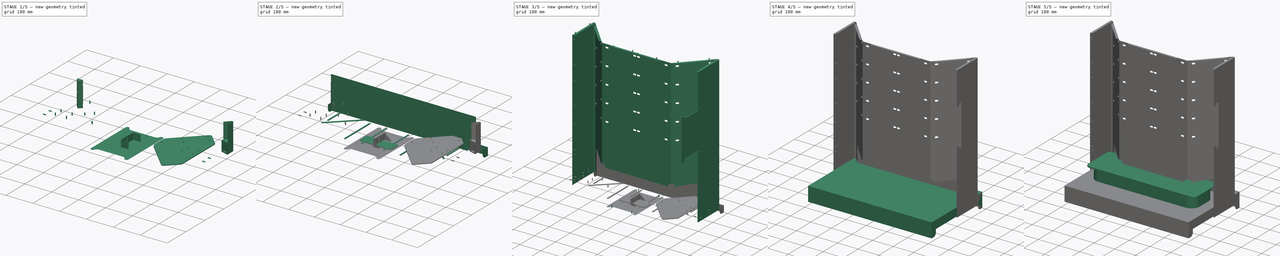
[diagram: build sequence overview — one tinted view per stage of 5, left to right]
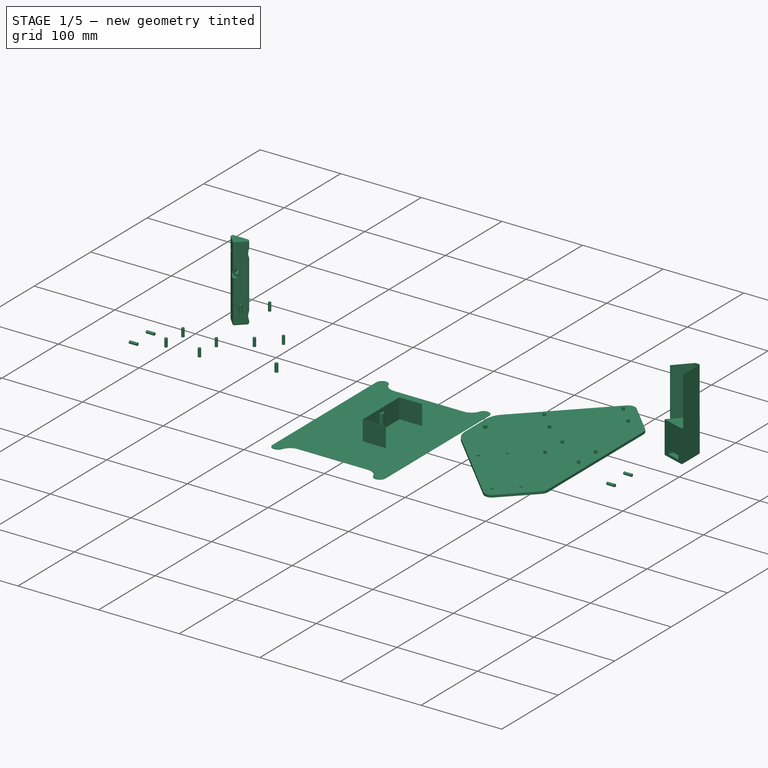
[diagram: stage 1 of 5 — iso view after this stage's code; geometry added in this stage tinted green]
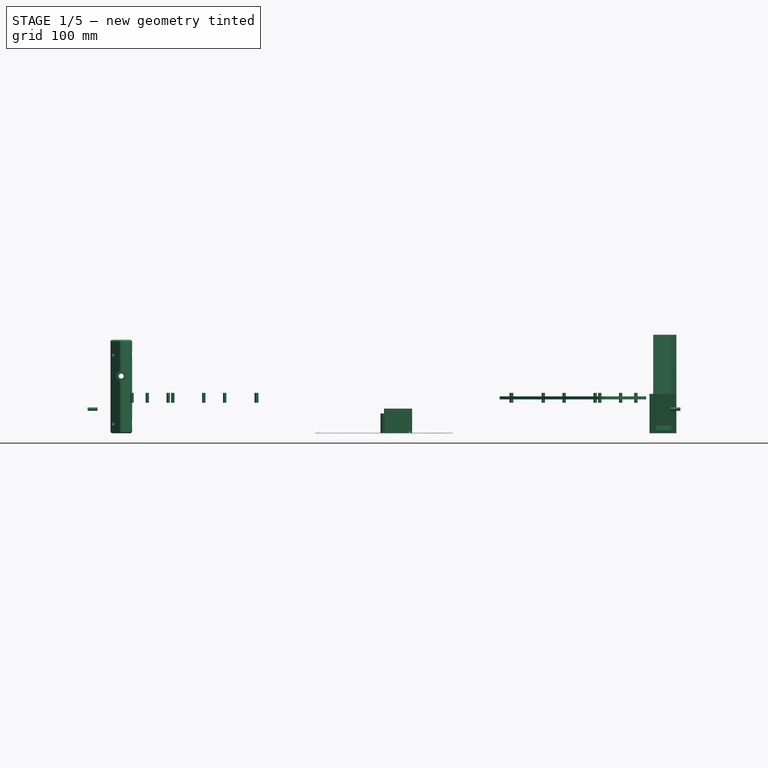
[diagram: stage 1 of 5 — front view after this stage's code; geometry added in this stage tinted green]
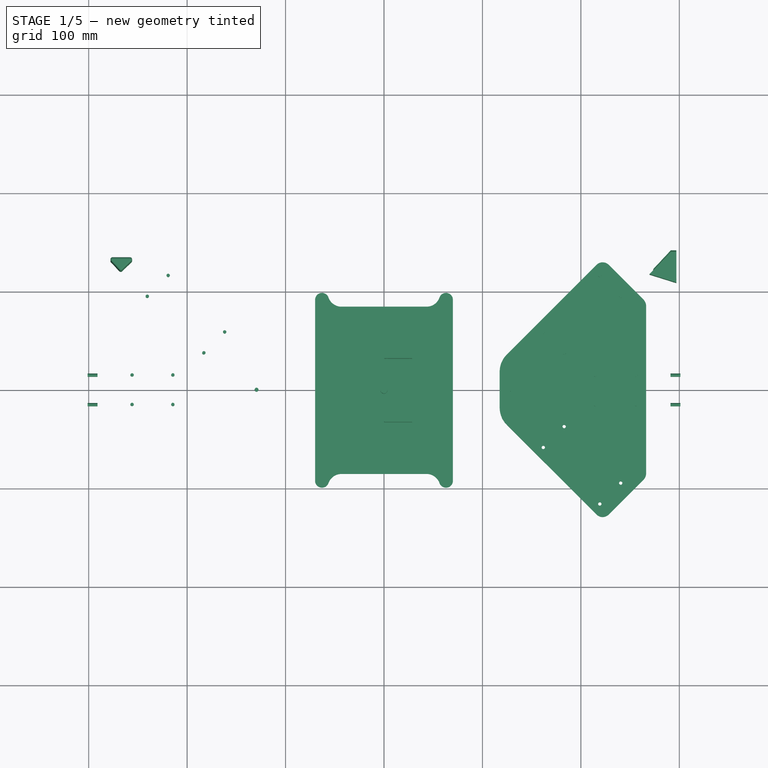
[diagram: stage 1 of 5 — top view after this stage's code; geometry added in this stage tinted green]
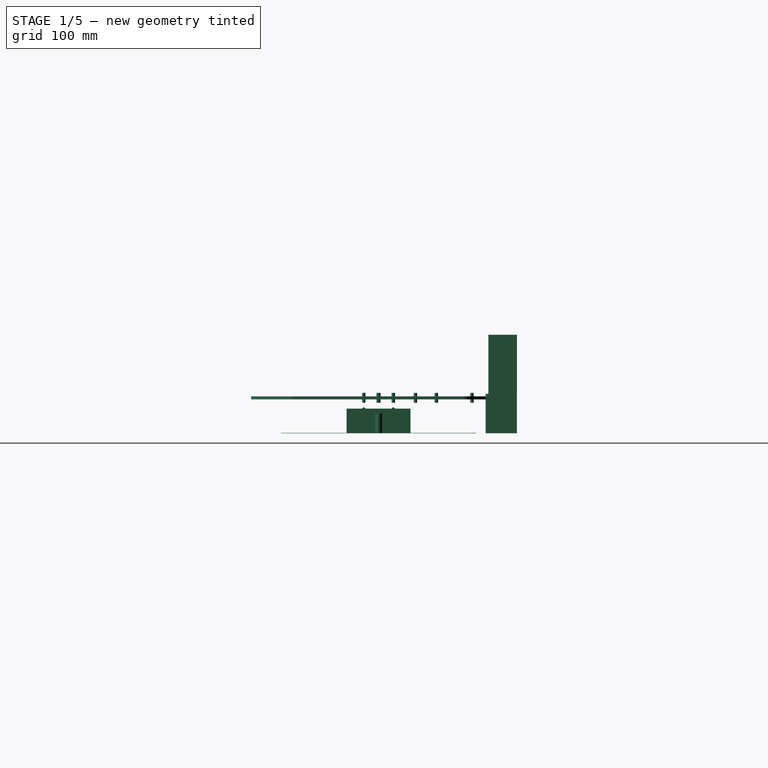
[diagram: stage 1 of 5 — right view after this stage's code; geometry added in this stage tinted green]
FCSTD DOCUMENT  (FreeCAD 0.22R34651 (Git))
Label: composit_stand6
License: All rights reserved
LicenseURL: http://en.wikipedia.org/wiki/All_rights_reserved
objects: Part::FeaturePython×146, Sketcher::SketchObject×59, PartDesign::SubShapeBinder×44, Part::Compound×35, PartDesign::Body×32, PartDesign::Boolean×26, PartDesign::FeaturePython×19, PartDesign::Pad×18, PartDesign::Pocket×15, Part::Mirroring×13, PartDesign::Mirrored×10, Part::MultiFuse×8, Part::Extrusion×7, App::Part×5, Part::Cylinder×5, App::Link×3, App::DocumentObjectGroup×3, App::AnnotationLabel×3, Spreadsheet::Sheet×2, Part::Box×2, +11 more types
note: 494 computed .brp shape members not serialized (recipe doc carries the construction recipe); baked Part::Feature solids carry a one-line shape summary decoded from their .brp
EXTERNAL_REF file=module.FCStd obj=Spreadsheet
EXTERNAL_REF file=composit-properties.FCStd obj=Spreadsheet
EXTERNAL_REF file=module.FCStd obj=Sketch
EXTERNAL_REF file=dropper.FCStd obj=Part
EXTERNAL_REF file=composit_stand5.FCStd obj=Part
EXTERNAL_REF file=embedded_hand_34x80.FCStd obj=Cut
EXTERNAL_REF file=embedded_hand_34x80.FCStd obj=Body

FEATURE [PartDesign::SubShapeBinder] Binder006
  BindCopyOnChange = 0
  BindMode = 0
  ClaimChildren = true
  Context = -> Body006 [Body.Binder006.]
  Fuse = false
  MakeFace = true
  OffsetFill = false
  OffsetIntersection = false
  OffsetJoinType = 0
  OffsetOpenResult = false
  PartialLoad = false
  Relative = true
  Support = -> [BaseBend[Binder.Compound.Compound004.Sketch001.]]
  _Version = 2
FEATURE [Part::Part2DObjectPython] Circle  label="hole_3.4_mm"  # Draft 2D object (typed FeaturePython)
  Area = 0
  FirstAngle = 0
  LastAngle = 0
  MakeFace = false
  Radius = 1.7
FEATURE [Part::Extrusion] Extrude001  label="hole_3.4_mm_extrude"
  Base = -> Circle
  Dir = (0,0,1)
  DirMode = 2
  FaceMakerClass = Part::FaceMakerBullseye
  LengthFwd = 10
  LengthRev = 0
  Solid = true
  Symmetric = false
FEATURE [Sketcher::SketchObject] Sketch041  label="cap_outer1_sketch"
  FullyConstrained = true
  expr: .Constraints.length = <<lamp_fix_base_sketch>>.Constraints.ledge_x_length + <<top_base_sketch>>.Constraints.length_x + 3 mm
  expr: Constraints[4] = <<face_main_sketch>>.Constraints.width / 2
  sketch-geometry (3):
    g0: LineSegment StartX=-300.084 StartY=0.05 StartZ=0 EndX=-300.084 EndY=175.725 EndZ=0
    g1: LineSegment StartX=-300.084 StartY=175.725 StartZ=0 EndX=300.084 EndY=175.725 EndZ=0
    g2: LineSegment StartX=300.084 StartY=175.725 StartZ=0 EndX=300.084 EndY=0.05 EndZ=0
  constraints (9):
    c: Vertical(g0)
    c: Coincident(g0,g1)
    c: Coincident(g1,g2)
    c: Vertical(g2)
    c: DistanceX(g1) = 300.084
    c: Symmetric(g0,g1,g-2)
    c: Horizontal(g0,g2)
    c: DistanceY(g2) = 0.05
    c: DistanceY(g1) = 175.725  'length'
FEATURE [PartDesign::SubShapeBinder] Binder026
  BindCopyOnChange = 0
  BindMode = 0
  ClaimChildren = true
  Context = -> Part002 [Part004.Body017.Binder026.]
  Fuse = false
  MakeFace = true
  OffsetFill = false
  OffsetIntersection = false
  OffsetJoinType = 0
  OffsetOpenResult = false
  PartialLoad = false
  Relative = false
  Support = -> [Compound022]
  _Version = 2
FEATURE [Sketcher::SketchObject] Sketch042  label="cap_outer_cut"
  ExternalGeometry = -> [Sketch041]
  FullyConstrained = true
  sketch-geometry (4):
    g0: LineSegment StartX=300.084 StartY=175.725 StartZ=0 EndX=132.429 EndY=8.07107 EndZ=0
    g1: LineSegment StartX=129.501 StartY=0 StartZ=0 EndX=129.501 EndY=1 EndZ=0
    g2: ArcOfCircle CenterX=139.501 CenterY=1 CenterZ=0 NormalX=0 NormalY=0 NormalZ=1 AngleXU=0 Radius=10 StartAngle=2.35619 EndAngle=3.14159
    g3: LineSegment StartX=129.501 StartY=0 StartZ=0 EndX=300.084 EndY=0 EndZ=0
  constraints (11):
    c: Coincident(g0,g-4)
    c: PointOnObject(g1,g-1)
    c: Vertical(g1)
    c: Tangent(g2,g1) = 1.5708
    c: Tangent(g2,g0) = -1.5708
    c: Angle(g0) = -2.35619
    c: Radius(g2) = 10
    c: DistanceY(g1,g1) = 1
    c: Coincident(g3,g1)
    c: PointOnObject(g3,g-3)
    c: PointOnObject(g3,g-1)
FEATURE [PartDesign::SubShapeBinder] Binder028
  BindCopyOnChange = 0
  BindMode = 0
  ClaimChildren = true
  Context = -> Part [Part002.Part004.Body017.Binder028.]
  Fuse = false
  MakeFace = true
  OffsetFill = false
  OffsetIntersection = false
  OffsetJoinType = 0
  OffsetOpenResult = false
  PartialLoad = false
  Relative = true
  Support = -> [Sketch042]
  _Version = 2
FEATURE [Sketcher::SketchObject] Sketch043
  AttachmentOffset = pos=(0,0,40) rot=(0,0,1;0rad)
  ExternalGeometry = -> [Binder026,Binder028]
  FullyConstrained = true
  MapMode = 5
  Placement = pos=(0,0,40) rot=(0,0,1;0rad)
  Support = -> [XY_Plane024]
  expr: .AttachmentOffset.Base.z = BaseBend004.length
  expr: Constraints[8] = Offset2D.Value * 2
  sketch-geometry (5):
    g0: LineSegment StartX=300.084 StartY=175.255 StartZ=0 EndX=300.084 EndY=175.725 EndZ=0
    g1: LineSegment StartX=300.084 StartY=175.725 StartZ=0 EndX=299.613 EndY=175.725 EndZ=0
    g2: LineSegment StartX=299.613 StartY=175.725 StartZ=0 EndX=299.613 EndY=175.325 EndZ=0
    g3: LineSegment StartX=299.613 StartY=175.325 StartZ=0 EndX=299.684 EndY=175.255 EndZ=0
    g4: LineSegment StartX=299.684 StartY=175.255 StartZ=0 EndX=300.084 EndY=175.255 EndZ=0
  constraints (14):
    c: Coincident(g0,g-4)
    c: Coincident(g0,g1)
    c: Coincident(g1,g2)
    c: Coincident(g2,g3)
    c: Coincident(g3,g4)
    c: Coincident(g4,g0)
    c: Equal(g2,g4)
    c: Perpendicular(g-5,g3)
    c: Distance(g3) = 0.1
    c: Perpendicular(g-4,g0)
    c: PointOnObject(g1,g-4)
    c: Perpendicular(g0,g4)
    c: Perpendicular(g1,g2)
    c: Distance(g2) = 0.4
FEATURE [PartDesign::SubShapeBinder] Binder027
  BindCopyOnChange = 0
  BindMode = 0
  ClaimChildren = true
  Context = -> Part [Part002.Part004.Body017.Binder027.]
  Fuse = false
  MakeFace = false
  OffsetFill = true
  OffsetIntersection = false
  OffsetJoinType = 0
  OffsetOpenResult = false
  PartialLoad = false
  Placement = pos=(0,0,40) rot=(0,0,1;0rad)
  Relative = false
  Support = -> [Offset2D]
  _Version = 2
  expr: .Placement.Base.z = BaseBend004.length
FEATURE [Part::Offset2D] Offset2D
  Fill = false
  Intersection = false
  Join = 0
  Mode = 1
  SelfIntersection = false
  Source = -> Sketch042
  Value = 0.05
FEATURE [Spreadsheet::Sheet] Spreadsheet001  label="cap_Properties"
  cells = B2(height)==40 mm
FEATURE [Sketcher::SketchObject] Sketch044
  FullyConstrained = false
  expr: Constraints[10] = <<cap_Properties>>.height + 1 mm
  expr: Constraints[11] = <<face_main_sketch>>.Constraints.width / 2 + 1 mm
  sketch-geometry (6):
    g0: LineSegment StartX=301.084 StartY=21.4999 StartZ=0 EndX=301.084 EndY=24.4999 EndZ=0
    g1: LineSegment StartX=301.084 StartY=24.4999 StartZ=0 EndX=293.084 EndY=24.4999 EndZ=0
    g2: LineSegment StartX=217.508 StartY=41 StartZ=0 EndX=214.508 EndY=41 EndZ=0
    g3: LineSegment StartX=214.508 StartY=41 StartZ=0 EndX=214.508 EndY=33 EndZ=0
    g4: LineSegment StartX=258.94 StartY=41 StartZ=0 EndX=255.94 EndY=41 EndZ=0
    g5: LineSegment StartX=255.94 StartY=41 StartZ=0 EndX=255.94 EndY=33 EndZ=0
  constraints (18):
    c: Vertical(g0)
    c: Coincident(g0,g1)
    c: Horizontal(g1)
    c: Horizontal(g2)
    c: Coincident(g2,g3)
    c: Vertical(g3)
    c: Horizontal(g4)
    c: Coincident(g4,g5)
    c: Vertical(g5)
    c: Horizontal(g4,g2)
    c: DistanceY(g4) = 41
    c: DistanceX(g0) = 301.084
    c: Equal(g0,g2)
    c: Equal(g2,g4)
    c: Equal(g1,g3)
    c: Equal(g3,g5)
    c: DistanceX(g4,g4) = 3
    c: DistanceY(g5,g5) = 8
FEATURE [Part::FeaturePython] Placment008  # WARN: FeaturePython — macro-defined, semantics opaque (R4)
  AttacherType = Attacher::AttachEngine3D
  ExposePlacement = true
  MapMode = 51
  MarkerShape = 1
  MarkerSize = 2
  NumElements = 1
  Placement = pos=(301.084,24.4999,0) rot=(0,-1,0;1.5708rad)
  Support = -> [Sketch044]
  Type = lattice2AttachablePlacement.AttachablePlacement
  isLattice = 1
FEATURE [Part::FeaturePython] PlacementSubsequence001  # WARN: FeaturePython — macro-defined, semantics opaque (R4)
  Base = -> Placment008
  CycleMode = 0
  ExposePlacement = false
  MarkerShape = 1
  MarkerSize = 0
  NumElements = 3
  Placement = pos=(0,0,0) rot=(1,0,0;1.5708rad)
  Type = lattice2AttachablePlacement.AttachedPlacementSubsequence
  isLattice = 1
FEATURE [Sketcher::SketchObject] Sketch045
  ExternalGeometry = -> [Sketch042]
  FullyConstrained = false
  sketch-geometry (4):
    g0: LineSegment StartX=164.073 StartY=56.4285 StartZ=0 EndX=172.43 EndY=48.0718 EndZ=0
    g1: LineSegment StartX=172.43 StartY=48.0718 StartZ=0 EndX=194.091 EndY=69.7322 EndZ=0
    g2: LineSegment StartX=221.513 StartY=113.868 StartZ=0 EndX=229.869 EndY=105.511 EndZ=0
    g3: LineSegment StartX=229.869 StartY=105.511 StartZ=0 EndX=251.53 EndY=127.171 EndZ=0
  constraints (10):
    c: PointOnObject(g0,g-3)
    c: Coincident(g0,g1)
    c: PointOnObject(g1,g-3)
    c: PointOnObject(g2,g-3)
    c: Coincident(g2,g3)
    c: PointOnObject(g3,g-3)
    c: Perpendicular(g1,g0)
    c: Perpendicular(g3,g2)
    c: Equal(g0,g2)
    c: Equal(g1,g3)
FEATURE [App::DocumentObjectGroup] Group001  label="sketches"
  Group = -> [Sketch,Sketch011,Sketch001,Sketch027,Sketch025,Sketch021,Sketch028,Sketch029,Sketch012,Sketch030,Sketch041,Sketch044,Sketch045]
FEATURE [Part::FeaturePython] Placment009  # WARN: FeaturePython — macro-defined, semantics opaque (R4)
  AttacherType = Attacher::AttachEngine3D
  AttachmentOffset = pos=(0,0,0) rot=(0,1,0;3.14159rad)
  ExposePlacement = true
  MapMode = 49
  MarkerShape = 1
  MarkerSize = 10
  NumElements = 1
  Placement = pos=(172.43,48.0718,0) rot=(0.382683,0.92388,0;3.14159rad)
  Support = -> [Sketch045]
  Type = lattice2AttachablePlacement.AttachablePlacement
  isLattice = 1
FEATURE [Part::FeaturePython] PlacementSubsequence002  # WARN: FeaturePython — macro-defined, semantics opaque (R4)
  Base = -> Placment009
  CycleMode = 0
  ExposePlacement = false
  MarkerShape = 1
  MarkerSize = 0
  NumElements = 2
  Placement = pos=(0,0,41) rot=(0,0,1;0rad)
  Type = lattice2AttachablePlacement.AttachedPlacementSubsequence
  isLattice = 1
FEATURE [Part::FeaturePython] Join014  # WARN: FeaturePython — macro-defined, semantics opaque (R4)
  ExposePlacement = false
  Interleave = false
  Links = -> [PlacementSubsequence001,PlacementSubsequence002]
  MarkerShape = 1
  MarkerSize = 0
  NumElements = 5
  Type = lattice2JoinArrays.JoinArrays
  isLattice = 1
FEATURE [Part::FeaturePython] Mirror016  label="Mirror016 of Join014"  # WARN: FeaturePython — macro-defined, semantics opaque (R4)
  ExposePlacement = false
  FlipX = true
  FlipY = false
  FlipZ = false
  MarkerShape = 1
  MarkerSize = 0
  NumElements = 5
  Object = -> Join014
  ObjectTraversal = 0
  Type = lattice2Mirror.LatticeMirror
  isLattice = 1
FEATURE [Part::FeaturePython] Join015  # WARN: FeaturePython — macro-defined, semantics opaque (R4)
  ExposePlacement = false
  Interleave = false
  Links = -> [Mirror016,Join014]
  MarkerShape = 1
  MarkerSize = 0
  NumElements = 10
  Type = lattice2JoinArrays.JoinArrays
  isLattice = 1
FEATURE [Part::FeaturePython] Populate033  label="Populate Join015 with Join006"  # WARN: FeaturePython — macro-defined, semantics opaque (R4)
  Copying = 0
  ExposePlacement = false
  MarkerShape = 1
  MarkerSize = 0
  NumElements = 20
  Object = -> Join006
  OutputCompounding = 0
  PlacementsTo = -> Join015
  Referencing = 0
  Type = lattice2PopulateCopies.LatticePopulateCopies
  isLattice = 1
FEATURE [Part::FeaturePython] Placment010  # WARN: FeaturePython — macro-defined, semantics opaque (R4)
  AttacherType = Attacher::AttachEngine3D
  AttachmentOffset = pos=(0,0,41) rot=(0,0,1;0rad)
  ExposePlacement = true
  MapMode = 1
  MarkerShape = 1
  MarkerSize = 2
  NumElements = 1
  Placement = pos=(129.501,0,41) rot=(1,0,0;3.14159rad)
  Support = -> [Sketch042]
  Type = lattice2AttachablePlacement.AttachablePlacement
  isLattice = 1
FEATURE [Part::FeaturePython] Populate035  label="Populate 2_elem_polar_array with Placment010"  # WARN: FeaturePython — macro-defined, semantics opaque (R4)
  Copying = 0
  ExposePlacement = false
  MarkerShape = 1
  MarkerSize = 0
  NumElements = 2
  Object = -> Placment010
  OutputCompounding = 0
  PlacementsTo = -> PolarArray
  Referencing = 1
  Type = lattice2PopulateCopies.LatticePopulateCopies
  isLattice = 1
FEATURE [Part::FeaturePython] Join016  # WARN: FeaturePython — macro-defined, semantics opaque (R4)
  ExposePlacement = false
  Interleave = false
  Links = -> [Populate033]
  MarkerShape = 1
  MarkerSize = 0
  NumElements = 20
  Type = lattice2JoinArrays.JoinArrays
  isLattice = 1
FEATURE [Part::FeaturePython] Populate034  label="Populate Populate Join013 with Join006 with hole_3.4_mm_extrude"  # WARN: FeaturePython — macro-defined, semantics opaque (R4)
  Copying = 0
  ExposePlacement = false
  MarkerShape = 1
  MarkerSize = 0
  NumElements = 0
  Object = -> Extrude001
  OutputCompounding = 1
  PlacementsTo = -> Join016
  Referencing = 0
  Type = lattice2PopulateCopies.LatticePopulateCopies
  isLattice = 0
FEATURE [Sketcher::SketchObject] Sketch046
  ExternalGeometry = -> [Sketch041]
  FullyConstrained = true
  sketch-geometry (2):
    g0: LineSegment StartX=300.084 StartY=0.05 StartZ=0 EndX=300.084 EndY=175.725 EndZ=0
    g1: LineSegment StartX=300.084 StartY=175.725 StartZ=0 EndX=0 EndY=175.725 EndZ=0
  constraints (5):
    c: Coincident(g-3,g0)
    c: Coincident(g0,g-3)
    c: Coincident(g0,g1)
    c: PointOnObject(g1,g-2)
    c: Horizontal(g1)
FEATURE [Part::Mirroring] Part__Mirroring006  label="Sketch046 (Mirror #7)"
  Base = (0,0,0)
  Normal = (1,0,0)
  Source = -> Sketch046
FEATURE [Part::Compound] Compound022
  Links = -> [Part__Mirroring006,Sketch046]
FEATURE [PartDesign::FeaturePython] BaseBend004  # WARN: FeaturePython — macro-defined, semantics opaque (R4)
  BendSide = 0
  BendSketch = -> Binder026
  MidPlane = false
  Reverse = false
  length = 40
  radius = 0.1
  thickness = 0.3
  expr: length = <<cap_Properties>>.height
FEATURE [PartDesign::Body] Body015  label="electric_shield_jamb"
  Group = -> [Binder025,Pad009,Boolean013]
  Origin = -> Origin017
  Tip = -> Boolean013
FEATURE [Sketcher::SketchObject] Sketch055
  FullyConstrained = true
  MapMode = 5
  Placement = pos=(0,0,0) rot=(1,0,0;1.5708rad)
  Support = -> [XZ_Plane032]
  sketch-geometry (7):
    g0: LineSegment StartX=0 StartY=0 StartZ=0 EndX=7 EndY=0 EndZ=0
    g1: LineSegment StartX=7 StartY=0 StartZ=0 EndX=11.25 EndY=14 EndZ=0
    g2: LineSegment StartX=11.25 StartY=14 StartZ=0 EndX=0 EndY=14 EndZ=0
    g3: LineSegment StartX=0 StartY=14 StartZ=0 EndX=0 EndY=0 EndZ=0
    g4: LineSegment StartX=11.25 StartY=14 StartZ=0 EndX=11.25 EndY=39 EndZ=0
    g5: LineSegment StartX=11.25 StartY=39 StartZ=0 EndX=0 EndY=39 EndZ=0
    g6: LineSegment StartX=0 StartY=39 StartZ=0 EndX=0 EndY=14 EndZ=0
  constraints (19):
    c: Horizontal(g0)
    c: Coincident(g0,g1)
    c: Coincident(g1,g2)
    c: Horizontal(g2)
    c: Coincident(g2,g3)
    c: Coincident(g3,g0)
    c: Vertical(g3)
    c: Coincident(g0,g-1)
    c: DistanceX(g2,g2) = 11.25
    c: DistanceX(g0,g0) = 7
    c: DistanceY(g3,g3) = 14
    c: Coincident(g1,g4)
    c: Vertical(g4)
    c: Coincident(g4,g5)
    c: Horizontal(g5)
    c: Coincident(g5,g6)
    c: Coincident(g6,g3)
    c: Vertical(g6)
    c: DistanceY(g6,g6) = 25
FEATURE [PartDesign::Revolution] Revolution
  Angle = 360
  Axis = (0,2e-16,1)
  Base = (0,0,0)
  Placement = pos=(0,0,0) rot=(1,0,0;1.5708rad)
  Profile = -> Sketch055
  ReferenceAxis = -> Sketch055 [V_Axis]
  Reversed = true
FEATURE [PartDesign::Body] Body025
  Group = -> [Sketch055,Revolution]
  Origin = -> Origin032
  Placement = pos=(0,0,7) rot=(0,0,1;0rad)
  Tip = -> Revolution
FEATURE [Part::FeaturePython] Populate037  label="Populate Populate Placment011 with LinearArray007 with Cylinder"  # WARN: FeaturePython — macro-defined, semantics opaque (R4)
  Copying = 0
  ExposePlacement = false
  MarkerShape = 1
  MarkerSize = 0
  NumElements = 0
  Object = -> Body025
  OutputCompounding = 1
  PlacementsTo = -> Populate036
  Referencing = 0
  Type = lattice2PopulateCopies.LatticePopulateCopies
  isLattice = 0
FEATURE [Sketcher::SketchObject] Sketch056
  ExternalGeometry = -> [Sketch001,Sketch049]
  FullyConstrained = true
  sketch-geometry (5):
    g0: LineSegment StartX=267.5 StartY=119.428 StartZ=0 EndX=277.917 EndY=130.558 EndZ=0
    g1: LineSegment StartX=277.917 StartY=130.558 StartZ=0 EndX=277.917 EndY=133.558 EndZ=0
    g2: LineSegment StartX=277.917 StartY=133.558 StartZ=0 EndX=255.917 EndY=133.558 EndZ=0
    g3: LineSegment StartX=255.917 StartY=133.558 StartZ=0 EndX=255.917 EndY=130.558 EndZ=0
    g4: LineSegment StartX=255.917 StartY=130.558 StartZ=0 EndX=267.5 EndY=119.428 EndZ=0
  constraints (14):
    c: Coincident(g-4,g0)
    c: PointOnObject(g0,g-3)
    c: Coincident(g0,g1)
    c: Vertical(g1)
    c: Coincident(g1,g2)
    c: Horizontal(g2)
    c: Coincident(g2,g3)
    c: Vertical(g3)
    c: Coincident(g3,g4)
    c: Coincident(g4,g0)
    c: DistanceY(g1,g1) = 3
    c: DistanceX(g2,g2) = 22
    c: Horizontal(g3,g0)
    c: DistanceY(g1,g-3) = 10
FEATURE [PartDesign::SubShapeBinder] Binder039
  BindCopyOnChange = 0
  BindMode = 0
  ClaimChildren = true
  Context = -> Body018 [Binder039.]
  Fuse = false
  MakeFace = true
  OffsetFill = false
  OffsetIntersection = false
  OffsetJoinType = 0
  OffsetOpenResult = false
  PartialLoad = false
  Relative = false
  Support = -> [Sketch056]
  _Version = 2
FEATURE [PartDesign::Pad] Pad011
  Direction = (0,0,1)
  Length = 95
  Length2 = 10
  Profile = -> Binder039
  Type = 0
FEATURE [PartDesign::Fillet] Fillet
  Base = -> Pad011
  BaseFeature = -> Pad011
  Radius = 2
  SupportTransform = false
  UseAllEdges = true
FEATURE [Part::FeaturePython] Placment014  label="magnet_placement"  # WARN: FeaturePython — macro-defined, semantics opaque (R4)
  AttacherType = Attacher::AttachEngine3D
  AttachmentOffset = pos=(0,58,0) rot=(0,-1,0;1.5708rad)
  ExposePlacement = true
  MapMode = 45
  MarkerShape = 1
  MarkerSize = 10
  NumElements = 1
  Placement = pos=(266.917,133.558,58) rot=(1,0,0;1.5708rad)
  Support = -> [Sketch056]
  Type = lattice2AttachablePlacement.AttachablePlacement
  isLattice = 1
FEATURE [Sketcher::SketchObject] Sketch057
  FullyConstrained = true
  MapMode = 5
  Support = -> [XY_Plane033]
  sketch-geometry (1):
    g0: Circle CenterX=0 CenterY=0 CenterZ=0 NormalX=0 NormalY=0 NormalZ=1 AngleXU=0 Radius=10
  constraints (2):
    c: Coincident(g0,g-1)
    c: Diameter(g0) = 20
FEATURE [PartDesign::Pad] Pad013  label="magnet_pad"
  Direction = (0,0,1)
  Length = 3
  Length2 = 10
  Profile = -> Sketch057
  ReferenceAxis = -> Sketch057 [N_Axis]
  Type = 0
FEATURE [PartDesign::Body] Body026  label="magnet"
  Group = -> [Sketch057,Pad013]
  Origin = -> Origin033
  Tip = -> Pad013
FEATURE [Part::Cylinder] Cylinder
  Angle = 360
  AttacherType = Attacher::AttachEngine3D
  FirstAngle = 0
  Height = 10
  Radius = 2.5
  SecondAngle = 0
FEATURE [Part::Cylinder] Cylinder002
  Angle = 360
  AttacherType = Attacher::AttachEngine3D
  FirstAngle = 0
  Height = 30
  Placement = pos=(0,0,8) rot=(0,0,1;0rad)
  Radius = 5
  SecondAngle = 0
  expr: .Placement.Base.z = <<magnet_pad>>.Length + 5 mm
FEATURE [Part::MultiFuse] Fusion005  label="front_shield_jamb_magnet_cut"
  Shapes = -> [Body026,Cylinder,Cylinder002]
FEATURE [Part::FeaturePython] Populate045  label="Populate magnet_placement with front_shield_jamb_magnet_cut"  # WARN: FeaturePython — macro-defined, semantics opaque (R4)
  Copying = 0
  ExposePlacement = false
  MarkerShape = 1
  MarkerSize = 0
  NumElements = 0
  Object = -> Fusion005
  OutputCompounding = 2
  PlacementsTo = -> Placment014
  Referencing = 0
  Type = lattice2PopulateCopies.LatticePopulateCopies
  isLattice = 0
FEATURE [PartDesign::Body] Body027  label="front_shield"
  Group = -> [Binder040,BaseBend010,Binder041,Pocket013,Mirrored010,Boolean022]
  Origin = -> Origin034
  Tip = -> Boolean022
FEATURE [App::Link] Link002  label="Body028"
  LinkPlacement = pos=(0,136.7,0) rot=(-0.992433,-0.086827,-0.086827;1.57839rad)
  LinkedObject = -> <external embedded_hand_34x80.FCStd>#Body
  Placement = pos=(0,136.7,0) rot=(-0.992433,-0.086827,-0.086827;1.57839rad)
FEATURE [Part::Cylinder] Cylinder004  label="hole_4mm_extrude"
  Angle = 360
  AttacherType = Attacher::AttachEngine3D
  FirstAngle = 0
  Height = 10
  Radius = 2
  SecondAngle = 0
FEATURE [Part::FeaturePython] Populate038  label="Populate Populate Placment011 with LinearArray007 with hole_3.4_mm_extrude"  # WARN: FeaturePython — macro-defined, semantics opaque (R4)
  Copying = 0
  ExposePlacement = false
  MarkerShape = 1
  MarkerSize = 0
  NumElements = 0
  Object = -> Cylinder004
  OutputCompounding = 1
  PlacementsTo = -> Populate036
  Referencing = 0
  Type = lattice2PopulateCopies.LatticePopulateCopies
  isLattice = 0
FEATURE [PartDesign::Body] Body028  label="lamp_holder"
  Group = -> [Binder042,Sketch059,Binder043,Binder044,Pad014,Boolean023]
  Origin = -> Origin035
  Tip = -> Boolean023
FEATURE [Part::FeaturePython] Populate052  label="Populate LinearArray006 with corner x2"  # WARN: FeaturePython — macro-defined, semantics opaque (R4)
  Copying = 0
  ExposePlacement = false
  MarkerShape = 1
  MarkerSize = 0
  NumElements = 8
  Object = -> Join011
  OutputCompounding = 0
  Placement = pos=(0,-18.3333,0) rot=(0,0,1;0rad)
  PlacementsTo = -> LinearArray006
  Referencing = 1
  Type = lattice2PopulateCopies.LatticePopulateCopies
  isLattice = 1
  expr: .Placement.Base.y = -<<LinearArray006>>.Step / 2
FEATURE [Sketcher::SketchObject] Sketch060
  FullyConstrained = false
  MapMode = 5
  Support = -> [XY_Plane036]
  sketch-geometry (3):
    g0: LineSegment StartX=28.5181 StartY=-32.4357 StartZ=0 EndX=0 EndY=-32.4357 EndZ=0
    g1: LineSegment StartX=0 StartY=-32.4357 StartZ=0 EndX=0 EndY=32.4357 EndZ=0
    g2: LineSegment StartX=0 StartY=32.4357 StartZ=0 EndX=28.5181 EndY=32.4357 EndZ=0
  constraints (7):
    c: PointOnObject(g0,g-2)
    c: Horizontal(g0)
    c: Coincident(g1,g0)
    c: PointOnObject(g1,g-2)
    c: Coincident(g2,g1)
    c: Horizontal(g2)
    c: Symmetric(g0,g2,g-1)
FEATURE [PartDesign::FeaturePython] BaseBend011  # WARN: FeaturePython — macro-defined, semantics opaque (R4)
  BendSide = 0
  BendSketch = -> Sketch060
  MidPlane = false
  Reverse = false
  length = 25
  radius = 0.1
  thickness = 0.3
FEATURE [PartDesign::FeaturePython] Bend005  # WARN: FeaturePython — macro-defined, semantics opaque (R4)
  AutoMiter = true
  BaseFeature = -> BaseBend011
  BendType = 1
  LengthList = [22]
  LengthSpec = 1
  ReliefFactor = 0.7
  UseReliefFactor = false
  angle = 90
  baseObject = -> BaseBend011 [Edge32,Edge3]
  bendAList = [90]
  extend1 = 0
  extend2 = 0
  gap1 = 3
  gap2 = 3
  invert = false
  kfactor = 0.5
  length = 22
  maxExtendDist = 5
  minGap = 0.1
  minReliefGap = 1
  miterangle1 = 0
  miterangle2 = 0
  offset = 0
  radius = 0.1
  reliefType = 0
  reliefd = 1
  reliefw = 0.8
  sketchflip = false
  sketchinvert = false
  unfold = false
  expr: radius = BaseBend011.radius
FEATURE [PartDesign::Body] Body029  label="face_to_bottom"
  Group = -> [Sketch060,BaseBend011,Bend005,Sketch061,Pocket014,Boolean024]
  Origin = -> Origin036
  Tip = -> Boolean024
FEATURE [Sketcher::SketchObject] Sketch062
  FullyConstrained = true
  MapMode = 5
  Placement = pos=(0,0,0) rot=(1,0,0;1.5708rad)
  Support = -> [XZ_Plane037]
  sketch-geometry (8):
    g0: LineSegment StartX=0 StartY=9 StartZ=0 EndX=0 EndY=0 EndZ=0
    g1: LineSegment StartX=0 StartY=0 StartZ=0 EndX=6 EndY=0 EndZ=0
    g2: LineSegment StartX=6 StartY=0 StartZ=0 EndX=6 EndY=2 EndZ=0
    g3: LineSegment StartX=6 StartY=2 StartZ=0 EndX=3.6 EndY=2 EndZ=0
    g4: LineSegment StartX=2.5 StartY=4 StartZ=0 EndX=2.5 EndY=9 EndZ=0
    g5: LineSegment StartX=2.5 StartY=9 StartZ=0 EndX=0 EndY=9 EndZ=0
    g6: LineSegment StartX=3.6 StartY=2 StartZ=0 EndX=3.6 EndY=4 EndZ=0
    g7: LineSegment StartX=3.6 StartY=4 StartZ=0 EndX=2.5 EndY=4 EndZ=0
  constraints (23):
    c: PointOnObject(g0,g-2)
    c: Coincident(g0,g-1)
    c: Coincident(g0,g1)
    c: PointOnObject(g1,g-1)
    c: Coincident(g1,g2)
    c: Vertical(g2)
    c: Coincident(g2,g3)
    c: Horizontal(g3)
    c: Vertical(g4)
    c: Coincident(g4,g5)
    c: Coincident(g5,g0)
    c: Horizontal(g5)
    c: DistanceX(g1,g1) = 6
    c: DistanceY(g2,g2) = 2
    c: Vertical(g6)
    c: Coincident(g7,g6)
    c: Horizontal(g7)
    c: Coincident(g3,g6)
    c: Coincident(g4,g7)
    c: DistanceX(g3) = 3.6
    c: DistanceY(g6) = 4
    c: DistanceY(g0,g0) = 9
    c: DistanceX(g4) = 2.5
FEATURE [PartDesign::Revolution] Revolution001
  Angle = 360
  Axis = (0,2e-16,1)
  Base = (0,0,0)
  Placement = pos=(0,0,0) rot=(1,0,0;1.5708rad)
  Profile = -> Sketch062
  ReferenceAxis = -> Sketch062 [V_Axis]
  Reversed = true
FEATURE [PartDesign::Body] Body030  label="jamb_screw_cut"
  Group = -> [Sketch062,Revolution001]
  Origin = -> Origin037
  Tip = -> Revolution001
FEATURE [Part::FeaturePython] Populate048  label="Populate Populate magnet_placement with LinearArray010 with Cylinder003"  # WARN: FeaturePython — macro-defined, semantics opaque (R4)
  Copying = 0
  ExposePlacement = false
  MarkerShape = 1
  MarkerSize = 0
  NumElements = 0
  Object = -> Body030
  OutputCompounding = 1
  PlacementsTo = -> Populate046
  Referencing = 0
  Type = lattice2PopulateCopies.LatticePopulateCopies
  isLattice = 0
FEATURE [Part::MultiFuse] Fusion004  label="jamb_cut1"
  Shapes = -> [Populate037,Populate038,Populate045,Populate048]
FEATURE [PartDesign::Boolean] Boolean016
  BaseFeature = -> Fillet
  Group = -> [Fusion004]
  Type = 1
FEATURE [PartDesign::Body] Body018  label="front_shield_jamb"
  Group = -> [Binder030,Pad011,Local_CS001,Binder039,Fillet,Boolean016]
  Origin = -> Origin025
  Tip = -> Boolean016
FEATURE [Part::Mirroring] Part__Mirroring012  label="front_shield_jamb (Mirror #13)"
  Base = (0,0,0)
  Normal = (1,0,0)
  Source = -> Body018
FEATURE [PartDesign::Body] Body007  label="face2_material_0.30ansi"
  BaseFeature = -> Boolean
  Group = -> [BaseFeature,Boolean001,Boolean017]
  Origin = -> Origin008
  Placement = pos=(0,0,0) rot=(0,0,1;3.14159rad)
  Tip = -> Boolean017
FEATURE [PartDesign::Pad] Pad015
  Direction = (0,0,1)
  Length = 0.3
  Length2 = 10
  Profile = -> Binder045
  Type = 0
FEATURE [PartDesign::Body] Body008  label="electric_shield"
  Group = -> [Binder045,Pad015,Boolean002]
  Origin = -> Origin009
  Placement = pos=(-297.084,40,390) rot=(0.57735,-0.57735,-0.57735;2.0944rad)
  Tip = -> Boolean002
  expr: Placement = <<electric_shield_placement>>.Placement
FEATURE [Sketcher::SketchObject] Sketch063  label="face_to_bottom2"
  ExternalGeometry = -> [Sketch049,Sketch001]
  FullyConstrained = false
  sketch-geometry (7):
    g0: LineSegment StartX=273.528 StartY=121.478 StartZ=0 EndX=291.385 EndY=140.558 EndZ=0
    g1: LineSegment StartX=291.385 StartY=140.558 StartZ=0 EndX=297.084 EndY=140.558 EndZ=0
    g2: LineSegment StartX=297.084 StartY=140.558 StartZ=0 EndX=297.084 EndY=111.577 EndZ=0
    g3: LineSegment StartX=297.084 StartY=111.577 StartZ=0 EndX=300.084 EndY=111.577 EndZ=0
    g4: LineSegment StartX=291.385 StartY=143.558 StartZ=0 EndX=291.385 EndY=140.558 EndZ=0
    g5: LineSegment StartX=291.385 StartY=140.558 StartZ=0 EndX=289.195 EndY=142.608 EndZ=0
    g6: LineSegment StartX=273.528 StartY=121.478 StartZ=0 EndX=275.718 EndY=119.428 EndZ=0
  constraints (21):
    c: Coincident(g0,g1)
    c: Horizontal(g1)
    c: Coincident(g1,g2)
    c: Coincident(g2,g3)
    c: PointOnObject(g3,g-4)
    c: Coincident(g4,g0)
    c: Coincident(g4,g5)
    c: PointOnObject(g5,g-5)
    c: Perpendicular(g5,g-5)
    c: Perpendicular(g0,g5)
    c: Perpendicular(g1,g4)
    c: Perpendicular(g3,g2)
    c: Perpendicular(g-4,g3)
    c: Coincident(g6,g0)
    c: Perpendicular(g0,g6)
    c: Distance(g6) = 3
    c: Horizontal(g6,g-3)
    c: Horizontal(g4,g-5)
    c: Equal(g4,g5)
    c: Equal(g5,g3)
    c: Distance(g3) = 3
FEATURE [PartDesign::SubShapeBinder] Binder046
  BindCopyOnChange = 0
  BindMode = 0
  ClaimChildren = false
  Context = -> Body031 [Binder046.]
  Fuse = false
  MakeFace = true
  OffsetFill = false
  OffsetIntersection = false
  OffsetJoinType = 0
  OffsetOpenResult = false
  PartialLoad = false
  Relative = true
  Support = -> [Sketch063]
  _Version = 2
FEATURE [PartDesign::FeaturePython] BaseBend012  # WARN: FeaturePython — macro-defined, semantics opaque (R4)
  BendSide = 0
  BendSketch = -> Binder046
  MidPlane = false
  Reverse = false
  length = 100
  radius = 0.1
  thickness = 0.3
FEATURE [PartDesign::FeaturePython] Bend006  # WARN: FeaturePython — macro-defined, semantics opaque (R4)
  AutoMiter = true
  BaseFeature = -> BaseBend012
  BendType = 1
  LengthList = [0.1]
  LengthSpec = 0
  ReliefFactor = 0.7
  UseReliefFactor = false
  angle = 90
  baseObject = -> BaseBend012 [Edge3,Edge32]
  bendAList = [90]
  extend1 = 0
  extend2 = 0
  gap1 = 0
  gap2 = 0
  invert = false
  kfactor = 0.5
  length = 0.1
  maxExtendDist = 5
  minGap = 0.1
  minReliefGap = 1
  miterangle1 = 0
  miterangle2 = 0
  offset = 0
  radius = 0.1
  reliefType = 0
  reliefd = 1
  reliefw = 0.8
  sketchflip = false
  sketchinvert = false
  unfold = false
  expr: radius = BaseBend012.radius
FEATURE [Sketcher::SketchObject] Sketch064
  ExternalGeometry = -> [Binder046]
  FullyConstrained = false
  MapMode = 5
  Support = -> [XY_Plane038]
  sketch-geometry (18):
    g0: LineSegment StartX=273.893 StartY=121.137 StartZ=0 EndX=289.7 EndY=138.026 EndZ=0
    g1: LineSegment StartX=296.584 StartY=137.558 StartZ=0 EndX=296.584 EndY=111.577 EndZ=0
    g2: LineSegment StartX=297.084 StartY=111.577 StartZ=0 EndX=296.584 EndY=111.577 EndZ=0
    g3: LineSegment StartX=273.893 StartY=121.137 StartZ=0 EndX=273.528 EndY=121.478 EndZ=0
    g4: LineSegment StartX=297.084 StartY=140.558 StartZ=0 EndX=296.584 EndY=140.558 EndZ=0
    g5: LineSegment StartX=296.584 StartY=140.558 StartZ=0 EndX=296.584 EndY=137.558 EndZ=0
    g6: LineSegment StartX=291.385 StartY=140.558 StartZ=0 EndX=291.75 EndY=140.216 EndZ=0
    g7: LineSegment StartX=291.75 StartY=140.216 StartZ=0 EndX=289.7 EndY=138.026 EndZ=0
    g8: ArcOfCircle CenterX=286.283 CenterY=134.375 CenterZ=0 NormalX=0 NormalY=0 NormalZ=1 AngleXU=0 Radius=5 StartAngle=1.6e-15 EndAngle=0.818478
    g9: ArcOfCircle CenterX=296.584 CenterY=132.558 CenterZ=0 NormalX=0 NormalY=0 NormalZ=1 AngleXU=0 Radius=5 StartAngle=1.5708 EndAngle=3.14159
    g10: ArcOfCircle CenterX=296.584 CenterY=116.577 CenterZ=0 NormalX=0 NormalY=0 NormalZ=1 AngleXU=0 Radius=5 StartAngle=3.14159 EndAngle=4.71239
    g11: LineSegment StartX=291.584 StartY=116.577 StartZ=0 EndX=291.584 EndY=132.558 EndZ=0
    g12: LineSegment StartX=291.283 StartY=130.977 StartZ=0 EndX=291.283 EndY=134.375 EndZ=0
    g13: LineSegment StartX=273.893 StartY=121.137 StartZ=0 EndX=275.718 EndY=119.428 EndZ=0
    g14: LineSegment StartX=275.718 StartY=119.428 StartZ=0 EndX=280.28 EndY=119.428 EndZ=0
    g15: ArcOfCircle CenterX=280.28 CenterY=122.474 CenterZ=0 NormalX=0 NormalY=0 NormalZ=1 AngleXU=0 Radius=3.04602 StartAngle=4.71239 EndAngle=5.53087
    g16: ArcOfCircle CenterX=288.237 CenterY=130.977 CenterZ=0 NormalX=0 NormalY=0 NormalZ=1 AngleXU=0 Radius=3.04602 StartAngle=5.53087 EndAngle=6.28319
    g17: LineSegment StartX=282.503 StartY=120.393 StartZ=0 EndX=290.461 EndY=128.895 EndZ=0
  constraints (46):
    c: Coincident(g2,g-3)
    c: Coincident(g2,g1)
    c: Coincident(g3,g0)
    c: Coincident(g3,g-4)
    c: Perpendicular(g2,g-3)
    c: Perpendicular(g1,g2)
    c: Perpendicular(g0,g3)
    c: Perpendicular(g-4,g3)
    c: Equal(g2,g3)
    c: Distance(g3) = 0.5
    c: Coincident(g-3,g4)
    c: Coincident(g4,g5)
    c: Coincident(g5,g1)
    c: Coincident(g-4,g6)
    c: Coincident(g6,g7)
    c: Coincident(g7,g0)
    c: Parallel(g7,g0)
    c: Perpendicular(g6,g7)
    c: Parallel(g1,g5)
    c: Perpendicular(g4,g5)
    c: Equal(g5,g7)
    c: Distance(g7) = 3
    c: PointOnObject(g8,g0)
    c: Coincident(g8,g0)
    c: PointOnObject(g9,g1)
    c: Coincident(g9,g1)
    c: PointOnObject(g10,g1)
    c: Coincident(g10,g1)
    c: Tangent(g11,g9) = 1.5708
    c: Tangent(g11,g10) = 1.5708
    c: Tangent(g12,g8) = -1.5708
    c: Parallel(g11,g1)
    c: Equal(g8,g9)
    c: Radius(g9) = 5
    c: Coincident(g13,g0)
    c: Vertical(g12)
    c: Coincident(g13,g14)
    c: Horizontal(g14)
    c: Parallel(g13,g3)
    c: Distance(g13,g3) = 3
    c: Parallel(g17,g0)
    c: Tangent(g17,g16) = -1.5708
    c: Tangent(g14,g15) = -1.5708
    c: Tangent(g12,g16) = -1.5708
    c: Equal(g16,g15)
    c: Tangent(g17,g15) = -1.5708
FEATURE [PartDesign::Body] Body031
  Group = -> [Binder046,BaseBend012,Bend006,Sketch064]
  Origin = -> Origin038
  Tip = -> Bend006
FEATURE [PartDesign::SubShapeBinder] Binder047
  BindCopyOnChange = 0
  BindMode = 0
  ClaimChildren = false
  Context = -> Body032 [Binder047.]
  Fuse = false
  MakeFace = true
  OffsetFill = false
  OffsetIntersection = false
  OffsetJoinType = 0
  OffsetOpenResult = false
  PartialLoad = false
  Relative = true
  Support = -> [Sketch001,Sketch049]
  _Version = 2
FEATURE [Sketcher::SketchObject] Sketch065
  ExternalGeometry = -> [Binder047]
  FullyConstrained = true
  MapMode = 5
  Support = -> [XY_Plane039]
  sketch-geometry (9):
    g0: LineSegment StartX=267.5 StartY=119.428 StartZ=0 EndX=269.69 EndY=117.378 EndZ=0
    g1: LineSegment StartX=269.69 StartY=117.378 StartZ=0 EndX=291.385 EndY=140.558 EndZ=0
    g2: LineSegment StartX=291.385 StartY=140.558 StartZ=0 EndX=297.084 EndY=140.558 EndZ=0
    g3: LineSegment StartX=297.084 StartY=140.558 StartZ=0 EndX=297.084 EndY=108.81 EndZ=0
    g4: LineSegment StartX=297.084 StartY=108.81 StartZ=0 EndX=300.084 EndY=108.81 EndZ=0
    g5: LineSegment StartX=290.084 StartY=143.558 StartZ=0 EndX=300.084 EndY=143.558 EndZ=0
    g6: LineSegment StartX=289.195 StartY=142.608 StartZ=0 EndX=291.385 EndY=140.558 EndZ=0
    g7: LineSegment StartX=291.385 StartY=140.558 StartZ=0 EndX=291.385 EndY=143.558 EndZ=0
    g8: LineSegment StartX=269.69 StartY=117.378 StartZ=0 EndX=297.084 EndY=108.81 EndZ=0
  constraints (25):
    c: Coincident(g-3,g0)
    c: Coincident(g0,g1)
    c: Coincident(g1,g2)
    c: Coincident(g2,g3)
    c: Coincident(g3,g4)
    c: PointOnObject(g4,g-5)
    c: Coincident(g5,g-4)
    c: Coincident(g5,g-5)
    c: Coincident(g6,g1)
    c: Coincident(g6,g7)
    c: PointOnObject(g7,g5)
    c: Perpendicular(g2,g7)
    c: Perpendicular(g5,g7)
    c: Perpendicular(g-4,g6)
    c: Perpendicular(g1,g6)
    c: Perpendicular(g1,g0)
    c: Perpendicular(g3,g4)
    c: Perpendicular(g-5,g4)
    c: PointOnObject(g6,g-4)
    c: Equal(g6,g7)
    c: Equal(g7,g4)
    c: Distance(g4) = 3
    c: Coincident(g8,g0)
    c: Equal(g1,g3)
    c: Coincident(g8,g3)
FEATURE [PartDesign::Pad] Pad016
  Direction = (0,0,1)
  Length = 40
  Length2 = 10
  Profile = -> Sketch065
  ReferenceAxis = -> Sketch065 [N_Axis]
  Type = 0
FEATURE [PartDesign::SubShapeBinder] Binder048
  BindCopyOnChange = 0
  BindMode = 0
  ClaimChildren = false
  Context = -> Body032 [Binder048.]
  Fuse = false
  MakeFace = true
  Offset = -4
  OffsetFill = false
  OffsetIntersection = false
  OffsetJoinType = 0
  OffsetOpenResult = false
  PartialLoad = false
  Placement = pos=(0,0,3) rot=(0,0,1;0rad)
  Relative = true
  Support = -> [Pad016[Sketch065.]]
  _Version = 2
FEATURE [PartDesign::Pocket] Pocket
  BaseFeature = -> Pad016
  Direction = (0,0,-1)
  Length = 5
  Length2 = 5
  Profile = -> Binder048
  Reversed = true
  Type = 0
FEATURE [Sketcher::SketchObject] Sketch066
  AttachmentOffset = pos=(0,0,3) rot=(0,0,1;0rad)
  ExternalGeometry = -> [Binder048]
  FullyConstrained = false
  MapMode = 5
  Placement = pos=(0,0,3) rot=(0,0,1;0rad)
  Support = -> [XY_Plane039]
  sketch-geometry (4):
    g0: LineSegment StartX=272.058 StartY=103.614 StartZ=0 EndX=288.179 EndY=98.5712 EndZ=0
    g1: LineSegment StartX=288.179 StartY=98.5712 StartZ=0 EndX=293.084 EndY=114.252 EndZ=0
    g2: LineSegment StartX=293.084 StartY=114.252 StartZ=0 EndX=276.963 EndY=119.295 EndZ=0
    g3: LineSegment StartX=276.963 StartY=119.295 StartZ=0 EndX=272.058 EndY=103.614 EndZ=0
  constraints (9):
    c: Coincident(g0,g1)
    c: Coincident(g1,g2)
    c: Coincident(g2,g3)
    c: Coincident(g3,g0)
    c: Parallel(g0,g2)
    c: Parallel(g1,g3)
    c: Perpendicular(g1,g0)
    c: Coincident(g1,g-3)
    c: Coincident(g2,g-3)
FEATURE [PartDesign::Pocket] Pocket015
  BaseFeature = -> Pocket
  Direction = (0,0,-1)
  Length = 5
  Length2 = 5
  Profile = -> Sketch066
  ReferenceAxis = -> Sketch066 [N_Axis]
  Refine = true
  Reversed = true
  Type = 0
FEATURE [PartDesign::Body] Body032
  Group = -> [Sketch065,Binder047,Pad016,Binder048,Pocket,Sketch066,Pocket015]
  Origin = -> Origin039
  Tip = -> Pocket015
FEATURE [PartDesign::SubShapeBinder] Binder049
  BindCopyOnChange = 0
  BindMode = 0
  ClaimChildren = false
  Context = -> Part002 [Part003.Body033.Binder049.]
  Fuse = false
  MakeFace = true
  OffsetFill = false
  OffsetIntersection = false
  OffsetJoinType = 0
  OffsetOpenResult = false
  PartialLoad = false
  Relative = true
  Support = -> [Sketch042]
  _Version = 2
  expr: Support = <<cap_outer_cut>>._self
FEATURE [Sketcher::SketchObject] Sketch067
  AttachmentOffset = pos=(0,0,37.4) rot=(0,0,1;0rad)
  ExternalGeometry = -> [Binder049]
  FullyConstrained = false
  MapMode = 5
  Placement = pos=(0,0,37.4) rot=(0,0,1;0rad)
  Support = -> [XY_Plane040]
  expr: .AttachmentOffset.Base.z = <<BaseBend004>>.length - 2.6 mm
  sketch-geometry (11):
    g0: LineSegment StartX=117.501 StartY=0 StartZ=0 EndX=117.501 EndY=18.1421 EndZ=0
    g1: LineSegment StartX=117.501 StartY=0 StartZ=0 EndX=266.328 EndY=0 EndZ=0
    g2: LineSegment StartX=266.328 StartY=0 StartZ=0 EndX=266.328 EndY=84.7599 EndZ=0
    g3: LineSegment StartX=263.422 StartY=91.7763 StartZ=0 EndX=228.355 EndY=126.843 EndZ=0
    g4: LineSegment StartX=215.846 StartY=126.843 StartZ=0 EndX=124.823 EndY=35.8198 EndZ=0
    g5: ArcOfCircle CenterX=222.101 CenterY=120.588 CenterZ=0 NormalX=0 NormalY=0 NormalZ=1 AngleXU=0 Radius=8.84549 StartAngle=0.785398 EndAngle=2.35619
    g6: GeomPoint X=222.101 Y=133.098 Z=0
    g7: ArcOfCircle CenterX=256.405 CenterY=84.7599 CenterZ=0 NormalX=0 NormalY=0 NormalZ=1 AngleXU=0 Radius=9.92274 StartAngle=3e-16 EndAngle=0.785398
    g8: GeomPoint X=266.328 Y=88.87 Z=0
    g9: ArcOfCircle CenterX=142.501 CenterY=18.1421 CenterZ=0 NormalX=0 NormalY=0 NormalZ=1 AngleXU=0 Radius=25 StartAngle=2.35619 EndAngle=3.14159
    g10: GeomPoint X=117.501 Y=28.4975 Z=0
  constraints (23):
    c: PointOnObject(g0,g-1)
    c: Vertical(g0)
    c: Coincident(g0,g1)
    c: Horizontal(g1)
    c: Coincident(g1,g2)
    c: Parallel(g4,g-3)
    c: Distance(g10,g-3) = 25
    c: Vertical(g2)
    c: Perpendicular(g4,g3)
    c: PointOnObject(g6,g3)
    c: PointOnObject(g6,g4)
    c: Tangent(g3,g5) = -1.5708
    c: Tangent(g4,g5) = -1.5708
    c: PointOnObject(g8,g2)
    c: PointOnObject(g8,g3)
    c: Tangent(g2,g7) = -1.5708
    c: Tangent(g3,g7) = -1.5708
    c: PointOnObject(g10,g0)
    c: PointOnObject(g10,g4)
    c: Tangent(g0,g9) = 1.5708
    c: Tangent(g4,g9) = -1.5708
    c: DistanceX(g0,g-4) = 12
    c: Radius(g9) = 25
FEATURE [PartDesign::Pad] Pad017
  Direction = (0,0,1)
  Length = 3
  Length2 = 10
  Profile = -> Sketch067
  ReferenceAxis = -> Sketch067 [N_Axis]
  Reversed = true
  Type = 0
FEATURE [PartDesign::Mirrored] Mirrored011
  BaseFeature = -> Pad017
  MirrorPlane = -> Sketch067 [H_Axis]
  Originals = -> [Pad017]
  Refine = true
FEATURE [Part::FeaturePython] Mirror021  label="Mirror021 of Join014"  # WARN: FeaturePython — macro-defined, semantics opaque (R4)
  ExposePlacement = false
  FlipX = false
  FlipY = true
  FlipZ = false
  MarkerShape = 1
  MarkerSize = 0
  NumElements = 5
  Object = -> Join014
  ObjectTraversal = 0
  Type = lattice2Mirror.LatticeMirror
  isLattice = 1
FEATURE [Part::FeaturePython] Join021  # WARN: FeaturePython — macro-defined, semantics opaque (R4)
  ExposePlacement = false
  Interleave = false
  Links = -> [Mirror021,Join014]
  MarkerShape = 1
  MarkerSize = 0
  NumElements = 10
  Type = lattice2JoinArrays.JoinArrays
  isLattice = 1
FEATURE [Part::FeaturePython] Populate054  label="Populate Join021 with Join006"  # WARN: FeaturePython — macro-defined, semantics opaque (R4)
  Copying = 0
  ExposePlacement = false
  MarkerShape = 1
  MarkerSize = 0
  NumElements = 20
  Object = -> Join006
  OutputCompounding = 0
  PlacementsTo = -> Join021
  Referencing = 0
  Type = lattice2PopulateCopies.LatticePopulateCopies
  isLattice = 1
FEATURE [Part::FeaturePython] Populate055  label="Populate Populate Join021 with Join006 with hole_3.4_mm_extrude"  # WARN: FeaturePython — macro-defined, semantics opaque (R4)
  Copying = 0
  ExposePlacement = false
  MarkerShape = 1
  MarkerSize = 0
  NumElements = 0
  Object = -> Extrude001
  OutputCompounding = 1
  PlacementsTo = -> Populate054
  Referencing = 0
  Type = lattice2PopulateCopies.LatticePopulateCopies
  isLattice = 0
FEATURE [Part::FeaturePython] Populate056  label="Populate Populate 2_elem_polar_array with Placment010 with hole_4mm_extrude"  # WARN: FeaturePython — macro-defined, semantics opaque (R4)
  Copying = 0
  ExposePlacement = false
  MarkerShape = 1
  MarkerSize = 0
  NumElements = 0
  Object = -> Cylinder004
  OutputCompounding = 1
  PlacementsTo = -> Populate035
  Referencing = 0
  Type = lattice2PopulateCopies.LatticePopulateCopies
  isLattice = 0
FEATURE [Part::Compound] Compound034  label="cap_outer_cut1"
  Links = -> [Populate034,Populate056]
FEATURE [PartDesign::Body] Body017  label="cap_outer_body_material_0.30ansi"
  Group = -> [BaseBend004,Extend001,Binder026,Bend004,Binder027,Binder028,Sketch043,Pocket010,Pocket011,Mirrored009,Boolean015,Boolean014,PDW_Common_Add,PolarPattern]
  Origin = -> Origin024
  Tip = -> PolarPattern
FEATURE [App::Part] Part004  label="cap_outer"
  Group = -> [Body017]
  Origin = -> Origin023
FEATURE [Part::MultiFuse] Fusion007
  Shapes = -> [Populate055,Populate056]
FEATURE [Part::Compound] Compound035  label="cap_inner_cut1"
  Links = -> [Fusion007]
FEATURE [PartDesign::Boolean] Boolean025
  BaseFeature = -> Mirrored011
  Group = -> [Compound035]
  Type = 1
FEATURE [PartDesign::Body] Body033
  Group = -> [Binder049,Sketch067,Pad017,Mirrored011,Boolean025]
  Origin = -> Origin040
  Tip = -> Boolean025
FEATURE [App::Part] Part003  label="cap_inner"
  Group = -> [Body033]
  Origin = -> Origin022
FEATURE [App::Part] Part002  label="cap"
  Group = -> [Part003,Part004,Spreadsheet001]
  Origin = -> Origin021
  Placement = pos=(0,0,640) rot=(0,0,1;0rad)
FEATURE [Part::Cylinder] Cylinder005  label="dropper_feed_hole"
  Angle = 360
  AttacherType = Attacher::AttachEngine3D
  FirstAngle = 0
  Height = 20
  Radius = 3.5
  SecondAngle = 0
FEATURE [PartDesign::Body] Body009  label="top_fix2"
  BaseFeature = -> PDW_Sub
  Group = -> [BaseFeature002,Boolean006]
  Origin = -> Origin010
  Placement = pos=(0,0,3) rot=(0,0,1;3.14159rad)
  Tip = -> Boolean006
  expr: BaseFeature = <<PDW_Sub>>._self
FEATURE [App::Part] Part  label="top"
  Group = -> [Body002,Body004,Body009,Body010]
  Origin = -> Origin003
  Placement = pos=(0,0,640) rot=(0,0,1;0rad)
FEATURE [App::DocumentObjectGroup] Group  label="parts"
  Group = -> [Body,Part,Body005,Body007,Body008,Part001,Body012,Body013,Body015,Part002,Link001,Body014,Body018,Body019,Body027,Body029,Body028,Part__Mirroring012]
FEATURE [Part::FeaturePython] aCircle  # WARN: FeaturePython — macro-defined, semantics opaque (R4)
FEATURE [Part::FeaturePython] Radius  # WARN: FeaturePython — macro-defined, semantics opaque (R4)
FEATURE [App::AnnotationLabel] MeasureLbl
  BasePosition = (-95.7,-34.5,640)
  LabelText = R = 11.8000 mm
  TextPosition = (0,0,0)
FEATURE [Part::FeaturePython] aCircle001  # WARN: FeaturePython — macro-defined, semantics opaque (R4)
FEATURE [Part::FeaturePython] Radius001  # WARN: FeaturePython — macro-defined, semantics opaque (R4)
FEATURE [App::AnnotationLabel] MeasureLbl001
  BasePosition = (-110,-22.9679,643)
  LabelText = R = 11.8000 mm
  TextPosition = (0,0,0)
FEATURE [Part::FeaturePython] aCircle002  # WARN: FeaturePython — macro-defined, semantics opaque (R4)
FEATURE [Part::FeaturePython] Radius002  # WARN: FeaturePython — macro-defined, semantics opaque (R4)
FEATURE [App::AnnotationLabel] MeasureLbl002
  BasePosition = (-127.75,-34.5,645.5)
  LabelText = R = 3.7500 mm
  TextPosition = (0,0,0)
FEATURE [App::DocumentObjectGroup] Measures
  Group = -> [aCircle,Radius,MeasureLbl,aCircle001,Radius001,MeasureLbl001,aCircle002,Radius002,MeasureLbl002]

RESOLVED EXTERNAL PARTS (link-assembly join: the EXTERNAL_REF files above that resolve inside this repo's crawl, each included once):
---- part composit-properties.FCStd = doc fcstd_d99993d4ac97 ----
FCSTD DOCUMENT  (FreeCAD 1.1R38827 (Git))
Label: composit-properties
License: All rights reserved
LicenseURL: http://en.wikipedia.org/wiki/All_rights_reserved
objects: Spreadsheet::Sheet×1

FEATURE [Spreadsheet::Sheet] Spreadsheet  label="Properties"
  cells = B2(thickness)==3 mm; C2(al_thickness)==0.3 mm; D2(bend_r)==0.1 mm
---- part composit_stand5.FCStd = doc fcstd_2d945a22d97f (217453 chars; too large to inline — full recipe in that document) ----
---- part dropper.FCStd = doc fcstd_03601a3bb068 ----
FCSTD DOCUMENT  (FreeCAD 1.1R38827 (Git))
Label: dropper
License: All rights reserved
LicenseURL: http://en.wikipedia.org/wiki/All_rights_reserved
objects: Sketcher::SketchObject×9, Part::FeaturePython×4, PartDesign::Revolution×3, PartDesign::Body×2, PartDesign::CoordinateSystem×1, Spreadsheet::Sheet×1, PartDesign::SubShapeBinder×1, PartDesign::Pad×1, PartDesign::Pocket×1, PartDesign::Groove×1, App::Part×1
note: 44 computed .brp shape members not serialized (recipe doc carries the construction recipe); baked Part::Feature solids carry a one-line shape summary decoded from their .brp

FEATURE [Sketcher::SketchObject] Sketch005
  ArcFitTolerance = 0
  AttachmentSupport = -> [YZ_Plane001]
  FullyConstrained = true
  MakeInternals = false
  MapMode = 5
  Placement = pos=(0,0,0) rot=(0.57735,0.57735,0.57735;2.0944rad)
  sketch-geometry (14):
    g0: LineSegment StartX=11.3 StartY=0 StartZ=0 EndX=11.3 EndY=1 EndZ=0
    g1: LineSegment StartX=11.3 StartY=1 StartZ=0 EndX=10.7 EndY=1 EndZ=0
    g2: LineSegment StartX=10.7 StartY=1 StartZ=0 EndX=10.7 EndY=9.9 EndZ=0
    g3: LineSegment StartX=10.7 StartY=9.9 StartZ=0 EndX=6.6 EndY=9.9 EndZ=0
    g4: LineSegment StartX=6.6 StartY=9.9 StartZ=0 EndX=6.6 EndY=3 EndZ=0
    g5: LineSegment StartX=6.6 StartY=3 StartZ=0 EndX=2.5 EndY=3 EndZ=0
    g6: LineSegment StartX=2.5 StartY=3 StartZ=0 EndX=2.5 EndY=20 EndZ=0
    g7: LineSegment StartX=2.5 StartY=20 StartZ=0 EndX=1.45 EndY=20 EndZ=0
    g8: LineSegment StartX=1.45 StartY=20 StartZ=0 EndX=1.45 EndY=2.5 EndZ=0
    g9: LineSegment StartX=1.45 StartY=2.5 StartZ=0 EndX=7 EndY=-0.6 EndZ=0
    g10: LineSegment StartX=7 StartY=-0.6 StartZ=0 EndX=7 EndY=8.85 EndZ=0
    g11: LineSegment StartX=7 StartY=8.85 StartZ=0 EndX=9.5 EndY=8.85 EndZ=0
    g12: LineSegment StartX=9.5 StartY=8.85 StartZ=0 EndX=9.5 EndY=0 EndZ=0
    g13: LineSegment StartX=9.5 StartY=0 StartZ=0 EndX=11.3 EndY=0 EndZ=0
  constraints (43):
    c: PointOnObject(g0,g-1)
    c: Vertical(g0)
    c: Coincident(g0,g1)
    c: Horizontal(g1)
    c: Coincident(g1,g2)
    c: Vertical(g2)
    c: Coincident(g2,g3)
    c: Horizontal(g3)
    c: Coincident(g3,g4)
    c: Vertical(g4)
    c: Coincident(g4,g5)
    c: Coincident(g5,g6)
    c: Vertical(g6)
    c: Coincident(g6,g7)
    c: Horizontal(g7)
    c: Coincident(g7,g8)
    c: Vertical(g8)
    c: Coincident(g8,g9)
    c: Coincident(g9,g10)
    c: Vertical(g10)
    c: Coincident(g10,g11)
    c: Horizontal(g11)
    c: Coincident(g11,g12)
    c: Vertical(g12)
    c: Coincident(g12,g13)
    c: Coincident(g13,g0)
    c: Horizontal(g13)
    c: DistanceX(g0) = 11.3  'outer_r'
    c: DistanceY(g0) = 1
    c: DistanceY(g2) = 9.9
    c: DistanceX(g1,g0) = 0.6
    c: DistanceX(g3,g2) = 4.1
    c: DistanceY(g4,g3) = 6.9
    c: DistanceX(g6) = 2.5
    c: DistanceX(g7) = 1.45
    c: DistanceY(g9,g3) = 10.5
    c: DistanceX(g12,g0) = 1.8
    c: DistanceY(g11) = 8.85
    c: DistanceX(g9) = 7
    c: DistanceY(g9,g6) = 20.6
    c: Horizontal(g5)
    c: DistanceY(g8,g5) = 0.5
    c: DistanceY(g7) = 20
FEATURE [PartDesign::Revolution] Revolution002
  Angle = 360
  Angle2 = 60
  Axis = (0,0,1)
  Base = (0,0,0)
  Placement = pos=(0,0,0) rot=(1,1,1;2.0944rad)
  Profile = -> Sketch005
  ReferenceAxis = -> Sketch005 [V_Axis]
  Reversed = true
  Suppressed = false
  Type = 0
FEATURE [Sketcher::SketchObject] Sketch006
  ArcFitTolerance = 0
  AttachmentSupport = -> [YZ_Plane001]
  FullyConstrained = true
  MakeInternals = false
  MapMode = 5
  Placement = pos=(0,0,0) rot=(0.57735,0.57735,0.57735;2.0944rad)
  expr: Constraints[27] = Sketch005.Constraints.outer_r
  expr: Constraints[28] = Sketch005.Constraints[28]
  expr: Constraints[29] = Sketch005.Constraints[29]
  expr: Constraints[30] = Sketch005.Constraints[30]
  expr: Constraints[31] = Sketch005.Constraints[31]
  expr: Constraints[32] = Sketch005.Constraints[32]
  expr: Constraints[33] = Sketch005.Constraints[33]
  expr: Constraints[34] = Sketch005.Constraints[34]
  expr: Constraints[35] = Sketch005.Constraints[35]
  expr: Constraints[36] = Sketch005.Constraints[36]
  expr: Constraints[37] = Sketch005.Constraints[37]
  expr: Constraints[38] = Sketch005.Constraints[38]
  expr: Constraints[39] = Sketch005.Constraints[39]
  expr: Constraints[41] = Sketch005.Constraints[41]
  expr: Constraints[69] = Sketch005.Constraints.outer_r
  expr: Constraints[70] = Sketch005.Constraints[28]
  expr: Constraints[71] = Sketch005.Constraints[29]
  expr: Constraints[72] = Sketch005.Constraints[30]
  expr: Constraints[73] = Sketch005.Constraints[31]
  expr: Constraints[74] = Sketch005.Constraints[32]
  expr: Constraints[75] = Sketch005.Constraints[33]
  expr: Constraints[76] = Sketch005.Constraints[34]
  expr: Constraints[77] = Sketch005.Constraints[35]
  expr: Constraints[78] = Sketch005.Constraints[36]
  expr: Constraints[79] = Sketch005.Constraints[37]
  expr: Constraints[80] = Sketch005.Constraints[38]
  expr: Constraints[81] = Sketch005.Constraints[39]
  expr: Constraints[83] = Sketch005.Constraints[41]
  sketch-geometry (32):
    g0: LineSegment [constr] StartX=11.3 StartY=0 StartZ=0 EndX=11.3 EndY=1 EndZ=0
    g1: LineSegment [constr] StartX=11.3 StartY=1 StartZ=0 EndX=10.7 EndY=1 EndZ=0
    g2: LineSegment [constr] StartX=10.7 StartY=1 StartZ=0 EndX=10.7 EndY=9.9 EndZ=0
    g3: LineSegment [constr] StartX=10.7 StartY=9.9 StartZ=0 EndX=6.6 EndY=9.9 EndZ=0
    g4: LineSegment StartX=6.6 StartY=9.9 StartZ=0 EndX=6.6 EndY=3 EndZ=0
    g5: LineSegment StartX=6.6 StartY=3 StartZ=0 EndX=2.5 EndY=3 EndZ=0
    g6: LineSegment [constr] StartX=2.5 StartY=3 StartZ=0 EndX=2.5 EndY=20 EndZ=0
    g7: LineSegment [constr] StartX=2.5 StartY=20 StartZ=0 EndX=1.45 EndY=20 EndZ=0
    g8: LineSegment [constr] StartX=1.45 StartY=20 StartZ=0 EndX=1.45 EndY=2.5 EndZ=0
    g9: LineSegment [constr] StartX=1.45 StartY=2.5 StartZ=0 EndX=7 EndY=-0.6 EndZ=0
    g10: LineSegment [constr] StartX=7 StartY=-0.6 StartZ=0 EndX=7 EndY=8.85 EndZ=0
    g11: LineSegment [constr] StartX=7 StartY=8.85 StartZ=0 EndX=9.5 EndY=8.85 EndZ=0
    g12: LineSegment [constr] StartX=9.5 StartY=8.85 StartZ=0 EndX=9.5 EndY=0 EndZ=0
    g13: LineSegment [constr] StartX=9.5 StartY=0 StartZ=0 EndX=11.3 EndY=0 EndZ=0
    g14: LineSegment [constr] StartX=11.3 StartY=0 StartZ=0 EndX=11.3 EndY=1 EndZ=0
    g15: LineSegment [constr] StartX=11.3 StartY=1 StartZ=0 EndX=10.7 EndY=1 EndZ=0
    g16: LineSegment [constr] StartX=10.7 StartY=1 StartZ=0 EndX=10.7 EndY=9.9 EndZ=0
    g17: LineSegment [constr] StartX=10.7 StartY=9.9 StartZ=0 EndX=6.6 EndY=9.9 EndZ=0
    g18: LineSegment [constr] StartX=6.6 StartY=9.9 StartZ=0 EndX=6.6 EndY=3 EndZ=0
    g19: LineSegment [constr] StartX=6.6 StartY=3 StartZ=0 EndX=2.5 EndY=3 EndZ=0
    g20: LineSegment [constr] StartX=2.5 StartY=3 StartZ=0 EndX=2.5 EndY=20 EndZ=0
    g21: LineSegment [constr] StartX=2.5 StartY=20 StartZ=0 EndX=1.45 EndY=20 EndZ=0
    g22: LineSegment [constr] StartX=1.45 StartY=20 StartZ=0 EndX=1.45 EndY=2.5 EndZ=0
    g23: LineSegment [constr] StartX=1.45 StartY=2.5 StartZ=0 EndX=7 EndY=-0.6 EndZ=0
    g24: LineSegment [constr] StartX=7 StartY=-0.6 StartZ=0 EndX=7 EndY=8.85 EndZ=0
    g25: LineSegment [constr] StartX=7 StartY=8.85 StartZ=0 EndX=9.5 EndY=8.85 EndZ=0
    g26: LineSegment [constr] StartX=9.5 StartY=8.85 StartZ=0 EndX=9.5 EndY=0 EndZ=0
    g27: LineSegment [constr] StartX=9.5 StartY=0 StartZ=0 EndX=11.3 EndY=0 EndZ=0
    g28: LineSegment StartX=2.5 StartY=3 StartZ=0 EndX=2.04763 EndY=3 EndZ=0
    g29: LineSegment StartX=2.04763 StartY=3 StartZ=0 EndX=2.04763 EndY=12.6758 EndZ=0
    g30: LineSegment StartX=2.04763 StartY=12.6758 StartZ=0 EndX=6.6 EndY=9.9 EndZ=0
    g31: GeomPoint [constr] X=2.5 Y=12.4 Z=0
  constraints (94):
    c: PointOnObject(g0,g-1)
    c: Vertical(g0)
    c: Coincident(g0,g1)
    c: Horizontal(g1)
    c: Coincident(g1,g2)
    c: Vertical(g2)
    c: Coincident(g2,g3)
    c: Horizontal(g3)
    c: Coincident(g3,g4)
    c: Vertical(g4)
    c: Coincident(g4,g5)
    c: Coincident(g5,g6)
    c: Vertical(g6)
    c: Coincident(g6,g7)
    c: Horizontal(g7)
    c: Coincident(g7,g8)
    c: Vertical(g8)
    c: Coincident(g8,g9)
    c: Coincident(g9,g10)
    c: Vertical(g10)
    c: Coincident(g10,g11)
    c: Horizontal(g11)
    c: Coincident(g11,g12)
    c: Vertical(g12)
    c: Coincident(g12,g13)
    c: Coincident(g13,g0)
    c: Horizontal(g13)
    c: DistanceX(g0) = 11.3
    c: DistanceY(g0) = 1
    c: DistanceY(g2) = 9.9
    c: DistanceX(g1,g0) = 0.6
    c: DistanceX(g3,g2) = 4.1
    c: DistanceY(g4,g3) = 6.9
    c: DistanceX(g6) = 2.5
    c: DistanceX(g7) = 1.45
    c: DistanceY(g9,g3) = 10.5
    c: DistanceX(g12,g0) = 1.8
    c: DistanceY(g11) = 8.85
    c: DistanceX(g9) = 7
    c: DistanceY(g9,g6) = 20.6
    c: Horizontal(g5)
    c: DistanceY(g8,g5) = 0.5
    c: PointOnObject(g14,g-1)
    c: Vertical(g14)
    c: Coincident(g14,g15)
    c: Horizontal(g15)
    c: Coincident(g15,g16)
    c: Vertical(g16)
    c: Coincident(g16,g17)
    c: Horizontal(g17)
    c: Coincident(g17,g18)
    c: Vertical(g18)
    c: Coincident(g18,g19)
    c: Coincident(g19,g20)
    c: Vertical(g20)
    c: Coincident(g20,g21)
    c: Horizontal(g21)
    c: Coincident(g21,g22)
    c: Vertical(g22)
    c: Coincident(g22,g23)
    c: Coincident(g23,g24)
    c: Vertical(g24)
    c: Coincident(g24,g25)
    c: Horizontal(g25)
    c: Coincident(g25,g26)
    c: Vertical(g26)
    c: Coincident(g26,g27)
    c: Coincident(g27,g14)
    c: Horizontal(g27)
    c: DistanceX(g14) = 11.3
    c: DistanceY(g14) = 1
    c: DistanceY(g16) = 9.9
    c: DistanceX(g15,g14) = 0.6
    c: DistanceX(g17,g16) = 4.1
    c: DistanceY(g18,g17) = 6.9
    c: DistanceX(g20) = 2.5
    c: DistanceX(g21) = 1.45
    c: DistanceY(g23,g17) = 10.5
    c: DistanceX(g26,g14) = 1.8
    c: DistanceY(g25) = 8.85
    c: DistanceX(g23) = 7
    c: DistanceY(g23,g20) = 20.6
    c: Horizontal(g19)
    c: DistanceY(g22,g19) = 0.5
    c: Coincident(g28,g5)
    c: Horizontal(g28)
    c: Coincident(g29,g28)
    c: Vertical(g29)
    c: Coincident(g30,g29)
    c: Coincident(g30,g4)
    c: PointOnObject(g31,g30)
    c: PointOnObject(g31,g6)
    c: DistanceY(g4,g31) = 2.5
    c: DistanceX(g29,g31) = 0.452366
FEATURE [PartDesign::Body] Body001
  AllowCompound = false
  Group = -> [Sketch005,Revolution002,Sketch006]
  Origin = -> Origin001
  Placement = pos=(0,0,2.5) rot=(0,0,1;0rad)
  Tip = -> Revolution002
FEATURE [Sketcher::SketchObject] Sketch007  label="base"
  ArcFitTolerance = 0
  FullyConstrained = true
  MakeInternals = false
  expr: .Constraints.r = Sketch005.Constraints.outer_r + 0.5 mm
  sketch-geometry (1):
    g0: Circle CenterX=0 CenterY=0 CenterZ=0 NormalX=0 NormalY=0 NormalZ=1 AngleXU=0 Radius=11.8
  constraints (2):
    c: Coincident(g0,g-1)
    c: Radius(g0) = 11.8  'r'
FEATURE [Sketcher::SketchObject] Sketch002
  ArcFitTolerance = 0
  AttachmentSupport = -> [YZ_Plane]
  FullyConstrained = true
  MakeInternals = false
  MapMode = 5
  Placement = pos=(0,0,0) rot=(0.57735,0.57735,0.57735;2.0944rad)
  expr: Constraints[18] = Sketch001.Constraints[18]
  expr: Constraints[19] = Sketch001.Constraints[19]
  expr: Constraints[20] = Sketch001.Constraints[20]
  expr: Constraints[21] = Sketch001.Constraints[21]
  expr: Constraints[22] = Sketch001.Constraints[22]
  expr: Constraints[23] = Sketch001.Constraints[23]
  expr: Constraints[24] = Sketch001.Constraints[24]
  expr: Constraints[25] = Sketch001.Constraints[25]
  expr: Constraints[27] = Sketch001.Constraints[27]
  sketch-geometry (13):
    g0: LineSegment [constr] StartX=1.15 StartY=0 StartZ=0 EndX=1.15 EndY=-18.1612 EndZ=0
    g1: LineSegment StartX=1.15 StartY=-18.1612 StartZ=0 EndX=2.765 EndY=-8.77 EndZ=0
    g2: LineSegment [constr] StartX=2.765 StartY=-8.77 StartZ=0 EndX=2.2 EndY=-8.77 EndZ=0
    g3: LineSegment [constr] StartX=2.2 StartY=-8.77 StartZ=0 EndX=2.2 EndY=-5.32 EndZ=0
    g4: LineSegment [constr] StartX=2.2 StartY=-5.32 StartZ=0 EndX=3.35 EndY=-5.32 EndZ=0
    g5: LineSegment [constr] StartX=3.35 StartY=-5.32 StartZ=0 EndX=3.35 EndY=-3.66 EndZ=0
    g6: LineSegment [constr] StartX=3.35 StartY=-3.66 StartZ=0 EndX=2.65 EndY=-3.66 EndZ=0
    g7: LineSegment [constr] StartX=2.65 StartY=-3.66 StartZ=0 EndX=2.65 EndY=0 EndZ=0
    g8: LineSegment [constr] StartX=2.65 StartY=0 StartZ=0 EndX=1.15 EndY=0 EndZ=0
    g9: GeomPoint [constr] X=-2.765 Y=-8.77 Z=0
    g10: GeomPoint [constr] X=-2.765 Y=-8.77 Z=0
    g11: LineSegment StartX=1.15 StartY=-18.1612 StartZ=0 EndX=-3.0574 EndY=-18.1612 EndZ=0
    g12: LineSegment StartX=-3.0574 StartY=-18.1612 StartZ=0 EndX=2.765 EndY=-8.77 EndZ=0
  constraints (34):
    c: PointOnObject(g0,g-1)
    c: Vertical(g0)
    c: Coincident(g0,g1)
    c: Coincident(g1,g2)
    c: Horizontal(g2)
    c: Coincident(g2,g3)
    c: Vertical(g3)
    c: Coincident(g3,g4)
    c: Horizontal(g4)
    c: Coincident(g4,g5)
    c: Vertical(g5)
    c: Coincident(g5,g6)
    c: Horizontal(g6)
    c: Coincident(g6,g7)
    c: PointOnObject(g7,g-1)
    c: Vertical(g7)
    c: Coincident(g7,g8)
    c: Coincident(g8,g0)
    c: DistanceY(g2,g3) = 3.45
    c: DistanceY(g4,g5) = 1.66
    c: DistanceY(g6,g7) = 3.66
    c: DistanceX(g2) = 2.2
    c: DistanceX(g4) = 3.35
    c: DistanceX(g0) = 1.15
    c: DistanceX(g7) = 2.65
    c: DistanceX(g1) = 2.765
    c: Symmetric(g9,g1,g-2)
    c: Distance(g9,g1) = 5.45
    c: Symmetric(g10,g1,g-2)
    c: Coincident(g11,g1)
    c: Horizontal(g11)
    c: Coincident(g12,g11)
    c: Coincident(g12,g1)
    c: Distance(g9,g12) = 4.7
FEATURE [Sketcher::SketchObject] Sketch001
  ArcFitTolerance = 0
  AttachmentSupport = -> [XZ_Plane]
  FullyConstrained = true
  MakeInternals = false
  MapMode = 5
  Placement = pos=(0,0,0) rot=(1,0,0;1.5708rad)
  sketch-geometry (10):
    g0: LineSegment StartX=1.15 StartY=0 StartZ=0 EndX=1.15 EndY=-18.1612 EndZ=0
    g1: LineSegment StartX=1.15 StartY=-18.1612 StartZ=0 EndX=2.765 EndY=-8.77 EndZ=0
    g2: LineSegment StartX=2.765 StartY=-8.77 StartZ=0 EndX=2.2 EndY=-8.77 EndZ=0
    g3: LineSegment StartX=2.2 StartY=-8.77 StartZ=0 EndX=2.2 EndY=-5.32 EndZ=0
    g4: LineSegment StartX=2.2 StartY=-5.32 StartZ=0 EndX=3.35 EndY=-5.32 EndZ=0
    g5: LineSegment StartX=3.35 StartY=-5.32 StartZ=0 EndX=3.35 EndY=-3.66 EndZ=0
    g6: LineSegment StartX=3.35 StartY=-3.66 StartZ=0 EndX=2.65 EndY=-3.66 EndZ=0
    g7: LineSegment StartX=2.65 StartY=-3.66 StartZ=0 EndX=2.65 EndY=0 EndZ=0
    g8: LineSegment StartX=2.65 StartY=0 StartZ=0 EndX=1.15 EndY=0 EndZ=0
    g9: GeomPoint [constr] X=-2.765 Y=-8.77 Z=0
  constraints (28):
    c: PointOnObject(g0,g-1)
    c: Vertical(g0)
    c: Coincident(g0,g1)
    c: Coincident(g1,g2)
    c: Horizontal(g2)
    c: Coincident(g2,g3)
    c: Vertical(g3)
    c: Coincident(g3,g4)
    c: Horizontal(g4)
    c: Coincident(g4,g5)
    c: Vertical(g5)
    c: Coincident(g5,g6)
    c: Horizontal(g6)
    c: Coincident(g6,g7)
    c: PointOnObject(g7,g-1)
    c: Vertical(g7)
    c: Coincident(g7,g8)
    c: Coincident(g8,g0)
    c: DistanceY(g2,g3) = 3.45
    c: DistanceY(g4,g5) = 1.66
    c: DistanceY(g6,g7) = 3.66
    c: DistanceX(g2) = 2.2
    c: DistanceX(g4) = 3.35
    c: DistanceX(g0) = 1.15
    c: DistanceX(g7) = 2.65
    c: DistanceX(g1) = 2.765
    c: Symmetric(g9,g1,g-2)
    c: Distance(g9,g1) = 5.45
FEATURE [Sketcher::SketchObject] Sketch  label="fix_sketch"
  ArcFitTolerance = 0
  AttachmentSupport = -> [XY_Plane]
  FullyConstrained = true
  MakeInternals = false
  MapMode = 5
  sketch-geometry (5):
    g0: ArcOfCircle CenterX=0 CenterY=0 CenterZ=0 NormalX=0 NormalY=0 NormalZ=1 AngleXU=0 Radius=10.5 StartAngle=0.496317 EndAngle=1.5708
    g1: ArcOfCircle CenterX=16.5 CenterY=0 CenterZ=0 NormalX=0 NormalY=0 NormalZ=1 AngleXU=0 Radius=3.25 StartAngle=0 EndAngle=1.34547
    g2: LineSegment StartX=17.2261 StartY=3.16784 StartZ=0 EndX=9.23309 EndY=5 EndZ=0
    g3: GeomPoint [constr] X=-19.75 Y=0 Z=0
    g4: GeomPoint [constr] X=0 Y=-10.5 Z=0
  constraints (14):
    c: PointOnObject(g0,g-2)
    c: PointOnObject(g1,g-1)
    c: PointOnObject(g1,g-1)
    c: Coincident(g2,g0)
    c: Tangent(g2,g1) = -1.5708
    c: Diameter(g0) = 21
    c: DistanceX(g1) = 19.75
    c: DistanceY(g0) = 5
    c: Diameter(g1) = 6.5
    c: Coincident(g0,g-1)
    c: Symmetric(g3,g1,g-2)
    c: DistanceX(g3,g1) = 39.5  'length'
    c: Symmetric(g4,g0,g-1)
    c: DistanceY(g4,g0) = 21  'width'
FEATURE [Sketcher::SketchObject] Sketch004
  ArcFitTolerance = 0
  AttachmentSupport = -> [YZ_Plane]
  FullyConstrained = true
  MakeInternals = false
  MapMode = 5
  Placement = pos=(0,0,0) rot=(0.57735,0.57735,0.57735;2.0944rad)
  expr: Constraints[3] = Sketch003.Constraints[9]
  sketch-geometry (6):
    g0: LineSegment StartX=7.75 StartY=10.9 StartZ=0 EndX=0 EndY=10.9 EndZ=0
    g1: LineSegment StartX=0 StartY=10.9 StartZ=0 EndX=0 EndY=1.5 EndZ=0
    g2: LineSegment StartX=0 StartY=1.5 StartZ=0 EndX=7.25 EndY=1.5 EndZ=0
    g3: LineSegment StartX=7.25 StartY=1.5 StartZ=0 EndX=7.25 EndY=2.5 EndZ=0
    g4: LineSegment StartX=7.25 StartY=2.5 StartZ=0 EndX=7.75 EndY=4 EndZ=0
    g5: LineSegment StartX=7.75 StartY=4 StartZ=0 EndX=7.75 EndY=10.9 EndZ=0
  constraints (18):
    c: Coincident(g0,g1)
    c: Horizontal(g0)
    c: Vertical(g1)
    c: DistanceY(g0) = 10.9
    c: Horizontal(g2)
    c: Coincident(g2,g3)
    c: Vertical(g3)
    c: Coincident(g3,g4)
    c: Coincident(g4,g5)
    c: Vertical(g5)
    c: Coincident(g0,g5)
    c: Coincident(g1,g2)
    c: DistanceY(g1,g0) = 9.4
    c: DistanceX(g0) = 7.75
    c: DistanceY(g2,g3) = 1
    c: DistanceY(g3,g4) = 1.5
    c: DistanceX(g2,g4) = 0.5
    c: Vertical(g1,g-1)
FEATURE [Sketcher::SketchObject] Sketch003
  ArcFitTolerance = 0
  AttachmentSupport = -> [YZ_Plane]
  FullyConstrained = true
  MakeInternals = false
  MapMode = 5
  Placement = pos=(0,0,0) rot=(0.57735,0.57735,0.57735;2.0944rad)
  sketch-geometry (4):
    g0: LineSegment StartX=0 StartY=0 StartZ=0 EndX=8.825 EndY=0 EndZ=0
    g1: LineSegment StartX=8.825 StartY=0 StartZ=0 EndX=8.825 EndY=10.9 EndZ=0
    g2: LineSegment StartX=8.825 StartY=10.9 StartZ=0 EndX=0 EndY=10.9 EndZ=0
    g3: LineSegment StartX=0 StartY=10.9 StartZ=0 EndX=0 EndY=0 EndZ=0
  constraints (11):
    c: Coincident(g0,g1)
    c: Coincident(g1,g2)
    c: Coincident(g2,g3)
    c: Coincident(g3,g0)
    c: Horizontal(g0)
    c: Horizontal(g2)
    c: Vertical(g1)
    c: Vertical(g3)
    c: Coincident(g0,g-1)
    c: DistanceY(g2) = 10.9
    c: DistanceX(g0) = 8.825
FEATURE [PartDesign::CoordinateSystem] LCS_0
  AttacherType = Attacher::AttachEngine3D
  AttachmentOffset = pos=(0,0,2.45) rot=(0,0,1;0rad)
  AttachmentSupport = -> [X_Axis002]
  MapMode = 2
  Placement = pos=(0,0,2.45) rot=(0,0,1;0rad)
FEATURE [Spreadsheet::Sheet] Spreadsheet  label="Properties"
  cells = B2(top_d)==22.6 mm; C2(bot_d)==21 mm; D2(top_height)==20 mm; E2(bot_base_height)==2.4 mm; F2(total_height)==22.4 mm; G2(total_width)==38.9 mm
FEATURE [Part::FeaturePython] Mirror  label="Mirror of Sketch"  # WARN: FeaturePython — macro-defined, semantics opaque (R4)
  ExposePlacement = false
  FlipX = true
  FlipY = false
  FlipZ = false
  MarkerShape = 1
  MarkerSize = 0
  NumElements = 0
  Object = -> Sketch
  ObjectTraversal = 0
  Type = lattice2Mirror.LatticeMirror
  isLattice = 0
FEATURE [Part::FeaturePython] Mirror001  label="Mirror001 of Mirror of Sketch"  # WARN: FeaturePython — macro-defined, semantics opaque (R4)
  ExposePlacement = false
  FlipX = false
  FlipY = true
  FlipZ = false
  MarkerShape = 1
  MarkerSize = 0
  NumElements = 0
  Object = -> Mirror
  ObjectTraversal = 0
  Type = lattice2Mirror.LatticeMirror
  isLattice = 0
FEATURE [Part::FeaturePython] Mirror002  label="Mirror002 of Mirror001 of Mirror of Sketch"  # WARN: FeaturePython — macro-defined, semantics opaque (R4)
  ExposePlacement = false
  FlipX = true
  FlipY = false
  FlipZ = false
  MarkerShape = 1
  MarkerSize = 0
  NumElements = 0
  Object = -> Mirror001
  ObjectTraversal = 0
  Type = lattice2Mirror.LatticeMirror
  isLattice = 0
FEATURE [PartDesign::SubShapeBinder] Binder
  BindCopyOnChange = 0
  BindMode = 0
  ClaimChildren = true
  Context = -> Part [Body.Binder.]
  Fuse = false
  MakeFace = true
  OffsetFill = false
  OffsetIntersection = false
  OffsetJoinType = 0
  OffsetOpenResult = false
  PartialLoad = false
  Relative = true
  Support = -> [Connect]
  _Version = 2
FEATURE [PartDesign::Pad] Pad
  Direction = (0,0,1)
  Length = 2.45
  Length2 = 10
  Profile = -> Binder
  Suppressed = false
  Type = 0
FEATURE [PartDesign::Revolution] Revolution
  Angle = 360
  Angle2 = 60
  Axis = (0,2e-16,1)
  Base = (0,0,0)
  BaseFeature = -> Pad
  Profile = -> Sketch001
  ReferenceAxis = -> Sketch001 [V_Axis]
  Reversed = true
  Suppressed = false
  Type = 0
FEATURE [PartDesign::Pocket] Pocket
  BaseFeature = -> Revolution
  Direction = (-1,0,0)
  Length = 5
  Length2 = 5
  Midplane = true
  Profile = -> Sketch002
  ReferenceAxis = -> Sketch002 [N_Axis]
  Suppressed = false
  Type = 1
FEATURE [PartDesign::Revolution] Revolution001
  Angle = 360
  Angle2 = 60
  Axis = (0,0,1)
  Base = (0,0,0)
  BaseFeature = -> Pocket
  Profile = -> Sketch003
  ReferenceAxis = -> Sketch003 [V_Axis]
  Reversed = true
  Suppressed = false
  Type = 0
FEATURE [PartDesign::Pocket] Pocket
  BaseFeature = -> Pad001
  Direction = (0,0,-1)
  Length = 22
  Length2 = 5
  Midplane = true
  Profile = -> Sketch001
  ReferenceAxis = -> Sketch001 [N_Axis]
  Type = 0
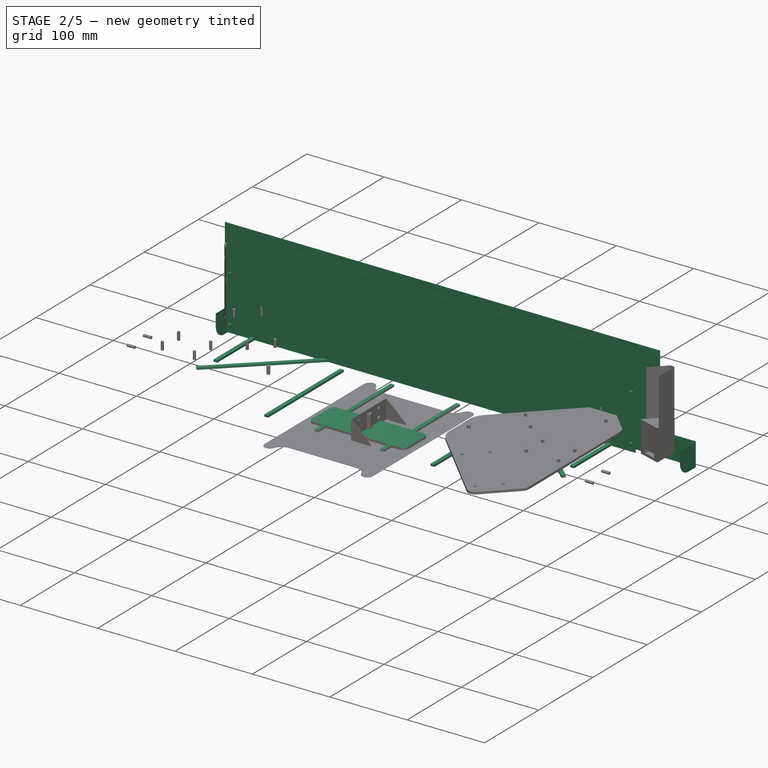
[diagram: stage 2 of 5 — iso view after this stage's code; geometry added in this stage tinted green]
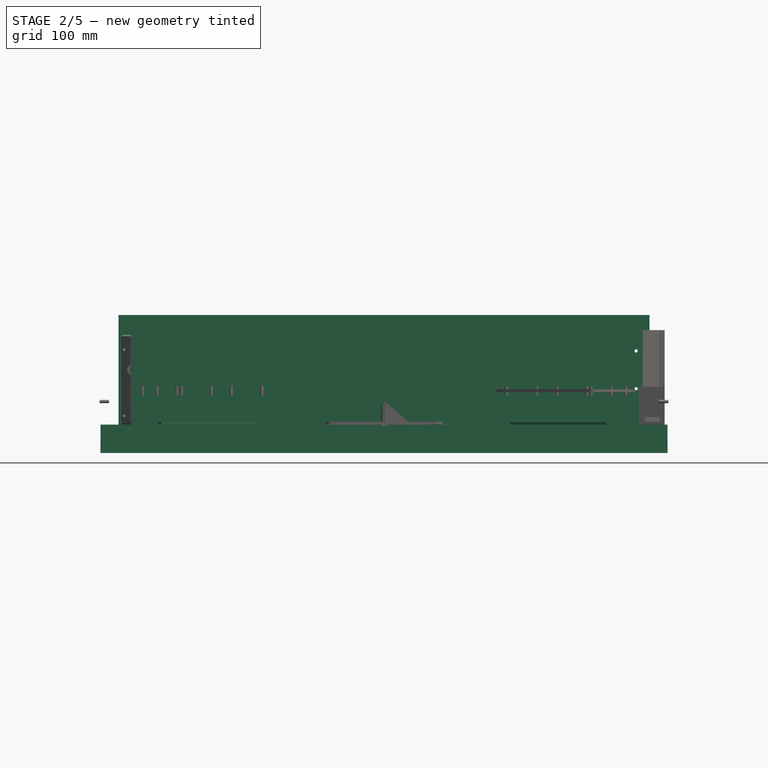
[diagram: stage 2 of 5 — front view after this stage's code; geometry added in this stage tinted green]
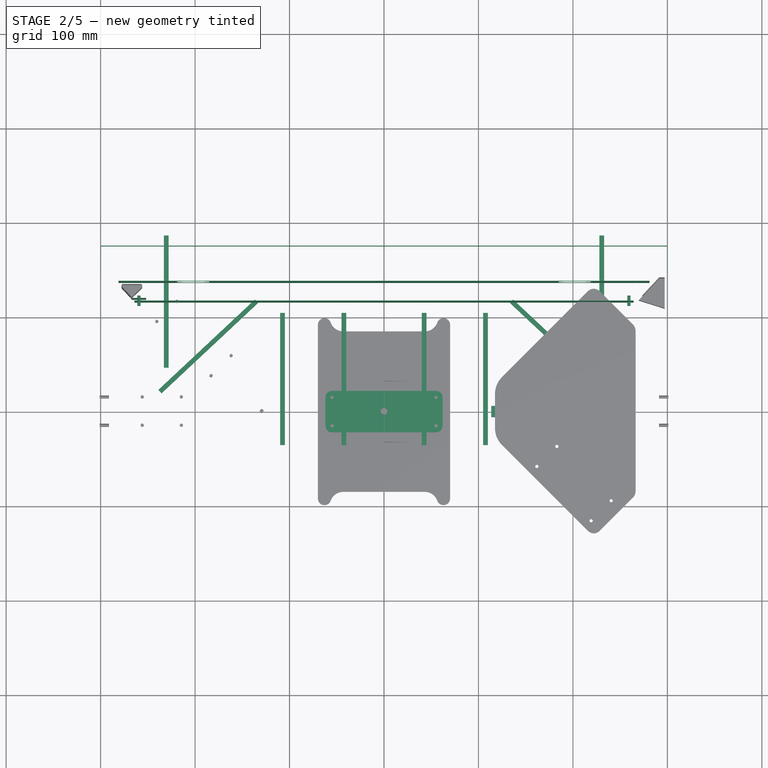
[diagram: stage 2 of 5 — top view after this stage's code; geometry added in this stage tinted green]
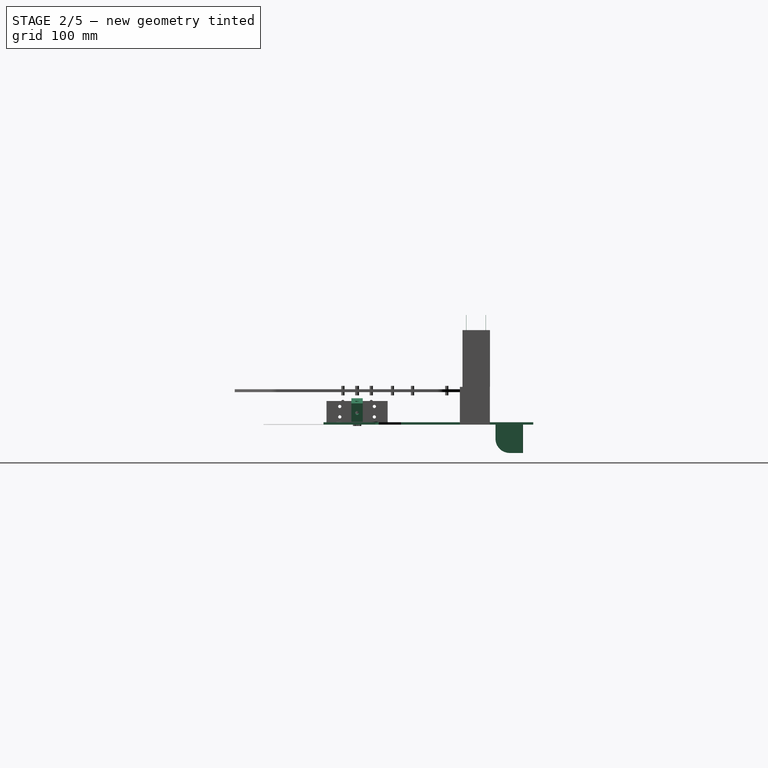
[diagram: stage 2 of 5 — right view after this stage's code; geometry added in this stage tinted green]
FEATURE [PartDesign::SubShapeBinder] Binder002
  BindCopyOnChange = 0
  BindMode = 0
  ClaimChildren = false
  Context = -> Body006 [Body.Binder002.]
  Fuse = false
  MakeFace = true
  OffsetFill = false
  OffsetIntersection = false
  OffsetJoinType = 0
  OffsetOpenResult = false
  PartialLoad = false
  Relative = true
  Support = -> [Sketch]
  _Version = 2
FEATURE [Sketcher::SketchObject] Sketch007
  ExternalGeometry = -> [Binder002]
  FullyConstrained = true
  MapMode = 5
  Support = -> [XY_Plane]
  expr: Constraints[5] = <<face_BaseBend>>.thickness
  expr: Constraints[9] = <<face_main_sketch>>.Constraints.offset
  sketch-geometry (7):
    g0: LineSegment StartX=-267.5 StartY=119.428 StartZ=0 EndX=267.5 EndY=119.428 EndZ=0
    g1: LineSegment StartX=267.5 StartY=119.428 StartZ=0 EndX=267.719 EndY=119.223 EndZ=0
    g2: LineSegment StartX=267.719 StartY=119.223 StartZ=0 EndX=267.719 EndY=0 EndZ=0
    g3: LineSegment StartX=267.719 StartY=0 StartZ=0 EndX=-267.719 EndY=0 EndZ=0
    g4: LineSegment StartX=267.5 StartY=119.428 StartZ=0 EndX=267.5 EndY=109.928 EndZ=0
    g5: LineSegment StartX=-267.5 StartY=119.428 StartZ=0 EndX=-267.719 EndY=119.223 EndZ=0
    g6: LineSegment StartX=-267.719 StartY=119.223 StartZ=0 EndX=-267.719 EndY=0 EndZ=0
  constraints (19):
    c: Coincident(g0,g1)
    c: Coincident(g1,g2)
    c: PointOnObject(g2,g-1)
    c: Vertical(g2)
    c: Coincident(g2,g3)
    c: Distance(g1) = 0.3
    c: Coincident(g4,g0)
    c: PointOnObject(g4,g-3)
    c: Vertical(g4)
    c: DistanceY(g4,g4) = 9.5
    c: DistanceX(g0) = 267.5
    c: Coincident(g0,g5)
    c: Coincident(g5,g6)
    c: PointOnObject(g6,g-1)
    c: Coincident(g3,g6)
    c: Vertical(g6)
    c: Symmetric(g0,g0,g-2)
    c: Symmetric(g5,g1,g-2)
    c: Perpendicular(g-3,g1)
FEATURE [PartDesign::SubShapeBinder] Binder003  label="dropper_fix"
  BindCopyOnChange = 0
  BindMode = 0
  ClaimChildren = false
  Fuse = false
  MakeFace = true
  Offset = 0.5
  OffsetFill = false
  OffsetIntersection = false
  OffsetJoinType = 0
  OffsetOpenResult = false
  PartialLoad = false
  Relative = true
  Support = -> [<external dropper.FCStd>#Part[Body.Binder.Compound.]]
  _Version = 2
FEATURE [PartDesign::SubShapeBinder] Binder004  label="dropper_feed"
  BindCopyOnChange = 0
  BindMode = 0
  ClaimChildren = false
  Fuse = false
  MakeFace = true
  OffsetFill = false
  OffsetIntersection = false
  OffsetJoinType = 0
  OffsetOpenResult = false
  PartialLoad = false
  Relative = true
  Support = -> [<external dropper.FCStd>#Part[Body.Sketch008.]]
  _Version = 2
FEATURE [PartDesign::SubShapeBinder] Binder005  label="dropper_base"
  BindCopyOnChange = 0
  BindMode = 0
  ClaimChildren = false
  Fuse = false
  MakeFace = true
  OffsetFill = false
  OffsetIntersection = false
  OffsetJoinType = 0
  OffsetOpenResult = false
  PartialLoad = false
  Relative = true
  Support = -> [<external dropper.FCStd>#Part[Body001.Sketch007.]]
  _Version = 2
FEATURE [Part::Compound] Compound003
  Links = -> [Binder003,Binder005]
FEATURE [Part::FeaturePython] FuseCompound  label="dropper_place"  # WARN: FeaturePython — macro-defined, semantics opaque (R4)
  Base = -> Compound003
  Refine = true
  recomputeQuota = -1
FEATURE [Part::Box] Box  label="Cube"
  AttacherType = Attacher::AttachEngine3D
  Height = 10
  Length = 500
  Placement = pos=(-250,0,-3) rot=(0,0,1;0rad)
  Width = 90
  expr: .Placement.Base.x = -Length / 2
FEATURE [Sketcher::SketchObject] Sketch040
  FullyConstrained = true
  MapMode = 5
  Support = -> [XY_Plane018]
  sketch-geometry (7):
    g0: ArcOfCircle CenterX=2.79363 CenterY=2.79363 CenterZ=0 NormalX=0 NormalY=0 NormalZ=1 AngleXU=0 Radius=1.6 StartAngle=5.49779 EndAngle=8.63938
    g1: LineSegment StartX=3.925 StartY=3.925 StartZ=0 EndX=1.66226 EndY=3.925 EndZ=0
    g2: LineSegment StartX=1.66226 StartY=3.925 StartZ=0 EndX=0 EndY=3.925 EndZ=0
    g3: LineSegment StartX=3.925 StartY=0 StartZ=0 EndX=3.925 EndY=1.66226 EndZ=0
    g4: LineSegment StartX=3.925 StartY=1.66226 StartZ=0 EndX=3.925 EndY=3.925 EndZ=0
    g5: LineSegment StartX=0 StartY=3.925 StartZ=0 EndX=0 EndY=0 EndZ=0
    g6: LineSegment StartX=0 StartY=0 StartZ=0 EndX=3.925 EndY=0 EndZ=0
  constraints (20):
    c: PointOnObject(g3,g-1)
    c: Coincident(g4,g1)
    c: PointOnObject(g2,g-2)
    c: Coincident(g1,g2)
    c: Horizontal(g1)
    c: Horizontal(g2)
    c: Coincident(g3,g4)
    c: Vertical(g3)
    c: Vertical(g4)
    c: Coincident(g2,g0)
    c: Coincident(g3,g0)
    c: Coincident(g2,g5)
    c: Coincident(g5,g-1)
    c: Coincident(g5,g6)
    c: Coincident(g6,g3)
    c: Equal(g6,g5)
    c: DistanceX(g6,g6) = 3.925
    c: PointOnObject(g1,g0)
    c: Equal(g4,g1)
    c: Diameter(g0) = 3.2
FEATURE [PartDesign::Pad] Pad010
  Direction = (0,0,1)
  Length = 3
  Length2 = 10
  Midplane = true
  Profile = -> Sketch040
  ReferenceAxis = -> Sketch040 [N_Axis]
  Type = 0
FEATURE [PartDesign::SubShapeBinder] Binder032
  BindCopyOnChange = 0
  BindMode = 0
  ClaimChildren = true
  Context = -> Body019 [Binder032.]
  Fuse = false
  MakeFace = true
  OffsetFill = false
  OffsetIntersection = false
  OffsetJoinType = 0
  OffsetOpenResult = false
  PartialLoad = false
  Relative = false
  Support = -> [Connect002]
  _Version = 2
FEATURE [PartDesign::FeaturePython] BaseBend006  # WARN: FeaturePython — macro-defined, semantics opaque (R4)
  BendSide = 1
  BendSketch = -> Binder032
  MidPlane = false
  Reverse = false
  length = 116
  radius = 0.1
  thickness = 0.3
FEATURE [PartDesign::FeaturePython] BaseBend008  # WARN: FeaturePython — macro-defined, semantics opaque (R4)
  BendSide = 1
  BendSketch = -> Binder034
  MidPlane = false
  Reverse = false
  length = 100
  radius = 0.1
  thickness = 0.3
FEATURE [Part::FeaturePython] Placment012  # WARN: FeaturePython — macro-defined, semantics opaque (R4)
  AttacherType = Attacher::AttachEngine3D
  AttachmentOffset = pos=(3,0,0) rot=(-0.57735,-0.57735,0.57735;2.0944rad)
  ExposePlacement = true
  MapMode = 45
  MarkerShape = 1
  MarkerSize = 2
  NumElements = 1
  Placement = pos=(259.317,121.698,0) rot=(0.57735,-0.57735,0.57735;2.0944rad)
  Support = -> [Sketch051]
  Type = lattice2AttachablePlacement.AttachablePlacement
  isLattice = 1
FEATURE [Part::FeaturePython] LinearArray008  # WARN: FeaturePython — macro-defined, semantics opaque (R4)
  Alignment = 0
  CellStart = A1
  Count = 2
  Dir = (1,0,0)
  DirIsDriven = true
  DistributionLaw = 0
  DrivenProperty = 1
  EndInclusive = true
  ExposePlacement = false
  GeneratorMode = 0
  MarkerShape = 1
  MarkerSize = 0
  NumElements = 2
  OrientMode = 1
  Point = (0,0,0)
  PointIsDriven = true
  Reverse = false
  SpanEnd = 70
  SpanStart = 10
  Step = 60
  Type = lattice2LinearArray.LinearArray
  VSGVersion = 1
  Values = 10.0 | 70.0
  ValuesSource = 2
  isLattice = 1
FEATURE [Part::FeaturePython] Populate041  label="Populate Placment012 with LinearArray008"  # WARN: FeaturePython — macro-defined, semantics opaque (R4)
  Copying = 0
  ExposePlacement = false
  MarkerShape = 1
  MarkerSize = 0
  NumElements = 2
  Object = -> LinearArray008
  OutputCompounding = 0
  PlacementsTo = -> Placment012
  Referencing = 0
  Type = lattice2PopulateCopies.LatticePopulateCopies
  isLattice = 1
FEATURE [Part::FeaturePython] Mirror018  label="Mirror018 of Populate Placment012 with LinearArray008"  # WARN: FeaturePython — macro-defined, semantics opaque (R4)
  ExposePlacement = false
  FlipX = true
  FlipY = false
  FlipZ = false
  MarkerShape = 1
  MarkerSize = 0
  NumElements = 2
  Object = -> Populate041
  ObjectTraversal = 0
  Type = lattice2Mirror.LatticeMirror
  isLattice = 1
FEATURE [Part::FeaturePython] Join018  # WARN: FeaturePython — macro-defined, semantics opaque (R4)
  ExposePlacement = false
  Interleave = false
  Links = -> [Mirror018,Populate041]
  MarkerShape = 1
  MarkerSize = 0
  NumElements = 4
  Type = lattice2JoinArrays.JoinArrays
  isLattice = 1
FEATURE [Part::FeaturePython] Populate042  label="Populate Join018 with hole_3.4_mm_extrude"  # WARN: FeaturePython — macro-defined, semantics opaque (R4)
  Copying = 0
  ExposePlacement = false
  MarkerShape = 1
  MarkerSize = 0
  NumElements = 0
  Object = -> Extrude001
  OutputCompounding = 1
  PlacementsTo = -> Join018
  Referencing = 0
  Type = lattice2PopulateCopies.LatticePopulateCopies
  isLattice = 0
FEATURE [Part::Compound] Compound026
  Links = -> [Populate042]
FEATURE [Part::Compound] Compound027
  Links = -> [Populate042]
FEATURE [Part::Compound] Compound028
  Links = -> [Populate042]
FEATURE [PartDesign::Body] Body020
  Group = -> [Binder033,BaseBend007,Boolean018]
  Origin = -> Origin027
  Tip = -> Boolean018
FEATURE [PartDesign::Boolean] Boolean019
  BaseFeature = -> BaseBend008
  Group = -> [Compound027]
  Type = 1
FEATURE [PartDesign::Boolean] Boolean020
  BaseFeature = -> BaseBend006
  Group = -> [Compound028]
  Refine = true
  Type = 1
FEATURE [PartDesign::Body] Body019
  Group = -> [Binder032,BaseBend006,Boolean020]
  Origin = -> Origin026
  Tip = -> Boolean020
FEATURE [PartDesign::SubShapeBinder] Binder035
  BindCopyOnChange = 0
  BindMode = 0
  ClaimChildren = true
  Context = -> Part002 [Part004.Body017.Boolean015.Body022.Binder035.]
  Fuse = false
  MakeFace = true
  OffsetFill = false
  OffsetIntersection = false
  OffsetJoinType = 0
  OffsetOpenResult = false
  PartialLoad = false
  Relative = true
  Support = -> [Compound023]
  _Version = 2
  expr: Support = <<Compound023>>._self
FEATURE [PartDesign::FeaturePython] BaseBend009  # WARN: FeaturePython — macro-defined, semantics opaque (R4)
  BendSide = 0
  BendSketch = -> Binder035
  MidPlane = false
  Reverse = true
  length = 30
  radius = 0.1
  thickness = 0.3
FEATURE [Sketcher::SketchObject] Sketch052
  ExternalGeometry = -> [Binder035]
  FullyConstrained = true
  MapMode = 5
  Placement = pos=(0,0,0) rot=(0.57735,0.57735,0.57735;2.0944rad)
  Support = -> [YZ_Plane029]
  sketch-geometry (3):
    g0: ArcOfCircle CenterX=161.558 CenterY=-15 CenterZ=0 NormalX=0 NormalY=0 NormalZ=1 AngleXU=0 Radius=15 StartAngle=3.14159 EndAngle=4.71239
    g1: LineSegment StartX=146.558 StartY=-15 StartZ=0 EndX=146.558 EndY=-30 EndZ=0
    g2: LineSegment StartX=146.558 StartY=-30 StartZ=0 EndX=161.558 EndY=-30 EndZ=0
  constraints (9):
    c: Coincident(g1,g2)
    c: Coincident(g2,g0)
    c: Tangent(g2,g0)
    c: Tangent(g0,g1) = -1.5708
    c: Horizontal(g2)
    c: Vertical(g1)
    c: Vertical(g1,g-3)
    c: DistanceY(g1,g-3) = 30
    c: Diameter(g0) = 30
FEATURE [PartDesign::Pocket] Pocket012
  BaseFeature = -> BaseBend009
  Direction = (-1,0,0)
  Length = 5
  Length2 = 5
  Midplane = true
  Profile = -> Sketch052
  ReferenceAxis = -> Sketch052 [N_Axis]
  Type = 1
FEATURE [PartDesign::Body] Body022
  Group = -> [Binder035,BaseBend009,Sketch052,Pocket012]
  Origin = -> Origin029
  Tip = -> Pocket012
FEATURE [Part::Compound] Compound029
  Links = -> [Body022]
FEATURE [Part::FeaturePython] Placment013  # WARN: FeaturePython — macro-defined, semantics opaque (R4)
  AttacherType = Attacher::AttachEngine3D
  ExposePlacement = true
  MarkerShape = 1
  MarkerSize = 20
  NumElements = 1
  Placement = pos=(55,15,0) rot=(0,0,1;0rad)
  Type = lattice2AttachablePlacement.AttachablePlacement
  isLattice = 1
FEATURE [Sketcher::SketchObject] Sketch053  label="face_conn_sketch"
  ExternalGeometry = -> [Placment013]
  FullyConstrained = true
  sketch-geometry (5):
    g0: ArcOfCircle CenterX=55 CenterY=15 CenterZ=0 NormalX=0 NormalY=0 NormalZ=1 AngleXU=0 Radius=7 StartAngle=0 EndAngle=1.5708
    g1: LineSegment StartX=55 StartY=22 StartZ=0 EndX=0 EndY=22 EndZ=0
    g2: LineSegment StartX=62 StartY=15 StartZ=0 EndX=62 EndY=0 EndZ=0
    g3: GeomPoint X=-62 Y=0 Z=0
    g4: GeomPoint X=0 Y=-22 Z=0
  constraints (12):
    c: Coincident(g0,g-3)
    c: PointOnObject(g1,g-2)
    c: Horizontal(g1)
    c: PointOnObject(g2,g-1)
    c: Vertical(g2)
    c: Tangent(g2,g0) = 1.5708
    c: Tangent(g1,g0) = -1.5708
    c: Radius(g0) = 7
    c: Symmetric(g2,g3,g-2)
    c: Symmetric(g4,g1,g-1)
    c: DistanceX(g3,g2) = 124  'length'
    c: DistanceY(g4,g1) = 44  'width'
FEATURE [Part::Mirroring] Part__Mirroring010  label="Sketch053 (Mirror #11)"
  Base = (0,0,0)
  Normal = (1,0,0)
  Source = -> Sketch053
FEATURE [Part::Compound] Compound030
  Links = -> [Sketch053,Part__Mirroring010]
FEATURE [Part::FeaturePython] Array001  # Draft array (typed FeaturePython)
  Angle = 360
  ArrayType = 1
  Axis = (0,0,1)
  Base = -> Compound030
  Center = (0,0,0)
  Count = 2
  Fuse = true
  IntervalAxis = (0,0,0)
  IntervalX = (50,0,0)
  IntervalY = (0,50,0)
  IntervalZ = (0,0,50)
  NumberCircles = 3
  NumberPolar = 2
  NumberX = 2
  NumberY = 2
  NumberZ = 1
  RadialDistance = 50
  Symmetry = 1
  TangentialDistance = 25
FEATURE [Part::FeaturePython] Connect003  # WARN: FeaturePython — macro-defined, semantics opaque (R4)
  Objects = -> [Array001]
  Tolerance = 0
FEATURE [PartDesign::SubShapeBinder] Binder036
  BindCopyOnChange = 0
  BindMode = 0
  ClaimChildren = true
  Context = -> Body024 [Binder036.]
  Fuse = false
  MakeFace = true
  OffsetFill = false
  OffsetIntersection = false
  OffsetJoinType = 0
  OffsetOpenResult = false
  PartialLoad = false
  Relative = false
  Support = -> [Connect003]
  _Version = 2
FEATURE [PartDesign::Pad] Pad012
  Direction = (0,0,1)
  Length = 3
  Length2 = 10
  Profile = -> Binder036
  Refine = true
  Type = 0
FEATURE [Part::FeaturePython] Mirror019  label="Mirror019 of Placment013"  # WARN: FeaturePython — macro-defined, semantics opaque (R4)
  ExposePlacement = false
  FlipX = true
  FlipY = false
  FlipZ = false
  MarkerShape = 1
  MarkerSize = 20
  NumElements = 1
  Object = -> Placment013
  ObjectTraversal = 0
  Type = lattice2Mirror.LatticeMirror
  isLattice = 1
FEATURE [Part::FeaturePython] Join019  # WARN: FeaturePython — macro-defined, semantics opaque (R4)
  ExposePlacement = false
  Interleave = false
  Links = -> [Mirror019,Placment013]
  MarkerShape = 1
  MarkerSize = 0
  NumElements = 2
  Type = lattice2JoinArrays.JoinArrays
  isLattice = 1
FEATURE [Part::FeaturePython] Populate043  label="Populate 2_elem_polar_array with Join019"  # WARN: FeaturePython — macro-defined, semantics opaque (R4)
  Copying = 0
  ExposePlacement = false
  MarkerShape = 1
  MarkerSize = 0
  NumElements = 4
  Object = -> Join019
  OutputCompounding = 0
  PlacementsTo = -> PolarArray
  Referencing = 1
  Type = lattice2PopulateCopies.LatticePopulateCopies
  isLattice = 1
FEATURE [Part::FeaturePython] Populate044  label="Populate Populate 2_elem_polar_array with Join019 with hole_3.4_mm_extrude"  # WARN: FeaturePython — macro-defined, semantics opaque (R4)
  Copying = 0
  ExposePlacement = false
  MarkerShape = 1
  MarkerSize = 0
  NumElements = 0
  Object = -> Extrude001
  OutputCompounding = 1
  PlacementsTo = -> Populate043
  Referencing = 0
  Type = lattice2PopulateCopies.LatticePopulateCopies
  isLattice = 0
FEATURE [Part::Compound] Compound031
  Links = -> [Populate044]
FEATURE [PartDesign::Boolean] Boolean021
  BaseFeature = -> Pad012
  Group = -> [Compound031]
  Type = 1
FEATURE [PartDesign::FeatureBase] BaseFeature
  BaseFeature = -> Boolean
  expr: BaseFeature = <<face2_origin>>._self
FEATURE [PartDesign::PolarPattern] PolarPattern001
  Angle = 360
  Axis = -> Sketch040 [N_Axis]
  BaseFeature = -> Pad010
  Mode = 0
  Occurrences = 4
  Offset = 120
  Originals = -> [Pad010]
  Refine = true
FEATURE [Part::Cylinder] Cylinder001  label="hole_5mm_extrude"
  Angle = 360
  AttacherType = Attacher::AttachEngine3D
  FirstAngle = 0
  Height = 10
  Radius = 2.5
  SecondAngle = 0
FEATURE [Part::FeaturePython] LinearArray010  # WARN: FeaturePython — macro-defined, semantics opaque (R4)
  Alignment = 0
  CellStart = A1
  Count = 2
  Dir = (1,0,0)
  DirIsDriven = true
  DistributionLaw = 0
  DrivenProperty = 1
  EndInclusive = true
  ExposePlacement = false
  GeneratorMode = 0
  MarkerShape = 1
  MarkerSize = 0
  NumElements = 2
  OrientMode = 1
  Placement = pos=(0,-20,-3) rot=(0,0,1;1.5708rad)
  Point = (0,0,0)
  PointIsDriven = true
  Reverse = false
  SpanEnd = 40
  SpanStart = 0
  Step = 40
  Type = lattice2LinearArray.LinearArray
  VSGVersion = 1
  Values = 0.0 | 40.0
  ValuesSource = 2
  isLattice = 1
  expr: .Placement.Base.y = -SpanEnd / 2
FEATURE [Part::FeaturePython] Populate046  label="Populate magnet_placement with LinearArray010"  # WARN: FeaturePython — macro-defined, semantics opaque (R4)
  Copying = 0
  ExposePlacement = false
  MarkerShape = 1
  MarkerSize = 0
  NumElements = 2
  Object = -> LinearArray010
  OutputCompounding = 0
  PlacementsTo = -> Placment014
  Referencing = 0
  Type = lattice2PopulateCopies.LatticePopulateCopies
  isLattice = 1
FEATURE [Part::FeaturePython] Mirror020  label="Mirror020 of Populate magnet_placement with LinearArray010"  # WARN: FeaturePython — macro-defined, semantics opaque (R4)
  ExposePlacement = false
  FlipX = true
  FlipY = false
  FlipZ = false
  MarkerShape = 1
  MarkerSize = 0
  NumElements = 2
  Object = -> Populate046
  ObjectTraversal = 0
  Type = lattice2Mirror.LatticeMirror
  isLattice = 1
FEATURE [Part::FeaturePython] Join020  # WARN: FeaturePython — macro-defined, semantics opaque (R4)
  ExposePlacement = false
  Interleave = false
  Links = -> [Mirror020,Populate046]
  MarkerShape = 1
  MarkerSize = 10
  NumElements = 4
  Type = lattice2JoinArrays.JoinArrays
  isLattice = 1
FEATURE [Sketcher::SketchObject] Sketch058
  ExternalGeometry = -> [Sketch001,Sketch056]
  FullyConstrained = true
  sketch-geometry (2):
    g0: LineSegment StartX=281.128 StartY=136.558 StartZ=0 EndX=0 EndY=136.558 EndZ=0
    g1: GeomPoint X=282.128 Y=135.058 Z=0
  constraints (6):
    c: PointOnObject(g0,g-2)
    c: Horizontal(g0)
    c: DistanceY(g-4,g0) = 3
    c: PointOnObject(g1,g-3)
    c: DistanceX(g0,g1) = 1
    c: DistanceY(g1,g0) = 1.5
FEATURE [Part::Mirroring] Part__Mirroring011  label="Sketch058 (Mirror #12)"
  Base = (0,0,0)
  Normal = (1,0,0)
  Source = -> Sketch058
FEATURE [Part::FeaturePython] Connect004  # WARN: FeaturePython — macro-defined, semantics opaque (R4)
  Objects = -> [Part__Mirroring011,Sketch058]
  Tolerance = 0
FEATURE [PartDesign::SubShapeBinder] Binder040
  BindCopyOnChange = 0
  BindMode = 0
  ClaimChildren = true
  Context = -> Body027 [Binder040.]
  Fuse = false
  MakeFace = true
  OffsetFill = false
  OffsetIntersection = false
  OffsetJoinType = 0
  OffsetOpenResult = false
  PartialLoad = false
  Relative = false
  Support = -> [Connect004]
  _Version = 2
FEATURE [PartDesign::FeaturePython] BaseBend010  # WARN: FeaturePython — macro-defined, semantics opaque (R4)
  BendSide = 0
  BendSketch = -> Binder040
  MidPlane = false
  Reverse = false
  length = 116
  radius = 0.1
  thickness = 0.3
FEATURE [Part::FeaturePython] Populate047  label="Populate Join020 with hole_3.4_mm_extrude"  # WARN: FeaturePython — macro-defined, semantics opaque (R4)
  Copying = 0
  ExposePlacement = false
  MarkerShape = 1
  MarkerSize = 0
  NumElements = 0
  Object = -> Extrude001
  OutputCompounding = 1
  PlacementsTo = -> Join020
  Referencing = 0
  Type = lattice2PopulateCopies.LatticePopulateCopies
  isLattice = 0
FEATURE [Part::Compound] Compound032  label="front_shield_cut1"
  Links = -> [Populate047]
FEATURE [PartDesign::SubShapeBinder] Binder041
  BindCopyOnChange = 0
  BindMode = 0
  ClaimChildren = false
  Context = -> Body027 [Binder041.]
  Fuse = false
  MakeFace = true
  OffsetFill = false
  OffsetIntersection = false
  OffsetJoinType = 0
  OffsetOpenResult = false
  PartialLoad = false
  Placement = pos=(202,0,57) rot=(0.57735,0.57735,-0.57735;2.0944rad)
  Relative = true
  Support = -> [<external embedded_hand_34x80.FCStd>#Cut]
  _Version = 2
FEATURE [PartDesign::Pocket] Pocket013
  BaseFeature = -> BaseBend010
  Direction = (0,1,0)
  Length = 5
  Length2 = 5
  Profile = -> Binder041
  Type = 1
FEATURE [PartDesign::Mirrored] Mirrored010
  BaseFeature = -> Pocket013
  MirrorPlane = -> YZ_Plane034
  Originals = -> [Pocket013]
FEATURE [PartDesign::Boolean] Boolean022
  BaseFeature = -> Mirrored010
  Group = -> [Compound032]
  Refine = true
  Type = 1
FEATURE [Part::Box] Box001  label="Cube001"
  AttacherType = Attacher::AttachEngine3D
  Height = 2.5
  Length = 5
  Placement = pos=(-2.5,-70,0) rot=(0,0,1;0rad)
  Width = 140
  expr: .Placement.Base.x = -Length / 2
  expr: .Placement.Base.y = -Width / 2
FEATURE [Part::FeaturePython] Populate049  label="Populate Join002 with Cube001"  # WARN: FeaturePython — macro-defined, semantics opaque (R4)
  Copying = 0
  ExposePlacement = false
  MarkerShape = 1
  MarkerSize = 0
  NumElements = 0
  Object = -> Box001
  OutputCompounding = 1
  PlacementsTo = -> Join002
  Referencing = 0
  Type = lattice2PopulateCopies.LatticePopulateCopies
  isLattice = 0
FEATURE [PartDesign::SubShapeBinder] Binder042
  BindCopyOnChange = 0
  BindMode = 0
  ClaimChildren = true
  Context = -> Part [Body028.Binder042.]
  Fuse = false
  MakeFace = true
  OffsetFill = false
  OffsetIntersection = false
  OffsetJoinType = 0
  OffsetOpenResult = false
  PartialLoad = false
  Relative = true
  Support = -> [Sketch012]
  _Version = 2
  expr: Support = <<top_base_sketch>>._self
FEATURE [PartDesign::SubShapeBinder] Binder043
  BindCopyOnChange = 0
  BindMode = 0
  ClaimChildren = true
  Context = -> Part [Body028.Binder043.]
  Fuse = false
  MakeFace = true
  OffsetFill = false
  OffsetIntersection = false
  OffsetJoinType = 0
  OffsetOpenResult = false
  PartialLoad = false
  Relative = true
  Support = -> [Sketch030]
  _Version = 2
FEATURE [Sketcher::SketchObject] Sketch059
  ExternalGeometry = -> [Binder042,Binder043]
  FullyConstrained = true
  MapMode = 5
  Support = -> [XY_Plane035]
  sketch-geometry (14):
    g0: LineSegment StartX=113.536 StartY=3 StartZ=0 EndX=141.041 EndY=3 EndZ=0
    g1: LineSegment StartX=141.041 StartY=3 StartZ=0 EndX=144.771 EndY=24.1563 EndZ=0
    g2: LineSegment StartX=144.771 StartY=24.1563 StartZ=0 EndX=171.35 EndY=19.4697 EndZ=0
    g3: LineSegment StartX=171.35 StartY=19.4697 StartZ=0 EndX=171.871 EndY=22.4241 EndZ=0
    g4: LineSegment StartX=171.871 StartY=22.4241 StartZ=0 EndX=140.368 EndY=27.979 EndZ=0
    g5: LineSegment StartX=140.368 StartY=27.979 StartZ=0 EndX=137.574 EndY=12.1318 EndZ=0
    g6: LineSegment StartX=132.65 StartY=8 StartZ=0 EndX=113.536 EndY=8 EndZ=0
    g7: LineSegment StartX=113.536 StartY=8 StartZ=0 EndX=113.536 EndY=3 EndZ=0
    g8: LineSegment StartX=136.845 StartY=3 StartZ=0 EndX=136.845 EndY=8 EndZ=0
    g9: LineSegment StartX=136.845 StartY=8 StartZ=0 EndX=141.769 EndY=7.13176 EndZ=0
    g10: LineSegment StartX=143.995 StartY=2.47906 StartZ=0 EndX=141.041 EndY=3 EndZ=0
    g11: LineSegment StartX=141.041 StartY=3 StartZ=0 EndX=141.041 EndY=0 EndZ=0
    g12: ArcOfCircle CenterX=132.65 CenterY=13 CenterZ=0 NormalX=0 NormalY=0 NormalZ=1 AngleXU=0 Radius=5 StartAngle=4.71239 EndAngle=6.10865
    g13: GeomPoint X=136.845 Y=8 Z=0
  constraints (40):
    c: Horizontal(g0)
    c: Coincident(g0,g1)
    c: Coincident(g1,g2)
    c: Coincident(g2,g3)
    c: Coincident(g3,g4)
    c: Coincident(g4,g5)
    c: Horizontal(g6)
    c: Coincident(g6,g7)
    c: Coincident(g7,g0)
    c: Vertical(g7)
    c: PointOnObject(g8,g0)
    c: Coincident(g8,g13)
    c: Coincident(g8,g9)
    c: PointOnObject(g9,g1)
    c: Perpendicular(g2,g3)
    c: Perpendicular(g4,g3)
    c: Perpendicular(g6,g8)
    c: Perpendicular(g5,g9)
    c: Parallel(g1,g-3)
    c: Perpendicular(g2,g1)
    c: PointOnObject(g-3,g2)
    c: PointOnObject(g10,g-3)
    c: Coincident(g10,g0)
    c: Coincident(g10,g11)
    c: PointOnObject(g11,g-1)
    c: Perpendicular(g0,g11)
    c: Perpendicular(g1,g10)
    c: Equal(g11,g10)
    c: Distance(g11) = 3
    c: PointOnObject(g13,g5)
    c: PointOnObject(g13,g6)
    c: Tangent(g5,g12) = 1.5708
    c: Tangent(g6,g12) = 1.5708
    c: Radius(g12) = 5
    c: Equal(g9,g8)
    c: Parallel(g1,g5)
    c: Distance(g9) = 5
    c: Distance(g3) = 3
    c: DistanceX(g0,g-4) = 8
    c: DistanceX(g1,g3) = 27.1
FEATURE [PartDesign::SubShapeBinder] Binder044
  BindCopyOnChange = 0
  BindMode = 0
  ClaimChildren = false
  Context = -> Part [Body028.Binder044.]
  Fuse = false
  MakeFace = true
  OffsetFill = false
  OffsetIntersection = false
  OffsetJoinType = 0
  OffsetOpenResult = false
  PartialLoad = false
  Placement = pos=(0,0,0) rot=(1,0,0;1.5708rad)
  Relative = true
  Support = -> [Sketch059]
  _Version = 2
FEATURE [PartDesign::Pad] Pad014
  Direction = (0,-1,2e-16)
  Length = 12
  Length2 = 10
  Midplane = true
  Placement = pos=(0,0,0) rot=(1,0,0;1.5708rad)
  Profile = -> Binder044
  Type = 0
FEATURE [Part::FeaturePython] Populate050  label="Populate PlacementSubsequence with hole_4mm_extrude"  # WARN: FeaturePython — macro-defined, semantics opaque (R4)
  Copying = 0
  ExposePlacement = false
  MarkerShape = 1
  MarkerSize = 0
  NumElements = 0
  Object = -> Cylinder004
  OutputCompounding = 1
  PlacementsTo = -> PlacementSubsequence
  Referencing = 0
  Type = lattice2PopulateCopies.LatticePopulateCopies
  isLattice = 0
FEATURE [Part::MultiFuse] Fusion006
  Shapes = -> [Populate050]
FEATURE [PartDesign::Boolean] Boolean023
  BaseFeature = -> Pad014
  Group = -> [Fusion006]
  Type = 1
FEATURE [Part::FeaturePython] Populate053  label="Populate Populate LinearArray006 with corner x2 with hole_3.4_mm_extrude"  # WARN: FeaturePython — macro-defined, semantics opaque (R4)
  Copying = 0
  ExposePlacement = false
  MarkerShape = 1
  MarkerSize = 0
  NumElements = 0
  Object = -> Extrude001
  OutputCompounding = 1
  PlacementsTo = -> Populate052
  Referencing = 0
  Type = lattice2PopulateCopies.LatticePopulateCopies
  isLattice = 0
FEATURE [Part::Compound] Compound033
  Links = -> [Populate053]
FEATURE [Sketcher::SketchObject] Sketch061
  ExternalGeometry = -> [Sketch060]
  FullyConstrained = true
  MapMode = 5
  Placement = pos=(0,0,0) rot=(1,0,0;1.5708rad)
  Support = -> [XZ_Plane036]
  expr: Constraints[11] = BaseBend011.length
  sketch-geometry (5):
    g0: LineSegment StartX=28.5181 StartY=7.1e-15 StartZ=0 EndX=25.5181 EndY=7.1e-15 EndZ=0
    g1: LineSegment StartX=25.5181 StartY=7.1e-15 StartZ=0 EndX=25.5181 EndY=3 EndZ=0
    g2: LineSegment StartX=25.5181 StartY=3 StartZ=0 EndX=0.4 EndY=25 EndZ=0
    g3: LineSegment StartX=0.4 StartY=25 StartZ=0 EndX=28.5181 EndY=25 EndZ=0
    g4: LineSegment StartX=28.5181 StartY=25 StartZ=0 EndX=28.5181 EndY=7.1e-15 EndZ=0
  constraints (14):
    c: Coincident(g-3,g0)
    c: Horizontal(g0)
    c: Coincident(g0,g1)
    c: Vertical(g1)
    c: Coincident(g1,g2)
    c: Coincident(g2,g3)
    c: Horizontal(g3)
    c: Coincident(g3,g4)
    c: Vertical(g4)
    c: Equal(g0,g1)
    c: DistanceX(g0,g0) = 3
    c: DistanceY(g2) = 25
    c: Coincident(g4,g0)
    c: DistanceX(g2) = 0.4
FEATURE [PartDesign::Pocket] Pocket014
  BaseFeature = -> Bend005
  Direction = (0,1,-2e-16)
  Length = 5
  Length2 = 5
  Midplane = true
  Profile = -> Sketch061
  ReferenceAxis = -> Sketch061 [N_Axis]
  Type = 1
FEATURE [PartDesign::Boolean] Boolean024
  BaseFeature = -> Pocket014
  Group = -> [Compound033]
  Type = 1
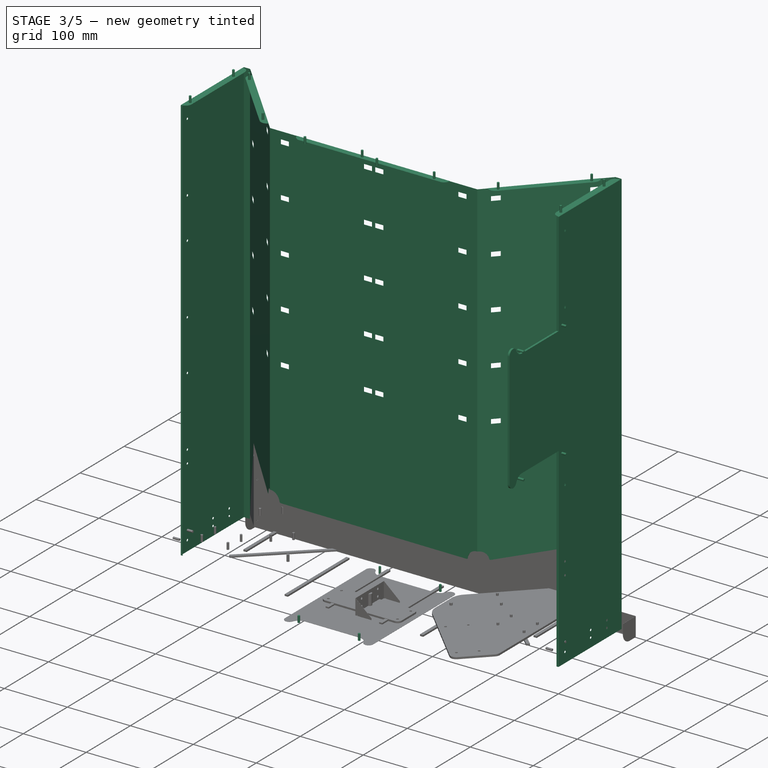
[diagram: stage 3 of 5 — iso view after this stage's code; geometry added in this stage tinted green]
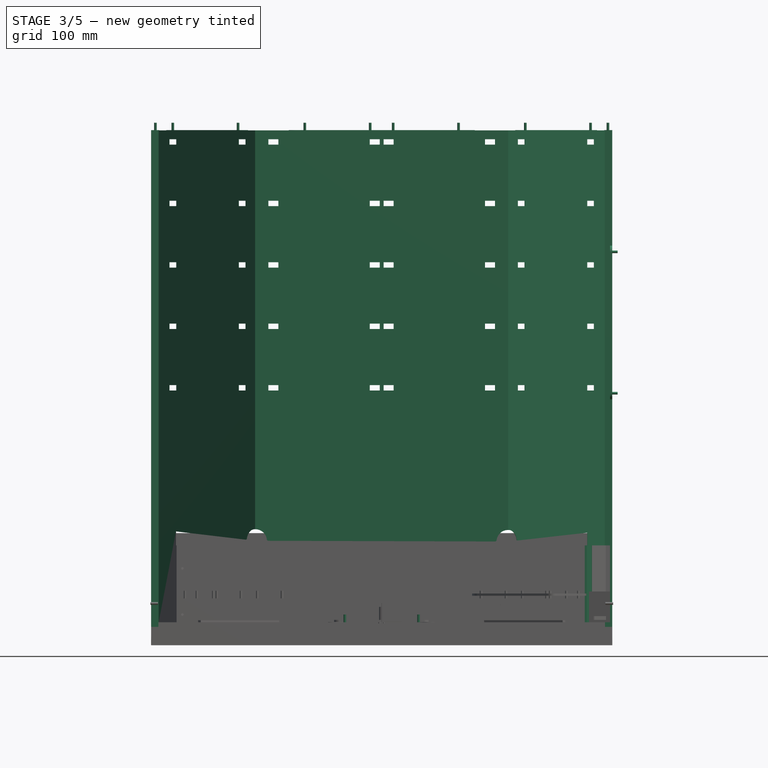
[diagram: stage 3 of 5 — front view after this stage's code; geometry added in this stage tinted green]
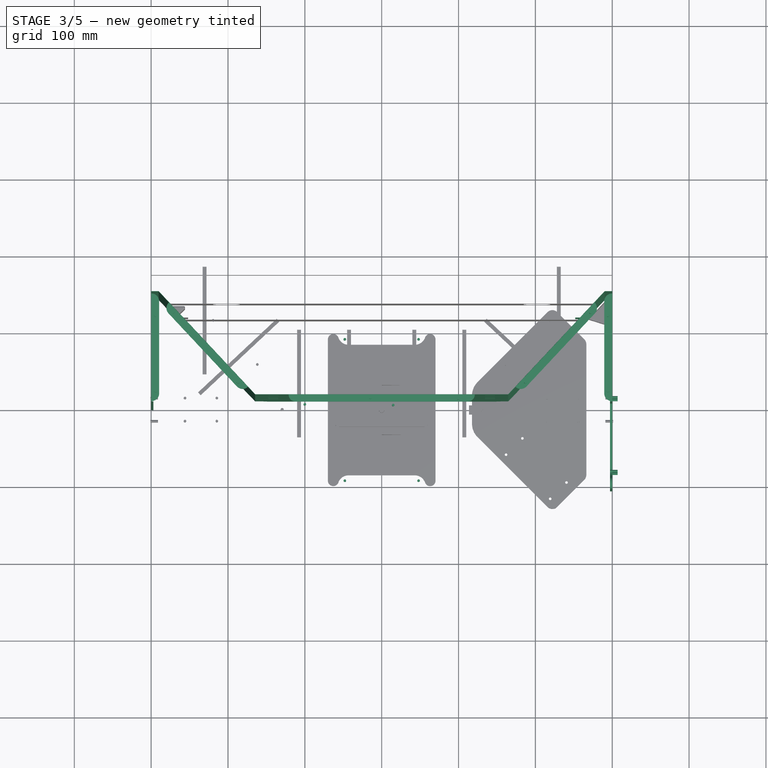
[diagram: stage 3 of 5 — top view after this stage's code; geometry added in this stage tinted green]
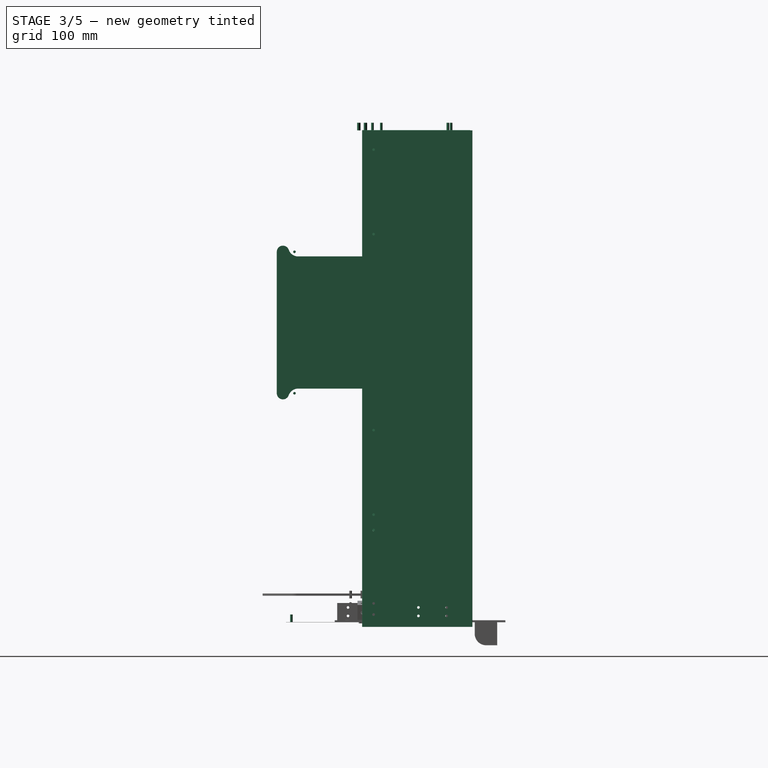
[diagram: stage 3 of 5 — right view after this stage's code; geometry added in this stage tinted green]
FEATURE [Sketcher::SketchObject] Sketch  label="main_sketch"
  FullyConstrained = true
  expr: Constraints[15] = module#<<Properties>>.module_width * 2 + 2 mm * 1
  expr: Constraints[4] = module#<<Properties>>.module_width + 2 mm
  sketch-geometry (10):
    g0: LineSegment StartX=0 StartY=-2.17e-14 StartZ=0 EndX=164.614 EndY=-2.17e-14 EndZ=0
    g1: LineSegment StartX=164.614 StartY=-2.17e-14 StartZ=0 EndX=290.084 EndY=134.058 EndZ=0
    g2: LineSegment StartX=-149 StartY=36 StartZ=0 EndX=149 EndY=36 EndZ=0
    g3: LineSegment StartX=149 StartY=36 StartZ=0 EndX=251.5 EndY=145.516 EndZ=0
    g4: LineSegment StartX=149 StartY=-4.35e-14 StartZ=0 EndX=149 EndY=36 EndZ=0
    g5: LineSegment StartX=149 StartY=36 StartZ=0 EndX=175.284 EndY=11.4 EndZ=0
    g6: LineSegment StartX=251.5 StartY=145.516 StartZ=0 EndX=277.784 EndY=120.916 EndZ=0
    g7: GeomPoint X=226.534 Y=66.158 Z=0
    g8: GeomPoint X=200.25 Y=90.758 Z=0
    g9: LineSegment StartX=200.25 StartY=90.758 StartZ=0 EndX=226.534 EndY=66.158 EndZ=0
  constraints (26):
    c: Horizontal(g0)
    c: Coincident(g1,g0)
    c: Coincident(g0,g-1)
    c: Parallel(g1,g3)
    c: Distance(g3) = 150
    c: Coincident(g4,g2)
    c: Coincident(g4,g5)
    c: PointOnObject(g5,g1)
    c: Perpendicular(g3,g5)
    c: Equal(g4,g5)
    c: Coincident(g6,g3)
    c: PointOnObject(g6,g1)
    c: Perpendicular(g3,g6)
    c: Symmetric(g2,g2,g-2)
    c: Coincident(g3,g2)
    c: DistanceX(g2,g2) = 298
    c: PointOnObject(g4,g0)
    c: Perpendicular(g2,g4)
    c: DistanceY(g4,g4) = 36
    c: PointOnObject(g7,g1)
    c: Symmetric(g2,g3,g8)
    c: Coincident(g9,g8)
    c: Coincident(g9,g7)
    c: Perpendicular(g3,g9)
    c: Distance(g6,g1) = 18
    c: DistanceX(g2,g3) = 102.5
FEATURE [Sketcher::SketchObject] Sketch001  label="face_main_sketch"
  ExternalGeometry = -> [Sketch]
  FullyConstrained = true
  sketch-geometry (5):
    g0: LineSegment StartX=0 StartY=9.5 StartZ=0 EndX=164.614 EndY=9.5 EndZ=0
    g1: LineSegment StartX=164.614 StartY=9.5 StartZ=0 EndX=290.084 EndY=143.558 EndZ=0
    g2: LineSegment StartX=290.084 StartY=143.558 StartZ=0 EndX=300.084 EndY=143.558 EndZ=0
    g3: LineSegment StartX=300.084 StartY=143.558 StartZ=0 EndX=300.084 EndY=0 EndZ=0
    g4: GeomPoint X=-300.084 Y=0 Z=0
  constraints (16):
    c: PointOnObject(g0,g-2)
    c: Horizontal(g0)
    c: Coincident(g1,g0)
    c: Coincident(g2,g1)
    c: Horizontal(g2)
    c: Coincident(g3,g2)
    c: PointOnObject(g3,g-1)
    c: Vertical(g3)
    c: Parallel(g-4,g1)
    c: Equal(g-4,g1)
    c: Equal(g0,g-3)
    c: DistanceX(g2,g2) = 10
    c: DistanceY(g-3,g0) = 9.5  'offset'
    c: Symmetric(g4,g3,g-2)
    c: DistanceX(g4,g3) = 600.168  'width'
    c: DistanceY(g1) = 143.558  'length'
FEATURE [PartDesign::SubShapeBinder] Binder
  BindCopyOnChange = 0
  BindMode = 0
  ClaimChildren = true
  Context = -> Body006 [Body.Binder.]
  Fuse = false
  MakeFace = true
  OffsetFill = false
  OffsetIntersection = false
  OffsetJoinType = 0
  OffsetOpenResult = false
  PartialLoad = false
  Relative = true
  Support = -> [Compound]
  _Version = 2
FEATURE [Spreadsheet::Sheet] Spreadsheet  label="Properties"
  cells = B2(number_of_modules)=6; C2(face_height)==600 mm
FEATURE [PartDesign::FeaturePython] BaseBend  label="face_BaseBend"  # WARN: FeaturePython — macro-defined, semantics opaque (R4)
  BendSide = 0
  BendSketch = -> Binder
  MidPlane = false
  Reverse = false
  length = 640
  radius = 0.1
  thickness = 0.3
  expr: radius = composit_properties#<<Properties>>.bend_r
  expr: thickness = composit_properties#<<Properties>>.al_thickness
FEATURE [Part::FeaturePython] LinearArray  label="face_modules_array"  # WARN: FeaturePython — macro-defined, semantics opaque (R4)
  Alignment = 0
  CellStart = A1
  Count = 2
  Dir = (1,0,0)
  DirIsDriven = true
  DistributionLaw = 0
  DrivenProperty = 1
  EndInclusive = true
  ExposePlacement = false
  GeneratorMode = 1
  MarkerShape = 1
  MarkerSize = 0
  NumElements = 2
  OrientMode = 1
  Placement = pos=(-75,0,0) rot=(0,0,1;0rad)
  Point = (0,0,0)
  PointIsDriven = true
  Reverse = false
  SpanEnd = 150
  SpanStart = 0
  Step = 150
  Type = lattice2LinearArray.LinearArray
  VSGVersion = 1
  Values = 0.0 | 150.0
  ValuesSource = 2
  isLattice = 1
  expr: .Placement.Base.x = -SpanEnd / 2
  expr: SpanEnd = Step * (Count - 1)
  expr: Step = module#<<Properties>>.module_width + 2 mm
FEATURE [Part::FeaturePython] Placment  label="face_side_module"  # WARN: FeaturePython — macro-defined, semantics opaque (R4)
  AttacherType = Attacher::AttachEngine3D
  AttachmentOffset = pos=(0,0,0) rot=(-0.5774,0.5774,0.5774;2.0944rad)
  ExposePlacement = true
  MapMode = 7
  MarkerShape = 1
  MarkerSize = 5
  NumElements = 1
  Placement = pos=(226.534,66.158,0) rot=(0,0,1;0.818478rad)
  Support = -> [Sketch]
  Type = lattice2AttachablePlacement.AttachablePlacement
  isLattice = 1
FEATURE [Part::FeaturePython] Placment001  # WARN: FeaturePython — macro-defined, semantics opaque (R4)
  AttacherType = Attacher::AttachEngine3D
  AttachmentOffset = pos=(0,0,0) rot=(0,0,1;3.14159rad)
  ExposePlacement = true
  MapMode = 2
  MarkerShape = 1
  MarkerSize = 5
  NumElements = 1
  Placement = pos=(226.534,66.158,0) rot=(0,0,1;3.96007rad)
  Support = -> [Placment]
  Type = lattice2AttachablePlacement.AttachablePlacement
  isLattice = 1
FEATURE [Part::FeaturePython] Mirror  label="Mirror of Placment001"  # WARN: FeaturePython — macro-defined, semantics opaque (R4)
  ExposePlacement = false
  FlipX = true
  FlipY = false
  FlipZ = false
  MarkerShape = 1
  MarkerSize = 10
  NumElements = 1
  Object = -> Placment001
  ObjectTraversal = 0
  Type = lattice2Mirror.LatticeMirror
  isLattice = 1
FEATURE [Part::FeaturePython] Join  label="face_modules_placements"  # WARN: FeaturePython — macro-defined, semantics opaque (R4)
  ExposePlacement = false
  Interleave = false
  Links = -> [LinearArray,Placment,Mirror]
  MarkerShape = 1
  MarkerSize = 0
  NumElements = 4
  Placement = pos=(0,9.5,0) rot=(0,0,1;0rad)
  Type = lattice2JoinArrays.JoinArrays
  isLattice = 1
  expr: .Placement.Base.y = <<face_main_sketch>>.Constraints.offset
FEATURE [Part::FeaturePython] LinearArray001  # WARN: FeaturePython — macro-defined, semantics opaque (R4)
  Alignment = 0
  CellStart = A1
  Count = 2
  Dir = (1,0,0)
  DirIsDriven = true
  DistributionLaw = 0
  DrivenProperty = 1
  EndInclusive = true
  ExposePlacement = false
  GeneratorMode = 0
  MarkerShape = 1
  MarkerSize = 0
  NumElements = 2
  OrientMode = 1
  Placement = pos=(-32.5,25,0) rot=(0,0,1;0rad)
  Point = (0,0,0)
  PointIsDriven = true
  Reverse = false
  SpanEnd = 65
  SpanStart = 0
  Step = 65
  Type = lattice2LinearArray.LinearArray
  VSGVersion = 1
  Values = 0.0 | 65.0
  ValuesSource = 2
  isLattice = 1
  expr: .Placement.Base.x = -SpanEnd / 2
FEATURE [Part::FeaturePython] Populate  label="Populate face_modules_placements with LinearArray001"  # WARN: FeaturePython — macro-defined, semantics opaque (R4)
  Copying = 0
  ExposePlacement = false
  MarkerShape = 1
  MarkerSize = 0
  NumElements = 8
  Object = -> LinearArray001
  OutputCompounding = 0
  PlacementsTo = -> Join
  Referencing = 0
  Type = lattice2PopulateCopies.LatticePopulateCopies
  isLattice = 1
FEATURE [Part::FeaturePython] LinearArray002  label="module_y"  # WARN: FeaturePython — macro-defined, semantics opaque (R4)
  Alignment = 0
  CellStart = A1
  Count = 6
  Dir = (0,0,1)
  DirIsDriven = true
  DistributionLaw = 0
  DrivenProperty = 1
  EndInclusive = true
  ExposePlacement = false
  GeneratorMode = 1
  MarkerShape = 1
  MarkerSize = 0
  NumElements = 6
  OrientMode = 0
  Point = (0,0,0)
  PointIsDriven = true
  Reverse = false
  SpanEnd = 400
  SpanStart = 0
  Step = 80
  Type = lattice2LinearArray.LinearArray
  VSGVersion = 1
  Values = 0.0 | 80.0 | 160.0 | 240.0 | 320.0 | 400.0
  ValuesSource = 2
  isLattice = 1
  expr: Count = <<Properties>>.number_of_modules
  expr: SpanEnd = Step * (Count - 1)
  expr: Step = module#<<Properties>>.module_fixture_distance_y
FEATURE [Part::FeaturePython] Populate001  label="Populate face_modules_placements with module_y"  # WARN: FeaturePython — macro-defined, semantics opaque (R4)
  Copying = 0
  ExposePlacement = false
  MarkerShape = 1
  MarkerSize = 0
  NumElements = 24
  Object = -> LinearArray002
  OutputCompounding = 0
  PlacementsTo = -> Join
  Referencing = 0
  Type = lattice2PopulateCopies.LatticePopulateCopies
  isLattice = 1
FEATURE [App::Link] Link  label="module_holes"
  LinkedObject = -> <external module.FCStd>#Sketch
FEATURE [Part::Extrusion] Extrude
  Base = -> Link
  Dir = (0,0,1)
  DirMode = 2
  FaceMakerClass = Part::FaceMakerBullseye
  LengthFwd = 10
  LengthRev = 0
  Placement = pos=(0,0,0) rot=(1,0,0;1.5708rad)
  Solid = true
  Symmetric = false
FEATURE [Part::FeaturePython] Populate002  label="Populate Populate face_modules_placements with module_y with Extrude"  # WARN: FeaturePython — macro-defined, semantics opaque (R4)
  Copying = 0
  ExposePlacement = false
  MarkerShape = 1
  MarkerSize = 0
  NumElements = 0
  Object = -> Extrude
  OutputCompounding = 1
  Placement = pos=(0,0,305) rot=(0,0,1;0rad)
  PlacementsTo = -> Populate001
  Referencing = 0
  Type = lattice2PopulateCopies.LatticePopulateCopies
  isLattice = 0
  expr: .Placement.Base.z = 105 + 180 + 20
FEATURE [Part::FeaturePython] ArrayFilter  # WARN: FeaturePython — macro-defined, semantics opaque (R4)
  Base = -> Populate
  ExposePlacement = false
  FilterType = 3
  Invert = false
  MarkerShape = 1
  MarkerSize = 0
  NumElements = 6
  Stencil = -> Box
  Type = lattice2ArrayFilter.LatticeArrayFilter
  WindowFrom = 0
  WindowTo = 1
  isLattice = 1
FEATURE [Part::FeaturePython] Placment002  # WARN: FeaturePython — macro-defined, semantics opaque (R4)
  AttacherType = Attacher::AttachEngine3D
  ExposePlacement = true
  MapMode = 1
  MarkerShape = 1
  MarkerSize = 10
  NumElements = 1
  Placement = pos=(-230.49,116.47,0) rot=(0,0,1;0rad)
  Support = -> [Populate]
  Type = lattice2AttachablePlacement.AttachablePlacement
  isLattice = 1
FEATURE [Part::FeaturePython] Mirror002  label="Mirror002 of Placment002"  # WARN: FeaturePython — macro-defined, semantics opaque (R4)
  ExposePlacement = false
  FlipX = true
  FlipY = false
  FlipZ = false
  MarkerShape = 1
  MarkerSize = 50
  NumElements = 1
  Object = -> Placment002
  ObjectTraversal = 0
  Type = lattice2Mirror.LatticeMirror
  isLattice = 1
FEATURE [Part::FeaturePython] Join002  # WARN: FeaturePython — macro-defined, semantics opaque (R4)
  ExposePlacement = false
  Interleave = false
  Links = -> [Mirror002,Placment002,ArrayFilter]
  MarkerShape = 1
  MarkerSize = 0
  NumElements = 8
  Type = lattice2JoinArrays.JoinArrays
  isLattice = 1
FEATURE [Part::FeaturePython] Mirror001  label="Mirror001 of Populate face_modules_placements with LinearArray001"  # WARN: FeaturePython — macro-defined, semantics opaque (R4)
  ExposePlacement = false
  FlipX = false
  FlipY = true
  FlipZ = false
  MarkerShape = 1
  MarkerSize = 0
  NumElements = 8
  Object = -> Join002
  ObjectTraversal = 0
  Type = lattice2Mirror.LatticeMirror
  isLattice = 1
FEATURE [Part::FeaturePython] Join001  # WARN: FeaturePython — macro-defined, semantics opaque (R4)
  ExposePlacement = false
  Interleave = false
  Links = -> [Mirror001,Join002]
  MarkerShape = 1
  MarkerSize = 0
  NumElements = 16
  Type = lattice2JoinArrays.JoinArrays
  isLattice = 1
FEATURE [Sketcher::SketchObject] Sketch008  label="face_main_sketch_dec_bend"
  ExternalGeometry = -> [Sketch001]
  FullyConstrained = true
  sketch-geometry (1):
    g0: LineSegment StartX=297.084 StartY=0 StartZ=0 EndX=300.084 EndY=0 EndZ=0
  constraints (3):
    c: PointOnObject(g0,g-1)
    c: Coincident(g0,g-3)
    c: DistanceX(g0,g0) = 3
FEATURE [Part::Compound] Compound004
  Links = -> [Sketch008,Sketch001]
FEATURE [Part::Mirroring] Part__Mirroring  label="face_main_sketch (Mirror #1)"
  Base = (0,0,0)
  Normal = (1,0,0)
  Source = -> Compound004
FEATURE [Part::Compound] Compound
  Links = -> [Part__Mirroring,Compound004]
  Mirror = -> Part__Mirroring
  expr: Links = list(.Mirror; .Mirror.Source)
  expr: Mirror = <<face_main_sketch (Mirror #1)>>._self
FEATURE [Sketcher::SketchObject] Sketch009
  FullyConstrained = true
  MapMode = 5
  Support = -> [XY_Plane]
FEATURE [PartDesign::FeaturePython] Extend  # WARN: FeaturePython — macro-defined, semantics opaque (R4)
  BaseFeature = -> BaseBend
  Offset = 0.02
  Refine = true
  UseSubtraction = false
  baseObject = -> BaseBend [Face1]
  gap1 = 0
  gap2 = 0
  length = 0
  expr: baseObject = tuple(<<face_BaseBend>>._self; <<Face1>>)
FEATURE [PartDesign::FeaturePython] Bend  # WARN: FeaturePython — macro-defined, semantics opaque (R4)
  AutoMiter = false
  BaseFeature = -> Extend
  BendType = 0
  LengthList = [0.1]
  LengthSpec = 0
  ReliefFactor = 0.7
  UseReliefFactor = false
  angle = 90
  baseObject = -> Extend [Edge18,Edge50,Edge139,Edge78,Edge112]
  bendAList = [90]
  extend1 = 0
  extend2 = 0
  gap1 = 0
  gap2 = 0
  invert = false
  kfactor = 0.5
  length = 0.1
  maxExtendDist = 5
  minGap = 0.1
  minReliefGap = 1
  miterangle1 = 0
  miterangle2 = 0
  offset = 0
  radius = 0.1
  reliefType = 0
  reliefd = 1
  reliefw = 0.8
  sketchflip = false
  sketchinvert = false
  unfold = false
  expr: radius = <<face_BaseBend>>.radius
FEATURE [PartDesign::Body] Body005  label="basin"
  Group = -> [Sketch015,Sketch016,Pad001,Pad002]
  Origin = -> Origin006
  Tip = -> Pad002
FEATURE [PartDesign::CoordinateSystem] Local_CS
  AttacherType = Attacher::AttachEngine3D
  AttachmentOffset = pos=(0,0,640) rot=(0,0,1;0rad)
  MapMode = 5
  Placement = pos=(0,0,640) rot=(0,0,1;0rad)
  Support = -> [XY_Plane]
  expr: .AttachmentOffset.Base.z = <<face_BaseBend>>.length
FEATURE [Part::FeaturePython] Placment003  label="faces_fix_placement"  # WARN: FeaturePython — macro-defined, semantics opaque (R4)
  AttacherType = Attacher::AttachEngine3D
  ExposePlacement = true
  MarkerShape = 1
  MarkerSize = 50
  NumElements = 1
  Placement = pos=(15,0,0) rot=(0,0,1;0rad)
  Type = lattice2AttachablePlacement.AttachablePlacement
  isLattice = 1
FEATURE [Part::FeaturePython] Placment004  label="electric_shield_hole"  # WARN: FeaturePython — macro-defined, semantics opaque (R4)
  AttacherType = Attacher::AttachEngine3D
  ExposePlacement = true
  MarkerShape = 1
  MarkerSize = 20
  NumElements = 1
  Placement = pos=(63,92,0) rot=(0,0,1;1.5708rad)
  Type = lattice2AttachablePlacement.AttachablePlacement
  isLattice = 1
FEATURE [Sketcher::SketchObject] Sketch020  label="electic"
  ExternalGeometry = -> [Placment004]
  FullyConstrained = true
  sketch-geometry (5):
    g0: ArcOfCircle CenterX=63 CenterY=92 CenterZ=0 NormalX=0 NormalY=0 NormalZ=1 AngleXU=0 Radius=7 StartAngle=-9e-16 EndAngle=2.80176
    g1: ArcOfCircle CenterX=43.201 CenterY=99 CenterZ=0 NormalX=0 NormalY=0 NormalZ=1 AngleXU=0 Radius=14 StartAngle=4.71239 EndAngle=5.94335
    g2: LineSegment StartX=0 StartY=85 StartZ=0 EndX=43.201 EndY=85 EndZ=0
    g3: LineSegment StartX=70 StartY=92 StartZ=0 EndX=70 EndY=0 EndZ=0
    g4: LineSegment StartX=43.201 StartY=99 StartZ=0 EndX=63 EndY=99 EndZ=0
  constraints (14):
    c: Coincident(g0,g-3)
    c: PointOnObject(g2,g-2)
    c: Horizontal(g2)
    c: Tangent(g0,g3) = 1.5708
    c: PointOnObject(g3,g-1)
    c: Vertical(g3)
    c: Tangent(g1,g0) = 1.5708
    c: Tangent(g2,g1) = -1.5708
    c: DistanceX(g3) = 70
    c: DistanceY(g2) = 85
    c: Coincident(g4,g1)
    c: PointOnObject(g4,g0)
    c: Horizontal(g4)
    c: Tangent(g4,g0)
FEATURE [Part::Mirroring] Part__Mirroring002  label="Sketch020 (Mirror #3)"
  Base = (0,0,0)
  Normal = (1,0,0)
  Source = -> Sketch020
FEATURE [Part::Compound] Compound008
  Links = -> [Part__Mirroring002,Sketch020]
FEATURE [Part::FeaturePython] Array  # Draft array (typed FeaturePython)
  AlwaysSyncPlacement = false
  Angle = 360
  ArrayType = 1
  Axis = (0,0,1)
  Base = -> Compound008
  Center = (0,0,0)
  Count = 2
  ExpandArray = false
  Fuse = false
  IntervalAxis = (0,0,0)
  IntervalX = (50,0,0)
  IntervalY = (0,50,0)
  IntervalZ = (0,0,50)
  NumberCircles = 3
  NumberPolar = 2
  NumberX = 2
  NumberY = 2
  NumberZ = 1
  PlacementList = 2 placements: [(0,0,0),(0,0,0)]
  RadialDistance = 50
  ScaleList = (2) [(1,1,1),(1,1,1)]
  Symmetry = 1
  TangentialDistance = 25
FEATURE [PartDesign::SubShapeBinder] Binder010  label="electric_shield_2d"
  BindCopyOnChange = 0
  BindMode = 0
  ClaimChildren = true
  Fuse = false
  MakeFace = true
  OffsetFill = false
  OffsetIntersection = false
  OffsetJoinType = 0
  OffsetOpenResult = false
  PartialLoad = false
  Relative = true
  Support = -> [Array]
  _Version = 2
FEATURE [Part::FeaturePython] Mirror008  label="Mirror008 of electric_shield_hole"  # WARN: FeaturePython — macro-defined, semantics opaque (R4)
  ExposePlacement = false
  FlipX = true
  FlipY = false
  FlipZ = false
  MarkerShape = 1
  MarkerSize = 50
  NumElements = 1
  Object = -> Placment004
  ObjectTraversal = 0
  Type = lattice2Mirror.LatticeMirror
  isLattice = 1
FEATURE [Part::FeaturePython] Join008  label="electric_shield_holes_top"  # WARN: FeaturePython — macro-defined, semantics opaque (R4)
  ExposePlacement = false
  Interleave = false
  Links = -> [Mirror008,Placment004]
  MarkerShape = 1
  MarkerSize = 0
  NumElements = 2
  Type = lattice2JoinArrays.JoinArrays
  isLattice = 1
FEATURE [Part::FeaturePython] PolarArray  label="2_elem_polar_array"  # WARN: FeaturePython — macro-defined, semantics opaque (R4)
  Alignment = 0
  AttacherType = Attacher::AttachEngine3D
  CellStart = A1
  Count = 2
  DistributionLaw = 0
  EndInclusive = false
  ExposePlacement = false
  FlipX = false
  FlipZ = false
  GeneratorMode = 0
  MarkerShape = 1
  MarkerSize = 0
  NumElements = 2
  OrientMode = 2
  Radius = 50
  Reverse = false
  SpanEnd = 360
  SpanStart = 0
  Step = 180
  Type = lattice2PolarArray2.PolarArray
  UseArcRadius = false
  UseArcRange = 0
  VSGVersion = 1
  Values = 0.0 | 180.0
  ValuesSource = 2
  isLattice = 1
FEATURE [Part::FeaturePython] Populate010  label="Populate 2_elem_polar_array with electric_shield_holes_top"  # WARN: FeaturePython — macro-defined, semantics opaque (R4)
  Copying = 0
  ExposePlacement = false
  MarkerShape = 1
  MarkerSize = 0
  NumElements = 4
  Object = -> Join008
  OutputCompounding = 0
  PlacementsTo = -> PolarArray
  Referencing = 1
  Type = lattice2PopulateCopies.LatticePopulateCopies
  isLattice = 1
FEATURE [Part::FeaturePython] Placment005  label="electric_shield_placement"  # WARN: FeaturePython — macro-defined, semantics opaque (R4)
  AttacherType = Attacher::AttachEngine3D
  ExposePlacement = true
  MarkerShape = 1
  MarkerSize = 100
  NumElements = 1
  Placement = pos=(-297.084,40,390) rot=(0.57735,-0.57735,-0.57735;2.0944rad)
  Type = lattice2AttachablePlacement.AttachablePlacement
  isLattice = 1
  expr: .Placement.Base.x = -(<<face_main_sketch>>.Constraints.width / 2 - 3 mm)
FEATURE [Part::FeaturePython] PolarArray001  # WARN: FeaturePython — macro-defined, semantics opaque (R4)
  Alignment = 0
  AttacherType = Attacher::AttachEngine3D
  AttachmentOffset = pos=(0,0,0) rot=(0,0,1;1.5708rad)
  CellStart = A1
  Count = 1
  DistributionLaw = 0
  EndInclusive = false
  ExposePlacement = false
  FlipX = false
  FlipZ = false
  GeneratorMode = 0
  MarkerShape = 1
  MarkerSize = 5
  NumElements = 1
  OrientMode = 2
  Placement = pos=(0,0,0) rot=(0,0,1;1.5708rad)
  Radius = 15
  Reverse = false
  SpanEnd = 360
  SpanStart = 0
  Step = 360
  Type = lattice2PolarArray2.PolarArray
  UseArcRadius = false
  UseArcRange = 0
  VSGVersion = 1
  Values = 0.0
  ValuesSource = 2
  isLattice = 1
FEATURE [Part::FeaturePython] Populate014  label="Populate electric_shield_hole with PolarArray001"  # WARN: FeaturePython — macro-defined, semantics opaque (R4)
  Copying = 0
  ExposePlacement = false
  MarkerShape = 1
  MarkerSize = 5
  NumElements = 1
  Object = -> PolarArray001
  OutputCompounding = 0
  PlacementsTo = -> Placment004
  Referencing = 0
  Type = lattice2PopulateCopies.LatticePopulateCopies
  isLattice = 1
FEATURE [Part::FeaturePython] Mirror009  label="Mirror009 of PolarArray001"  # WARN: FeaturePython — macro-defined, semantics opaque (R4)
  ExposePlacement = false
  FlipX = true
  FlipY = false
  FlipZ = false
  MarkerShape = 1
  MarkerSize = 5
  NumElements = 1
  Object = -> Populate014
  ObjectTraversal = 0
  Type = lattice2Mirror.LatticeMirror
  isLattice = 1
FEATURE [Part::FeaturePython] Join009  # WARN: FeaturePython — macro-defined, semantics opaque (R4)
  ExposePlacement = false
  Interleave = false
  Links = -> [Mirror009,Populate014]
  MarkerShape = 1
  MarkerSize = 0
  NumElements = 2
  Type = lattice2JoinArrays.JoinArrays
  isLattice = 1
FEATURE [Part::FeaturePython] Populate012  label="Populate 2_elem_polar_array with Join009"  # WARN: FeaturePython — macro-defined, semantics opaque (R4)
  Copying = 0
  ExposePlacement = false
  MarkerShape = 1
  MarkerSize = 0
  NumElements = 4
  Object = -> Join009
  OutputCompounding = 0
  PlacementsTo = -> PolarArray
  Referencing = 1
  Type = lattice2PopulateCopies.LatticePopulateCopies
  isLattice = 1
FEATURE [Part::FeaturePython] Populate013  label="Populate Populate 2_elem_polar_array with Join009 with hole_3.4_mm_extrude"  # WARN: FeaturePython — macro-defined, semantics opaque (R4)
  Copying = 0
  ExposePlacement = false
  MarkerShape = 1
  MarkerSize = 0
  NumElements = 0
  Object = -> Extrude001
  OutputCompounding = 1
  PlacementsTo = -> Populate012
  Referencing = 0
  Type = lattice2PopulateCopies.LatticePopulateCopies
  isLattice = 0
FEATURE [App::Link] Link001  label="sink"
  LinkPlacement = pos=(0,9.5,105) rot=(0,0,1;0rad)
  LinkedObject = -> <external composit_stand5.FCStd>#Part
  Placement = pos=(0,9.5,105) rot=(0,0,1;0rad)
  expr: .LinkPlacement.Base.y = <<face_main_sketch>>.Constraints.offset
FEATURE [PartDesign::SubShapeBinder] Binder011
  BindCopyOnChange = 0
  BindMode = 0
  ClaimChildren = true
  Context = -> Body [Binder011.]
  Fuse = false
  MakeFace = true
  OffsetFill = false
  OffsetIntersection = false
  OffsetJoinType = 0
  OffsetOpenResult = false
  PartialLoad = false
  Relative = false
  Support = -> [Link001[Body001.Line.Edge1,Body001.Line002.Edge1,Body001.Line003.Edge1]]
  _Version = 2
FEATURE [Sketcher::SketchObject] Sketch021  label="face_top_fix_placement_central_sketch"
  ExternalGeometry = -> [Sketch001]
  FullyConstrained = true
  sketch-geometry (5):
    g0: Circle CenterX=100 CenterY=3.8 CenterZ=0 NormalX=0 NormalY=0 NormalZ=1 AngleXU=0 Radius=1.7
    g1: Circle CenterX=-15 CenterY=4.8 CenterZ=0 NormalX=0 NormalY=0 NormalZ=1 AngleXU=0 Radius=1.7
    g2: GeomPoint X=-15 Y=6.5 Z=0
    g3: Circle CenterX=-100 CenterY=-3.8 CenterZ=0 NormalX=0 NormalY=0 NormalZ=1 AngleXU=0 Radius=1.7
    g4: Circle CenterX=15 CenterY=-4.8 CenterZ=0 NormalX=0 NormalY=0 NormalZ=1 AngleXU=0 Radius=1.7
  constraints (12):
    c: Distance(g0,g-3) = 5.7
    c: Diameter(g0) = 3.4
    c: DistanceX(g0) = 100
    c: Equal(g1,g0)
    c: DistanceY(g2,g-3) = 3
    c: Equal(g3,g1)
    c: Symmetric(g3,g0,g-1)
    c: Vertical(g2,g1)
    c: PointOnObject(g2,g1)
    c: Symmetric(g1,g4,g-1)
    c: DistanceX(g1) = -15
    c: Equal(g4,g1)
FEATURE [Part::FeaturePython] ArrayFromShape001  label="Array from face_top_fix_placement_central_sketch"  # WARN: FeaturePython — macro-defined, semantics opaque (R4)
  CompoundTraversal = 1
  ExposePlacement = false
  MarkerShape = 1
  MarkerSize = 0
  NumElements = 4
  OrientElementIndex = 0
  OrientMode = 1
  ShapeLink = -> Sketch021
  TranslateElementIndex = 0
  TranslateMode = 3
  Type = lattice2ArrayFromShape.LatticeArrayFromShape
  isLattice = 1
FEATURE [Part::FeaturePython] ArrayFromShape002  label="Array from face_top_fix_placement_central_sketch_rot"  # WARN: FeaturePython — macro-defined, semantics opaque (R4)
  CompoundTraversal = 1
  ExposePlacement = false
  MarkerShape = 1
  MarkerSize = 0
  NumElements = 4
  OrientElementIndex = 0
  OrientMode = 1
  Placement = pos=(0,0,0) rot=(0,0,1;3.14159rad)
  ShapeLink = -> Sketch021
  TranslateElementIndex = 0
  TranslateMode = 3
  Type = lattice2ArrayFromShape.LatticeArrayFromShape
  isLattice = 1
FEATURE [Part::FeaturePython] Populate015  label="Populate Array from face_top_fix_placement_central_sketch with hole_3.4_mm_extrude"  # WARN: FeaturePython — macro-defined, semantics opaque (R4)
  Copying = 0
  ExposePlacement = false
  MarkerShape = 1
  MarkerSize = 0
  NumElements = 0
  Object = -> Extrude001
  OutputCompounding = 1
  PlacementsTo = -> ArrayFromShape001
  Referencing = 0
  Type = lattice2PopulateCopies.LatticePopulateCopies
  isLattice = 0
FEATURE [Part::FeaturePython] Populate016  label="Populate Array from face_top_fix_placement_central_sketch_rot with hole_3.4_mm_extrude"  # WARN: FeaturePython — macro-defined, semantics opaque (R4)
  Copying = 0
  ExposePlacement = false
  MarkerShape = 1
  MarkerSize = 0
  NumElements = 0
  Object = -> Extrude001
  OutputCompounding = 1
  PlacementsTo = -> ArrayFromShape002
  Referencing = 0
  Type = lattice2PopulateCopies.LatticePopulateCopies
  isLattice = 0
FEATURE [Part::FeaturePython] Mirror010  label="Mirror010 of electric_shield_placement"  # WARN: FeaturePython — macro-defined, semantics opaque (R4)
  ExposePlacement = false
  FlipX = true
  FlipY = true
  FlipZ = false
  MarkerShape = 1
  MarkerSize = 50
  NumElements = 1
  Object = -> Placment005
  ObjectTraversal = 0
  Type = lattice2Mirror.LatticeMirror
  isLattice = 1
FEATURE [Sketcher::SketchObject] Sketch024  label="face_bottom_extrude"
  ExternalGeometry = -> [Sketch001]
  FullyConstrained = true
  sketch-geometry (2):
    g0: LineSegment StartX=290.584 StartY=143.558 StartZ=0 EndX=300.084 EndY=143.558 EndZ=0
    g1: LineSegment StartX=300.084 StartY=143.558 StartZ=0 EndX=300.084 EndY=0 EndZ=0
  constraints (5):
    c: Coincident(g0,g-4)
    c: Coincident(g0,g1)
    c: Coincident(g1,g-3)
    c: PointOnObject(g0,g-4)
    c: DistanceX(g-4,g0) = 0.5
FEATURE [Part::Compound] Compound014
  Links = -> [Sketch024,Sketch008]
FEATURE [Part::Mirroring] Part__Mirroring003  label="Compound014 (Mirror #4)"
  Base = (0,0,0)
  Normal = (1,0,0)
  Source = -> Compound014
FEATURE [PartDesign::SubShapeBinder] Binder012
  BindCopyOnChange = 0
  BindMode = 0
  ClaimChildren = true
  Fuse = false
  MakeFace = true
  OffsetFill = false
  OffsetIntersection = false
  OffsetJoinType = 0
  OffsetOpenResult = false
  PartialLoad = false
  Relative = true
  Support = -> [Compound014]
  _Version = 2
FEATURE [PartDesign::SubShapeBinder] Binder013
  BindCopyOnChange = 0
  BindMode = 0
  ClaimChildren = true
  Fuse = false
  MakeFace = true
  OffsetFill = false
  OffsetIntersection = false
  OffsetJoinType = 0
  OffsetOpenResult = false
  PartialLoad = false
  Relative = true
  Support = -> [Part__Mirroring003]
  _Version = 2
FEATURE [Part::FeaturePython] BaseBend002  # WARN: FeaturePython — macro-defined, semantics opaque (R4)
  BendSide = 0
  BendSketch = -> Binder012
  MidPlane = false
  Reverse = true
  length = 6
  radius = 0.1
  thickness = 0.3
FEATURE [Part::FeaturePython] BaseBend003  # WARN: FeaturePython — macro-defined, semantics opaque (R4)
  BendSide = 1
  BendSketch = -> Binder013
  MidPlane = false
  Reverse = true
  length = 6
  radius = 0.1
  thickness = 0.3
FEATURE [Sketcher::SketchObject] Sketch025  label="bottom_sketch"
  ExternalGeometry = -> [Sketch024]
  FullyConstrained = true
  sketch-geometry (7):
    g0: LineSegment StartX=0 StartY=143.558 StartZ=0 EndX=290.584 EndY=143.558 EndZ=0
    g1: LineSegment StartX=290.584 StartY=143.558 StartZ=0 EndX=290.584 EndY=140.558 EndZ=0
    g2: LineSegment StartX=293.784 StartY=140.558 StartZ=0 EndX=297.084 EndY=140.558 EndZ=0
    g3: LineSegment StartX=297.084 StartY=140.558 StartZ=0 EndX=297.084 EndY=0 EndZ=0
    g4: ArcOfCircle CenterX=292.184 CenterY=140.558 CenterZ=0 NormalX=0 NormalY=0 NormalZ=1 AngleXU=0 Radius=1.6 StartAngle=3.14159 EndAngle=6.28319
    g5: LineSegment StartX=297.084 StartY=143.558 StartZ=0 EndX=297.084 EndY=140.558 EndZ=0
    g6: LineSegment StartX=297.084 StartY=140.558 StartZ=0 EndX=300.084 EndY=140.558 EndZ=0
  constraints (21):
    c: PointOnObject(g0,g-2)
    c: Coincident(g0,g-3)
    c: Horizontal(g0)
    c: Coincident(g0,g1)
    c: Vertical(g1)
    c: Horizontal(g2)
    c: Coincident(g2,g3)
    c: PointOnObject(g3,g-1)
    c: Vertical(g3)
    c: Coincident(g4,g2)
    c: Tangent(g4,g1) = -1.5708
    c: Perpendicular(g4,g2)
    c: Diameter(g4) = 3.2
    c: PointOnObject(g5,g-3)
    c: Coincident(g5,g2)
    c: Vertical(g5)
    c: Coincident(g5,g6)
    c: Horizontal(g6)
    c: Vertical(g6,g-3)
    c: Equal(g6,g5)
    c: DistanceX(g6,g6) = 3
FEATURE [Part::Mirroring] Part__Mirroring004  label="Sketch025 (Mirror #5)"
  Base = (0,0,0)
  Normal = (1,0,0)
  Source = -> Sketch025
FEATURE [Part::Compound] Compound016
  Links = -> [Sketch025,Part__Mirroring004]
FEATURE [Part::FeaturePython] Populate019  label="Populate 2_elem_polar_array with Compound016"  # WARN: FeaturePython — macro-defined, semantics opaque (R4)
  Copying = 0
  ExposePlacement = false
  MarkerShape = 1
  MarkerSize = 0
  NumElements = 0
  Object = -> Compound016
  OutputCompounding = 1
  PlacementsTo = -> PolarArray
  Referencing = 1
  Type = lattice2PopulateCopies.LatticePopulateCopies
  isLattice = 0
FEATURE [Part::FeaturePython] Mirror006  label="Mirror006 of faces_fix_placement"  # WARN: FeaturePython — macro-defined, semantics opaque (R4)
  ExposePlacement = false
  FlipX = true
  FlipY = false
  FlipZ = false
  MarkerShape = 1
  MarkerSize = 20
  NumElements = 1
  Object = -> Placment003
  ObjectTraversal = 0
  Type = lattice2Mirror.LatticeMirror
  isLattice = 1
FEATURE [Part::FeaturePython] Join006  # WARN: FeaturePython — macro-defined, semantics opaque (R4)
  ExposePlacement = false
  Interleave = false
  Links = -> [Placment003,Mirror006]
  MarkerShape = 1
  MarkerSize = 0
  NumElements = 2
  Type = lattice2JoinArrays.JoinArrays
  isLattice = 1
FEATURE [Sketcher::SketchObject] Sketch028  label="face_to_top_fix_bends_length"
  ExternalGeometry = -> [Sketch001]
  FullyConstrained = false
  sketch-geometry (5):
    g0: LineSegment StartX=300.084 StartY=0.5 StartZ=0 EndX=299.584 EndY=0.5 EndZ=0
    g1: LineSegment StartX=300.084 StartY=140.558 StartZ=0 EndX=299.584 EndY=140.558 EndZ=0
    g2: LineSegment StartX=276.588 StartY=129.139 StartZ=0 EndX=276.953 EndY=128.797 EndZ=0
    g3: LineSegment StartX=173.821 StartY=19.3372 StartZ=0 EndX=174.186 EndY=18.9956 EndZ=0
    g4: LineSegment StartX=121.161 StartY=9.5 StartZ=0 EndX=121.161 EndY=9 EndZ=0
  constraints (17):
    c: PointOnObject(g0,g-4)
    c: Horizontal(g0)
    c: PointOnObject(g1,g-4)
    c: Horizontal(g1)
    c: PointOnObject(g2,g-3)
    c: PointOnObject(g3,g-3)
    c: Vertical(g4)
    c: Equal(g4,g3)
    c: Equal(g3,g2)
    c: Equal(g2,g1)
    c: Equal(g1,g0)
    c: DistanceX(g0,g0) = 0.5
    c: Horizontal(g4,g-3)
    c: Perpendicular(g-3,g3)
    c: Perpendicular(g-3,g2)
    c: DistanceY(g0) = 0.5
    c: DistanceY(g1,g-4) = 3
FEATURE [Sketcher::SketchObject] Sketch011  label="face_top_fix_placement_side_sketch"
  ExternalGeometry = -> [Sketch001,Sketch028,Sketch027]
  FullyConstrained = true
  sketch-geometry (13):
    g0: LineSegment StartX=0 StartY=9.5 StartZ=0 EndX=164.614 EndY=9.5 EndZ=0
    g1: Circle CenterX=100 CenterY=3.8 CenterZ=0 NormalX=0 NormalY=0 NormalZ=1 AngleXU=0 Radius=1.7
    g2: Circle CenterX=186.866 CenterY=24.9336 CenterZ=0 NormalX=0 NormalY=0 NormalZ=1 AngleXU=0 Radius=1.7
    g3: Circle CenterX=271.867 CenterY=115.752 CenterZ=0 NormalX=0 NormalY=0 NormalZ=1 AngleXU=0 Radius=1.7
    g4: Circle CenterX=294.384 CenterY=111.607 CenterZ=0 NormalX=0 NormalY=0 NormalZ=1 AngleXU=0 Radius=1.7
    g5: Circle CenterX=294.384 CenterY=13.5 CenterZ=0 NormalX=0 NormalY=0 NormalZ=1 AngleXU=0 Radius=1.7
    g6: LineSegment StartX=186.866 StartY=24.9336 StartZ=0 EndX=271.867 EndY=115.752 EndZ=0
    g7: LineSegment StartX=294.384 StartY=111.607 StartZ=0 EndX=294.384 EndY=13.5 EndZ=0
    g8: LineSegment StartX=186.866 StartY=24.9336 StartZ=0 EndX=182.705 EndY=28.8286 EndZ=0
    g9: LineSegment StartX=100 StartY=3.8 StartZ=0 EndX=100 EndY=9.5 EndZ=0
    g10: LineSegment StartX=294.384 StartY=13.5 StartZ=0 EndX=300.084 EndY=13.5 EndZ=0
    g11: LineSegment StartX=294.384 StartY=111.607 StartZ=0 EndX=300.084 EndY=111.607 EndZ=0
    g12: LineSegment StartX=267.705 StartY=119.647 StartZ=0 EndX=271.867 EndY=115.752 EndZ=0
  constraints (37):
    c: PointOnObject(g0,g-2)
    c: Coincident(g0,g-4)
    c: Horizontal(g0)
    c: Coincident(g6,g2)
    c: Coincident(g6,g3)
    c: Coincident(g7,g4)
    c: Coincident(g7,g5)
    c: Vertical(g7)
    c: Parallel(g6,g-4)
    c: Equal(g1,g2)
    c: Equal(g1,g4)
    c: Equal(g1,g3)
    c: Equal(g1,g5)
    c: Diameter(g1) = 3.4
    c: Coincident(g8,g2)
    c: PointOnObject(g8,g-4)
    c: Coincident(g9,g1)
    c: PointOnObject(g9,g0)
    c: Vertical(g9)
    c: Coincident(g10,g5)
    c: PointOnObject(g10,g-3)
    c: Horizontal(g10)
    c: Equal(g10,g8)
    c: Equal(g8,g9)
    c: Perpendicular(g6,g8)
    c: DistanceY(g9,g9) = 5.7
    c: DistanceX(g9) = 100
    c: Distance(g-5,g10) = 13
    c: Coincident(g11,g4)
    c: PointOnObject(g11,g-3)
    c: Horizontal(g11)
    c: PointOnObject(g12,g-4)
    c: Coincident(g12,g3)
    c: Perpendicular(g-4,g12)
    c: Distance(g12,g-7) = 13
    c: Distance(g-8,g8) = 13
    c: DistanceY(g4,g-10) = 10
FEATURE [Part::FeaturePython] ArrayFromShape  label="Array from Sketch011"  # WARN: FeaturePython — macro-defined, semantics opaque (R4)
  CompoundTraversal = 1
  ExposePlacement = false
  MarkerShape = 1
  MarkerSize = 10
  NumElements = 4
  OrientElementIndex = 0
  OrientMode = 2
  ShapeLink = -> Sketch011
  TranslateElementIndex = 1
  TranslateMode = 3
  Type = lattice2ArrayFromShape.LatticeArrayFromShape
  isLattice = 1
FEATURE [Part::FeaturePython] Mirror003  label="Mirror003 of Array from Sketch011"  # WARN: FeaturePython — macro-defined, semantics opaque (R4)
  ExposePlacement = false
  FlipX = true
  FlipY = false
  FlipZ = false
  MarkerShape = 1
  MarkerSize = 0
  NumElements = 4
  Object = -> ArrayFromShape
  ObjectTraversal = 0
  Type = lattice2Mirror.LatticeMirror
  isLattice = 1
FEATURE [Part::FeaturePython] Join003  # WARN: FeaturePython — macro-defined, semantics opaque (R4)
  ExposePlacement = false
  Interleave = false
  Links = -> [ArrayFromShape,Mirror003]
  MarkerShape = 1
  MarkerSize = 0
  NumElements = 8
  Type = lattice2JoinArrays.JoinArrays
  isLattice = 1
FEATURE [Part::FeaturePython] Populate004  label="Populate Array from Sketch011 with Extrude001"  # WARN: FeaturePython — macro-defined, semantics opaque (R4)
  Copying = 0
  ExposePlacement = false
  MarkerShape = 1
  MarkerSize = 0
  NumElements = 0
  Object = -> Extrude001
  OutputCompounding = 1
  PlacementsTo = -> Join003
  Referencing = 0
  Type = lattice2PopulateCopies.LatticePopulateCopies
  isLattice = 0
FEATURE [Part::FeaturePython] Connect  # WARN: FeaturePython — macro-defined, semantics opaque (R4)
  Objects = -> [Populate006,Populate005]
  Tolerance = 0
FEATURE [Part::Compound] Compound005
  Links = -> [Populate004,Populate015]
  Placement = pos=(0,0,640) rot=(0,0,1;0rad)
FEATURE [Part::Compound] Compound011
  Links = -> [Populate004,Populate016]
  Placement = pos=(0,0,640) rot=(0,0,1;0rad)
  expr: Placement = <<Compound005>>.Placement
FEATURE [PartDesign::SubShapeBinder] Binder021
  BindCopyOnChange = 0
  BindMode = 0
  ClaimChildren = true
  Context = -> Body [Binder021.]
  Fuse = false
  MakeFace = true
  OffsetFill = false
  OffsetIntersection = false
  OffsetJoinType = 0
  OffsetOpenResult = false
  PartialLoad = false
  Relative = true
  Support = -> [Sketch028]
  _Version = 2
FEATURE [Sketcher::SketchObject] Sketch017
  ExternalGeometry = -> [Binder021,Binder]
  FullyConstrained = true
  MapMode = 5
  Placement = pos=(0,0,640) rot=(0,0,1;0rad)
  Support = -> [Local_CS]
  sketch-geometry (20):
    g0: LineSegment StartX=164.614 StartY=9.5 StartZ=0 EndX=164.979 EndY=9.15833 EndZ=0
    g1: LineSegment StartX=164.979 StartY=9.15833 StartZ=0 EndX=174.186 EndY=18.9956 EndZ=0
    g2: LineSegment StartX=174.186 StartY=18.9956 StartZ=0 EndX=173.821 EndY=19.3372 EndZ=0
    g3: LineSegment StartX=173.821 StartY=19.3372 StartZ=0 EndX=164.614 EndY=9.5 EndZ=0
    g4: LineSegment StartX=121.161 StartY=9 StartZ=0 EndX=164.614 EndY=9 EndZ=0
    g5: LineSegment StartX=164.614 StartY=9 StartZ=0 EndX=164.614 EndY=9.5 EndZ=0
    g6: LineSegment StartX=164.614 StartY=9.5 StartZ=0 EndX=121.161 EndY=9.5 EndZ=0
    g7: LineSegment StartX=121.161 StartY=9.5 StartZ=0 EndX=121.161 EndY=9 EndZ=0
    g8: LineSegment StartX=299.584 StartY=140.558 StartZ=0 EndX=300.084 EndY=140.558 EndZ=0
    g9: LineSegment StartX=300.084 StartY=140.558 StartZ=0 EndX=300.084 EndY=143.558 EndZ=0
    g10: LineSegment StartX=300.084 StartY=143.558 StartZ=0 EndX=299.584 EndY=143.558 EndZ=0
    g11: LineSegment StartX=299.584 StartY=143.558 StartZ=0 EndX=299.584 EndY=140.558 EndZ=0
    g12: LineSegment StartX=299.584 StartY=0.5 StartZ=0 EndX=300.084 EndY=0.5 EndZ=0
    g13: LineSegment StartX=300.084 StartY=0.5 StartZ=0 EndX=300.084 EndY=1e-16 EndZ=0
    g14: LineSegment StartX=300.084 StartY=1e-16 StartZ=0 EndX=299.584 EndY=0 EndZ=0
    g15: LineSegment StartX=299.584 StartY=0 StartZ=0 EndX=299.584 EndY=0.5 EndZ=0
    g16: LineSegment StartX=276.588 StartY=129.139 StartZ=0 EndX=276.953 EndY=128.797 EndZ=0
    g17: LineSegment StartX=276.953 StartY=128.797 StartZ=0 EndX=290.449 EndY=143.216 EndZ=0
    g18: LineSegment StartX=290.449 StartY=143.216 StartZ=0 EndX=290.084 EndY=143.558 EndZ=0
    g19: LineSegment StartX=290.084 StartY=143.558 StartZ=0 EndX=276.588 EndY=129.139 EndZ=0
  constraints (49):
    c: Coincident(g6,g7)
    c: Coincident(g4,g7)
    c: Coincident(g0,g3)
    c: Coincident(g3,g5)
    c: Coincident(g5,g6)
    c: Coincident(g4,g5)
    c: Coincident(g0,g1)
    c: Coincident(g2,g3)
    c: Coincident(g1,g2)
    c: Coincident(g16,g19)
    c: Coincident(g16,g17)
    c: Coincident(g18,g19)
    c: Coincident(g17,g18)
    c: Coincident(g14,g15)
    c: Coincident(g12,g15)
    c: Coincident(g8,g11)
    c: Coincident(g10,g11)
    c: Coincident(g13,g14)
    c: Coincident(g12,g13)
    c: Coincident(g8,g9)
    c: Coincident(g9,g10)
    c: Perpendicular(g19,g18)
    c: Perpendicular(g17,g18)
    c: Perpendicular(g16,g17)
    c: Perpendicular(g10,g9)
    c: Perpendicular(g11,g10)
    c: Perpendicular(g9,g8)
    c: Perpendicular(g12,g13)
    c: Perpendicular(g15,g12)
    c: Perpendicular(g14,g13)
    c: Coincident(g12,g-6)
    c: Coincident(g12,g-6)
    c: PointOnObject(g14,g-1)
    c: Coincident(g6,g-7)
    c: Coincident(g4,g-7)
    c: Perpendicular(g6,g7)
    c: Perpendicular(g4,g7)
    c: Perpendicular(g5,g6)
    c: Coincident(g2,g-3)
    c: Coincident(g1,g-3)
    c: Perpendicular(g3,g2)
    c: Perpendicular(g2,g1)
    c: Perpendicular(g3,g0)
    c: Coincident(g16,g-4)
    c: Coincident(g16,g-4)
    c: Coincident(g8,g-5)
    c: Coincident(g8,g-5)
    c: PointOnObject(g18,g-8)
    c: PointOnObject(g10,g-8)
FEATURE [Sketcher::SketchObject] Sketch019
  AttachmentOffset = pos=(0,0,0.1) rot=(0,0,1;0rad)
  ExternalGeometry = -> [Binder021]
  FullyConstrained = true
  MapMode = 5
  Placement = pos=(0,0,640.1) rot=(0,0,1;0rad)
  Support = -> [Local_CS]
  sketch-geometry (12):
    g0: ArcOfCircle CenterX=112.161 CenterY=9 CenterZ=0 NormalX=0 NormalY=0 NormalZ=1 AngleXU=0 Radius=9 StartAngle=4.71239 EndAngle=6.28319
    g1: LineSegment StartX=112.161 StartY=0 StartZ=0 EndX=0 EndY=0 EndZ=0
    g2: LineSegment StartX=121.161 StartY=9 StartZ=0 EndX=0 EndY=9 EndZ=0
    g3: LineSegment StartX=0 StartY=9 StartZ=0 EndX=0 EndY=0 EndZ=0
    g4: LineSegment StartX=299.584 StartY=0.5 StartZ=0 EndX=299.584 EndY=140.558 EndZ=0
    g5: LineSegment StartX=276.953 StartY=128.797 StartZ=0 EndX=174.186 EndY=18.9956 EndZ=0
    g6: ArcOfCircle CenterX=181.02 CenterY=26.2966 CenterZ=0 NormalX=0 NormalY=0 NormalZ=1 AngleXU=0 Radius=10 StartAngle=3.96007 EndAngle=5.53087
    g7: ArcOfCircle CenterX=270.12 CenterY=121.496 CenterZ=0 NormalX=0 NormalY=0 NormalZ=1 AngleXU=0 Radius=10 StartAngle=5.53087 EndAngle=7.10166
    g8: ArcOfCircle CenterX=299.584 CenterY=130.558 CenterZ=0 NormalX=0 NormalY=0 NormalZ=1 AngleXU=0 Radius=10 StartAngle=1.5708 EndAngle=3.14159
    g9: ArcOfCircle CenterX=299.584 CenterY=10.5 CenterZ=0 NormalX=0 NormalY=0 NormalZ=1 AngleXU=0 Radius=10 StartAngle=3.14159 EndAngle=4.71239
    g10: LineSegment StartX=289.584 StartY=10.5 StartZ=0 EndX=289.584 EndY=130.558 EndZ=0
    g11: LineSegment StartX=277.421 StartY=114.663 StartZ=0 EndX=188.321 EndY=19.4633 EndZ=0
  constraints (30):
    c: Horizontal(g1)
    c: Coincident(g2,g0)
    c: PointOnObject(g2,g-2)
    c: Horizontal(g2)
    c: Coincident(g3,g2)
    c: Coincident(g3,g1)
    c: PointOnObject(g0,g2)
    c: Tangent(g1,g0) = 1.5708
    c: PointOnObject(g6,g5)
    c: Coincident(g6,g5)
    c: PointOnObject(g7,g5)
    c: Coincident(g7,g5)
    c: PointOnObject(g8,g4)
    c: Coincident(g8,g4)
    c: PointOnObject(g9,g4)
    c: Coincident(g9,g4)
    c: Vertical(g10)
    c: Tangent(g11,g6) = 1.5708
    c: Parallel(g11,g5)
    c: Tangent(g10,g9) = 1.5708
    c: Tangent(g10,g8) = 1.5708
    c: Tangent(g11,g7) = 1.5708
    c: Distance(g6,g5) = 10
    c: Distance(g8,g4) = 10
    c: Coincident(g1,g-1)
    c: Coincident(g0,g-7)
    c: Coincident(g5,g-3)
    c: Coincident(g5,g-4)
    c: Coincident(g-5,g4)
    c: Coincident(g4,g-6)
FEATURE [PartDesign::Pocket] Pocket004
  BaseFeature = -> Bend
  Direction = (0,0,-1)
  Length = 5
  Length2 = 5
  Profile = -> Sketch017
  ReferenceAxis = -> Sketch017 [N_Axis]
  Reversed = true
  Type = 0
FEATURE [PartDesign::Pad] Pad003
  BaseFeature = -> Pocket004
  Direction = (0,0,1)
  Length = 0.3
  Length2 = 10
  Profile = -> Sketch019
  ReferenceAxis = -> Sketch019 [N_Axis]
  Type = 0
FEATURE [PartDesign::Mirrored] Mirrored
  BaseFeature = -> Pad003
  MirrorPlane = -> YZ_Plane
  Originals = -> [Pocket004,Pad003]
  Refine = true
FEATURE [Part::FeaturePython] LinearArray005  # WARN: FeaturePython — macro-defined, semantics opaque (R4)
  Alignment = 0
  CellStart = A1
  Count = 2
  Dir = (1,0,0)
  DirIsDriven = true
  DistributionLaw = 0
  DrivenProperty = 1
  EndInclusive = true
  ExposePlacement = false
  GeneratorMode = 0
  MarkerShape = 1
  MarkerSize = 0
  NumElements = 2
  OrientMode = 1
  Point = (0,0,0)
  PointIsDriven = true
  Reverse = false
  SpanEnd = 19.2
  SpanStart = 8.2
  Step = 11
  Type = lattice2LinearArray.LinearArray
  VSGVersion = 1
  Values = 8.2 | 19.2
  ValuesSource = 2
  isLattice = 1
FEATURE [Part::FeaturePython] Mirror012  label="Mirror012 of LinearArray005"  # WARN: FeaturePython — macro-defined, semantics opaque (R4)
  ExposePlacement = false
  FlipX = true
  FlipY = false
  FlipZ = false
  MarkerShape = 1
  MarkerSize = 0
  NumElements = 2
  Object = -> LinearArray005
  ObjectTraversal = 0
  PivotPlacement = pos=(0,0,0) rot=(0,1,0;0.785398rad)
  Type = lattice2Mirror.LatticeMirror
  isLattice = 1
FEATURE [Part::FeaturePython] Join011  label="corner x2"  # WARN: FeaturePython — macro-defined, semantics opaque (R4)
  ExposePlacement = false
  Interleave = false
  Links = -> [Mirror012,LinearArray005]
  MarkerShape = 1
  MarkerSize = 0
  NumElements = 4
  Type = lattice2JoinArrays.JoinArrays
  isLattice = 1
FEATURE [Part::FeaturePython] LinearArray006  # WARN: FeaturePython — macro-defined, semantics opaque (R4)
  Alignment = 0
  CellStart = A1
  Count = 2
  Dir = (0,1,0)
  DirIsDriven = true
  DistributionLaw = 0
  DrivenProperty = 1
  EndInclusive = true
  ExposePlacement = false
  GeneratorMode = 0
  MarkerShape = 1
  MarkerSize = 0
  NumElements = 2
  OrientMode = 0
  Placement = pos=(-297.084,0,0) rot=(0,0,1;0rad)
  Point = (0,0,0)
  PointIsDriven = true
  Reverse = false
  SpanEnd = 110
  SpanStart = 73.3333
  Step = 36.6667
  Type = lattice2LinearArray.LinearArray
  VSGVersion = 1
  Values = 73.33333333333333 | 110.0
  ValuesSource = 2
  isLattice = 1
  expr: .Placement.Base.x = -(<<face_main_sketch>>.Constraints.width / 2 - 3 mm)
FEATURE [Part::FeaturePython] Mirror013  label="Mirror013 of LinearArray006"  # WARN: FeaturePython — macro-defined, semantics opaque (R4)
  ExposePlacement = false
  FlipX = false
  FlipY = true
  FlipZ = false
  MarkerShape = 1
  MarkerSize = 0
  NumElements = 2
  Object = -> LinearArray006
  ObjectTraversal = 0
  Type = lattice2Mirror.LatticeMirror
  isLattice = 1
FEATURE [Part::FeaturePython] Join012  # WARN: FeaturePython — macro-defined, semantics opaque (R4)
  ExposePlacement = false
  Interleave = false
  Links = -> [Mirror013,LinearArray006]
  MarkerShape = 1
  MarkerSize = 0
  NumElements = 4
  Type = lattice2JoinArrays.JoinArrays
  isLattice = 1
FEATURE [Part::FeaturePython] Populate028  label="Populate 2_elem_polar_array001 with Join012"  # WARN: FeaturePython — macro-defined, semantics opaque (R4)
  Copying = 0
  ExposePlacement = false
  MarkerShape = 1
  MarkerSize = 0
  NumElements = 8
  Object = -> Join012
  OutputCompounding = 0
  PlacementsTo = -> PolarArray002
  Referencing = 1
  Type = lattice2PopulateCopies.LatticePopulateCopies
  isLattice = 1
FEATURE [Part::FeaturePython] Populate029  label="Populate Populate 2_elem_polar_array001 with Join012 with corner x2"  # WARN: FeaturePython — macro-defined, semantics opaque (R4)
  Copying = 0
  ExposePlacement = false
  MarkerShape = 1
  MarkerSize = 0
  NumElements = 32
  Object = -> Join011
  OutputCompounding = 0
  PlacementsTo = -> Populate028
  Referencing = 0
  Type = lattice2PopulateCopies.LatticePopulateCopies
  isLattice = 1
FEATURE [Part::Extrusion] Extrude006  label="hole_3.4_mm_extrude_symm"
  Base = -> Circle
  Dir = (0,0,1)
  DirMode = 2
  FaceMakerClass = Part::FaceMakerBullseye
  LengthFwd = 20
  LengthRev = 0
  Solid = true
  Symmetric = true
FEATURE [Part::FeaturePython] Populate030  label="Populate Populate Populate 2_elem_polar_array001 with Join012 with corner x2 with hole_3.4_mm_extrude_symm"  # WARN: FeaturePython — macro-defined, semantics opaque (R4)
  Copying = 0
  ExposePlacement = false
  MarkerShape = 1
  MarkerSize = 0
  NumElements = 0
  Object = -> Extrude006
  OutputCompounding = 1
  PlacementsTo = -> Populate029
  Referencing = 0
  Type = lattice2PopulateCopies.LatticePopulateCopies
  isLattice = 0
FEATURE [Part::FeaturePython] Connect001  # WARN: FeaturePython — macro-defined, semantics opaque (R4)
  Objects = -> [Populate030]
  Tolerance = 0
FEATURE [Part::MultiFuse] Fusion002
  Shapes = -> [Connect001,Populate030]
FEATURE [Sketcher::SketchObject] Sketch047
  ExternalGeometry = -> [Sketch041,Sketch001]
  FullyConstrained = true
  sketch-geometry (2):
    g0: LineSegment StartX=300.084 StartY=146.558 StartZ=0 EndX=300.084 EndY=175.725 EndZ=0
    g1: LineSegment StartX=300.084 StartY=175.725 StartZ=0 EndX=0 EndY=175.725 EndZ=0
  constraints (6):
    c: Coincident(g0,g-3)
    c: Vertical(g0)
    c: Coincident(g0,g1)
    c: PointOnObject(g1,g-2)
    c: Horizontal(g1)
    c: DistanceY(g-4,g0) = 3
FEATURE [Part::Mirroring] Part__Mirroring007  label="Sketch047 (Mirror #8)"
  Base = (0,0,0)
  Normal = (1,0,0)
  Source = -> Sketch047
FEATURE [Part::Compound] Compound023
  Links = -> [Part__Mirroring007,Sketch047]
FEATURE [PartDesign::SubShapeBinder] Binder030
  BindCopyOnChange = 0
  BindMode = 0
  ClaimChildren = false
  Context = -> Body018 [Binder030.]
  Fuse = false
  MakeFace = true
  OffsetFill = false
  OffsetIntersection = false
  OffsetJoinType = 0
  OffsetOpenResult = false
  PartialLoad = false
  Relative = true
  Support = -> [Sketch001]
  _Version = 2
FEATURE [Sketcher::SketchObject] Sketch049
  ExternalGeometry = -> [Sketch001]
  FullyConstrained = true
  sketch-geometry (6):
    g0: LineSegment StartX=-269.69 StartY=0 StartZ=0 EndX=269.69 EndY=0 EndZ=0
    g1: LineSegment StartX=269.69 StartY=0 StartZ=0 EndX=269.69 EndY=117.378 EndZ=0
    g2: LineSegment StartX=269.69 StartY=117.378 StartZ=0 EndX=267.5 EndY=119.428 EndZ=0
    g3: LineSegment StartX=267.5 StartY=119.428 StartZ=0 EndX=-267.5 EndY=119.428 EndZ=0
    g4: LineSegment StartX=-267.5 StartY=119.428 StartZ=0 EndX=-269.69 EndY=117.378 EndZ=0
    g5: LineSegment StartX=-269.69 StartY=117.378 StartZ=0 EndX=-269.69 EndY=0 EndZ=0
  constraints (15):
    c: PointOnObject(g0,g-1)
    c: Coincident(g0,g1)
    c: Vertical(g1)
    c: Coincident(g1,g2)
    c: PointOnObject(g2,g-3)
    c: Coincident(g2,g3)
    c: Coincident(g3,g4)
    c: Coincident(g4,g5)
    c: Coincident(g0,g5)
    c: Symmetric(g0,g0,g-2)
    c: DistanceX(g2) = 267.5
    c: Perpendicular(g-3,g2)
    c: Distance(g2) = 3
    c: Symmetric(g4,g1,g-2)
    c: Symmetric(g3,g2,g-2)
FEATURE [PartDesign::SubShapeBinder] Binder031
  BindCopyOnChange = 0
  BindMode = 0
  ClaimChildren = false
  Context = -> Body [Binder031.]
  Fuse = false
  MakeFace = false
  OffsetFill = false
  OffsetIntersection = false
  OffsetJoinType = 0
  OffsetOpenResult = false
  PartialLoad = false
  Relative = true
  Support = -> [Sketch049]
  _Version = 2
FEATURE [PartDesign::Pocket] Pocket002
  BaseFeature = -> Mirrored
  Direction = (0,0,-1)
  Length = 105
  Length2 = 5
  Profile = -> Binder031
  Reversed = true
  Type = 0
FEATURE [PartDesign::Pocket] Pocket007
  BaseFeature = -> Pocket002
  Direction = (0.730107,-0.683333,-2e-16)
  Length = 0.3
  Length2 = 5
  Profile = -> Sketch033
  ReferenceAxis = -> Sketch033 [N_Axis]
  Type = 4
FEATURE [PartDesign::Pocket] Pocket008
  BaseFeature = -> Pocket007
  Direction = (-0.730107,-0.683333,1e-16)
  Length = 0.3
  Length2 = 5
  Profile = -> Sketch034
  ReferenceAxis = -> Sketch034 [N_Axis]
  Type = 4
FEATURE [PartDesign::Pocket] Pocket009
  BaseFeature = -> Pocket008
  Direction = (0,1,-2e-16)
  Length = 9.5
  Length2 = 5
  Profile = -> Sketch035
  ReferenceAxis = -> Sketch035 [N_Axis]
  Refine = true
  Type = 0
  expr: Length = <<face_main_sketch>>.Constraints.offset
FEATURE [PartDesign::Boolean] Boolean007
  BaseFeature = -> Pocket009
  Group = -> [BaseBend002,BaseBend003]
  Type = 0
FEATURE [Sketcher::SketchObject] Sketch051
  ExternalGeometry = -> [Sketch001,Sketch049]
  FullyConstrained = true
  sketch-geometry (2):
    g0: LineSegment StartX=251.817 StartY=118.698 StartZ=0 EndX=266.817 EndY=118.698 EndZ=0
    g1: LineSegment StartX=266.817 StartY=118.698 StartZ=0 EndX=267.5 EndY=119.428 EndZ=0
  constraints (6):
    c: PointOnObject(g0,g-3)
    c: Horizontal(g0)
    c: Coincident(g1,g0)
    c: Distance(g1) = 1
    c: Distance(g0) = 15
    c: Coincident(g1,g-4)
FEATURE [Sketcher::SketchObject] Sketch050  label="face2_basin_shield_sketch"
  ExternalGeometry = -> [Sketch001,Sketch051]
  FullyConstrained = true
  sketch-geometry (1):
    g0: LineSegment StartX=0 StartY=115.698 StartZ=0 EndX=264.283 EndY=115.698 EndZ=0
  constraints (4):
    c: PointOnObject(g0,g-2)
    c: Horizontal(g0)
    c: Distance(g-4,g0) = 3
    c: Distance(g0,g-3) = 0.2
FEATURE [Part::Mirroring] Part__Mirroring008  label="face2_basin_shield_sketch (Mirror #9)"
  Base = (0,0,0)
  Normal = (1,0,0)
  Source = -> Sketch050
FEATURE [Part::Compound] Compound024
  Links = -> [Part__Mirroring008,Sketch050]
FEATURE [Part::FeaturePython] Connect002  # WARN: FeaturePython — macro-defined, semantics opaque (R4)
  Objects = -> [Compound024]
  Tolerance = 0
FEATURE [Part::Mirroring] Part__Mirroring009  label="Sketch051 (Mirror #10)"
  Base = (0,0,0)
  Normal = (1,0,0)
  Source = -> Sketch051
FEATURE [PartDesign::SubShapeBinder] Binder033
  BindCopyOnChange = 0
  BindMode = 0
  ClaimChildren = true
  Context = -> Body020 [Binder033.]
  Fuse = false
  MakeFace = true
  OffsetFill = false
  OffsetIntersection = false
  OffsetJoinType = 0
  OffsetOpenResult = false
  PartialLoad = false
  Relative = false
  Support = -> [Sketch051]
  _Version = 2
FEATURE [PartDesign::SubShapeBinder] Binder034
  BindCopyOnChange = 0
  BindMode = 0
  ClaimChildren = true
  Context = -> Body021 [Binder034.]
  Fuse = false
  MakeFace = true
  OffsetFill = false
  OffsetIntersection = false
  OffsetJoinType = 0
  OffsetOpenResult = false
  PartialLoad = false
  Relative = false
  Support = -> [Part__Mirroring009]
  _Version = 2
FEATURE [PartDesign::FeaturePython] BaseBend007  # WARN: FeaturePython — macro-defined, semantics opaque (R4)
  BendSide = 0
  BendSketch = -> Binder033
  MidPlane = false
  Reverse = false
  length = 100
  radius = 0.1
  thickness = 0.3
FEATURE [PartDesign::Boolean] Boolean018
  BaseFeature = -> BaseBend007
  Group = -> [Compound026]
  Type = 1
FEATURE [PartDesign::Body] Body021
  Group = -> [Binder034,BaseBend008,Boolean019]
  Origin = -> Origin028
  Tip = -> Boolean019
FEATURE [Part::Compound] Compound025  label="face2_fuse1"
  Links = -> [Body020,Body021]
FEATURE [PartDesign::Body] Body024
  Group = -> [Binder036,Pad012,Boolean021]
  Origin = -> Origin031
  Tip = -> Boolean021
FEATURE [Part::FeaturePython] LinearArray009  # WARN: FeaturePython — macro-defined, semantics opaque (R4)
  Alignment = 0
  CellStart = A1
  Count = 3
  Dir = (1,0,0)
  DirIsDriven = true
  DistributionLaw = 0
  DrivenProperty = 1
  EndInclusive = true
  ExposePlacement = false
  GeneratorMode = 0
  MarkerShape = 1
  MarkerSize = 0
  NumElements = 4
  OrientMode = 1
  Placement = pos=(300.084,0,0) rot=(0,-1,0;1.5708rad)
  Point = (0,0,0)
  PointIsDriven = true
  Reverse = false
  SpanEnd = 500
  SpanStart = 0
  Step = 250
  Type = lattice2LinearArray.LinearArray
  VSGVersion = 1
  Values = 65.000000 | 195.000000 | 385 | 560.0
  ValuesSource = 0
  isLattice = 1
  expr: .Placement.Base.x = <<face_main_sketch>>.Constraints.width / 2
  expr: Values = list(<<%f>> % (<<face_conn_sketch>>.Constraints.length / 2 + 3 mm); <<%f>> % ((<<face_conn_sketch>>.Constraints.length / 2 + 3 mm) * 3); <<385>>; <<560.0>>)
FEATURE [Part::FeaturePython] Mirror007  label="Mirror007 of Populate LinearArray003 with faces_fix_placement"  # WARN: FeaturePython — macro-defined, semantics opaque (R4)
  ExposePlacement = false
  FlipX = true
  FlipY = false
  FlipZ = false
  MarkerShape = 1
  MarkerSize = 0
  NumElements = 4
  Object = -> LinearArray009
  ObjectTraversal = 0
  Type = lattice2Mirror.LatticeMirror
  isLattice = 1
FEATURE [Part::FeaturePython] Join007  label="faces_conn_placements"  # WARN: FeaturePython — macro-defined, semantics opaque (R4)
  ExposePlacement = false
  Interleave = false
  Links = -> [Mirror007,LinearArray009]
  MarkerShape = 1
  MarkerSize = 0
  NumElements = 8
  Type = lattice2JoinArrays.JoinArrays
  isLattice = 1
FEATURE [Part::FeaturePython] Populate009  label="Populate faces_conn_placements with hole_3.4_mm_extrude"  # WARN: FeaturePython — macro-defined, semantics opaque (R4)
  Copying = 0
  ExposePlacement = false
  MarkerShape = 1
  MarkerSize = 0
  NumElements = 0
  Object = -> Populate044
  OutputCompounding = 1
  PlacementsTo = -> Join007
  Referencing = 0
  Type = lattice2PopulateCopies.LatticePopulateCopies
  isLattice = 0
FEATURE [Part::Compound] Compound002  label="face_cut1"
  Links = -> [Populate002,Populate009,Fusion002]
FEATURE [PartDesign::Boolean] Boolean  label="face2_origin"
  BaseFeature = -> Boolean007
  Group = -> [Compound002]
  Type = 1
FEATURE [Part::FeaturePython] Connect005  # WARN: FeaturePython — macro-defined, semantics opaque (R4)
  Objects = -> [Array]
  Tolerance = 0
FEATURE [Part::Offset2D] Offset2D001
  Fill = false
  Intersection = false
  Join = 0
  Mode = 0
  SelfIntersection = false
  Source = -> Connect005
  Value = 1
FEATURE [PartDesign::SubShapeBinder] Binder045
  BindCopyOnChange = 0
  BindMode = 0
  ClaimChildren = true
  Context = -> Body008 [Binder045.]
  Fuse = false
  MakeFace = true
  OffsetFill = false
  OffsetIntersection = false
  OffsetJoinType = 0
  OffsetOpenResult = false
  PartialLoad = false
  Relative = false
  Support = -> [Connect005]
  _Version = 2
  expr: Support = <<Connect005>>._self
FEATURE [Part::FeaturePython] Connect006  # WARN: FeaturePython — macro-defined, semantics opaque (R4)
  Objects = -> [Offset2D001]
  Tolerance = 0
FEATURE [Part::Face] Face
  FaceMakerClass = Part::FaceMakerBullseye
  Sources = -> [Offset2D001]
FEATURE [Part::Extrusion] Extrude005  label="electric_shield_extrude"
  Base = -> Face
  Dir = (0,0,1)
  DirMode = 2
  FaceMakerClass = Part::FaceMakerBullseye
  LengthFwd = 3
  LengthRev = 0
  Solid = false
  Symmetric = false
FEATURE [Part::Compound] Compound015
  Links = -> [Populate013,Extrude005]
FEATURE [PartDesign::Body] Body  label="face_material_0.30ansi"
  Group = -> [Binder002,Binder,BaseBend,Sketch009,Local_CS,Extend,Bend,Binder006,Sketch017,Sketch019,Binder021,Pocket004,Pad003,Mirrored,Binder031,Pocket002,Placment007,Sketch033,Sketch034,Sketch035,Pocket007,Pocket008,Pocket009,Boolean007,Boolean,Sketch007,Binder011,Boolean003,Mirror014]
  Origin = -> Origin
  Tip = -> Mirrored
FEATURE [Part::FeaturePython] Populate018  label="Populate Mirror010 of electric_shield_placement with electric_shield_Offset"  # WARN: FeaturePython — macro-defined, semantics opaque (R4)
  Copying = 0
  ExposePlacement = false
  MarkerShape = 1
  MarkerSize = 0
  NumElements = 0
  Object = -> Compound015
  OutputCompounding = 1
  PlacementsTo = -> Mirror010
  Referencing = 0
  Type = lattice2PopulateCopies.LatticePopulateCopies
  isLattice = 0
FEATURE [Part::Compound] Compound009  label="face2_cut1"
  Links = -> [Populate013,Compound011,Populate018]
FEATURE [PartDesign::Body] Body
  Group = -> [Binder,Pad,Sketch001,Sketch002,Pad001,Pocket]
  Origin = -> Origin
  Tip = -> Pad001
FEATURE [Part::FeaturePython] Point  # WARN: FeaturePython — macro-defined, semantics opaque (R4)
  X = 0
  Y = 0
  Z = 0
FEATURE [Sketcher::SketchObject] Sketch003
  FullyConstrained = true
FEATURE [Part::Part2DObjectPython] Polygon  # Draft 2D object (typed FeaturePython)
  Area = 1.29904
  ChamferSize = 0
  DrawMode = 0
  FacesNumber = 3
  FilletRadius = 0
  MakeFace = true
  Placement = pos=(0,0,0) rot=(0,0,1;1.5708rad)
  Radius = 1
FEATURE [Part::FeaturePython] PathArray  # WARN: FeaturePython — macro-defined, semantics opaque (R4)
  Align = true
  AlignMode = 0
  Base = -> Polygon
  Count = 4
  EndOffset = 10
  ExtraTranslation = (0,0,0)
  ForceVertical = true
  PathObject = -> Sketch
  PathSubelements = -> [Sketch]
  StartOffset = 10
  TangentVector = (1,0,0)
  VerticalVector = (0,0,1)
FEATURE [Part::Face] Face
  FaceMakerClass = Part::FaceMakerBullseye
  Sources = -> [Sketch]
FEATURE [Part::Mirroring] Part__Mirroring  label="PathArray (Mirror #1)"
  Base = (0,0,0)
  Normal = (1,0,0)
  Source = -> PathArray
FEATURE [Part::Compound] Compound
  Links = -> [Part__Mirroring,PathArray]
FEATURE [Part::Cut] Cut  label="teeth_cutout"
  Base = -> Face
  Tool = -> Compound
FEATURE [Part::Offset2D] Offset2D
  Fill = false
  Intersection = false
  Join = 0
  Mode = 1
  SelfIntersection = false
  Source = -> Face
  Value = -0.3
FEATURE [Part::FeaturePython] Clone  label="Model-Cut"  # Draft clone (typed FeaturePython)
  AttacherType = Attacher::AttachEngine3D
  Fuse = false
  Objects = -> [Cut]
  PathResource = Model
  Placement = pos=(-40,-17.2,0) rot=(0,0,1;0rad)
  Scale = (1,1,1)
FEATURE [App::DocumentObjectGroup] Model
  Group = -> [Clone]
FEATURE [Part::FeaturePython] Stock  # WARN: FeaturePython — macro-defined, semantics opaque (R4)
  Base = -> Model
  ExtXneg = 1
  ExtXpos = 1
  ExtYneg = 1
  ExtYpos = 1
  ExtZneg = 0
  ExtZpos = 1
  Placement = pos=(-39.9058,-17.2,0) rot=(0,0,1;0rad)
  StockType = FromBase
FEATURE [Path::FeaturePython] Job  # Path/CAM operation (typed FeaturePython)
  CycleTime = 00:00:07
  Fixtures = G54
  GeometryTolerance = 0.01
  JobType = 0
  LastPostProcessDate = 2023-09-27 16:05:44.966637
  LastPostProcessOutput = <userpath>/2CAF-B51C/1.tap
  Model = -> Model
  Operations = -> Operations
  OrderOutputBy = 0
  PostProcessor = 3
  PostProcessorOutputFile = %d.%j.tap
  SetupSheet = -> SetupSheet
  SplitOutput = false
  Stock = -> Stock
  Tools = -> Tools
note: 1 file-system path scrubbed to <path> (originals preserved in the JSON sidecar)
---- part module.FCStd = doc fcstd_3955753b3a20 ----
FCSTD DOCUMENT  (FreeCAD 1.1R38827 (Git))
Label: module
License: All rights reserved
LicenseURL: http://en.wikipedia.org/wiki/All_rights_reserved
objects: Sketcher::SketchObject×2, Part::Feature×1, PartDesign::FeatureBase×1, PartDesign::Body×1, Spreadsheet::Sheet×1
note: 8 computed .brp shape members not serialized (recipe doc carries the construction recipe); baked Part::Feature solids carry a one-line shape summary decoded from their .brp

FEATURE [Part::Feature] Part__Feature  label="module002"
  shape: bbox 170 x 148 x 41.12 mm, 715 faces (baked)
FEATURE [Sketcher::SketchObject] Sketch  label="module_holes"
  ArcFitTolerance = 0
  FullyConstrained = true
  MakeInternals = false
  sketch-geometry (10):
    g0: LineSegment StartX=59.5 StartY=-3.5 StartZ=0 EndX=59.5 EndY=3.5 EndZ=0
    g1: LineSegment StartX=59.5 StartY=3.5 StartZ=0 EndX=72.5 EndY=3.5 EndZ=0
    g2: LineSegment StartX=72.5 StartY=3.5 StartZ=0 EndX=72.5 EndY=-3.5 EndZ=0
    g3: LineSegment StartX=72.5 StartY=-3.5 StartZ=0 EndX=59.5 EndY=-3.5 EndZ=0
    g4: GeomPoint [constr] X=66 Y=0 Z=0
    g5: LineSegment StartX=-72.5 StartY=-3.5 StartZ=0 EndX=-72.5 EndY=3.5 EndZ=0
    g6: LineSegment StartX=-72.5 StartY=3.5 StartZ=0 EndX=-59.5 EndY=3.5 EndZ=0
    g7: LineSegment StartX=-59.5 StartY=3.5 StartZ=0 EndX=-59.5 EndY=-3.5 EndZ=0
    g8: LineSegment StartX=-59.5 StartY=-3.5 StartZ=0 EndX=-72.5 EndY=-3.5 EndZ=0
    g9: GeomPoint [constr] X=-66 Y=0 Z=0
  constraints (25):
    c: Coincident(g0,g1)
    c: Coincident(g1,g2)
    c: Coincident(g2,g3)
    c: Coincident(g3,g0)
    c: Horizontal(g1)
    c: Horizontal(g3)
    c: Vertical(g0)
    c: Vertical(g2)
    c: Symmetric(g1,g0,g4)
    c: PointOnObject(g4,g-1)
    c: Coincident(g5,g6)
    c: Coincident(g6,g7)
    c: Coincident(g7,g8)
    c: Coincident(g8,g5)
    c: Horizontal(g6)
    c: Horizontal(g8)
    c: Vertical(g5)
    c: Vertical(g7)
    c: Symmetric(g6,g5,g9)
    c: Symmetric(g9,g4,g-2)
    c: Equal(g1,g6)
    c: Equal(g7,g2)
    c: DistanceX(g1,g1) = 13
    c: DistanceY(g2,g2) = 7
    c: DistanceX(g9,g4) = 132
FEATURE [PartDesign::FeatureBase] BaseFeature
  BaseFeature = -> Part__Feature
  Placement = pos=(0,0,0) rot=(0,0,1;1.5708rad)
  Suppressed = false
FEATURE [PartDesign::Body] Body  label="module_Body"
  AllowCompound = false
  BaseFeature = -> Part__Feature
  Group = -> [BaseFeature]
  Origin = -> Origin
  Tip = -> BaseFeature
FEATURE [Spreadsheet::Sheet] Spreadsheet  label="Properties"
  cells = B2(module_width)==148 mm; C2(module_height)==160 mm; D2(module_fixture_distance_x)==132 mm; E2(module_fixture_distance_y)==80 mm; F2(module_hole_x)==13 mm; G2(module_hole_y)==7 mm
FEATURE [Sketcher::SketchObject] Sketch001  label="module_holes001"
  ArcFitTolerance = 0
  FullyConstrained = true
  MakeInternals = false
  sketch-geometry (10):
    g0: LineSegment StartX=59 StartY=-3.5 StartZ=0 EndX=59 EndY=3.5 EndZ=0
    g1: LineSegment StartX=59 StartY=3.5 StartZ=0 EndX=73 EndY=3.5 EndZ=0
    g2: LineSegment StartX=73 StartY=3.5 StartZ=0 EndX=73 EndY=-3.5 EndZ=0
    g3: LineSegment StartX=73 StartY=-3.5 StartZ=0 EndX=59 EndY=-3.5 EndZ=0
    g4: GeomPoint [constr] X=66 Y=0 Z=0
    g5: LineSegment StartX=-73 StartY=-3.5 StartZ=0 EndX=-73 EndY=3.5 EndZ=0
    g6: LineSegment StartX=-73 StartY=3.5 StartZ=0 EndX=-59 EndY=3.5 EndZ=0
    g7: LineSegment StartX=-59 StartY=3.5 StartZ=0 EndX=-59 EndY=-3.5 EndZ=0
    g8: LineSegment StartX=-59 StartY=-3.5 StartZ=0 EndX=-73 EndY=-3.5 EndZ=0
    g9: GeomPoint [constr] X=-66 Y=0 Z=0
  constraints (25):
    c: Coincident(g0,g1)
    c: Coincident(g1,g2)
    c: Coincident(g2,g3)
    c: Coincident(g3,g0)
    c: Horizontal(g1)
    c: Horizontal(g3)
    c: Vertical(g0)
    c: Vertical(g2)
    c: Symmetric(g1,g0,g4)
    c: PointOnObject(g4,g-1)
    c: Coincident(g5,g6)
    c: Coincident(g6,g7)
    c: Coincident(g7,g8)
    c: Coincident(g8,g5)
    c: Horizontal(g6)
    c: Horizontal(g8)
    c: Vertical(g5)
    c: Vertical(g7)
    c: Symmetric(g6,g5,g9)
    c: Symmetric(g9,g4,g-2)
    c: Equal(g1,g6)
    c: Equal(g7,g2)
    c: DistanceX(g1,g1) = 14
    c: DistanceY(g2,g2) = 7
    c: DistanceX(g9,g4) = 132
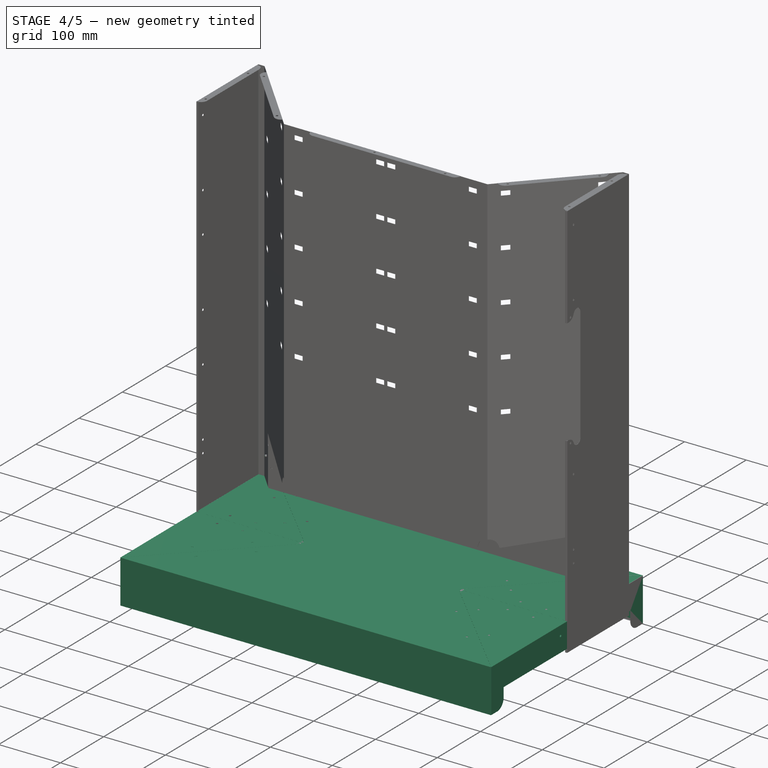
[diagram: stage 4 of 5 — iso view after this stage's code; geometry added in this stage tinted green]
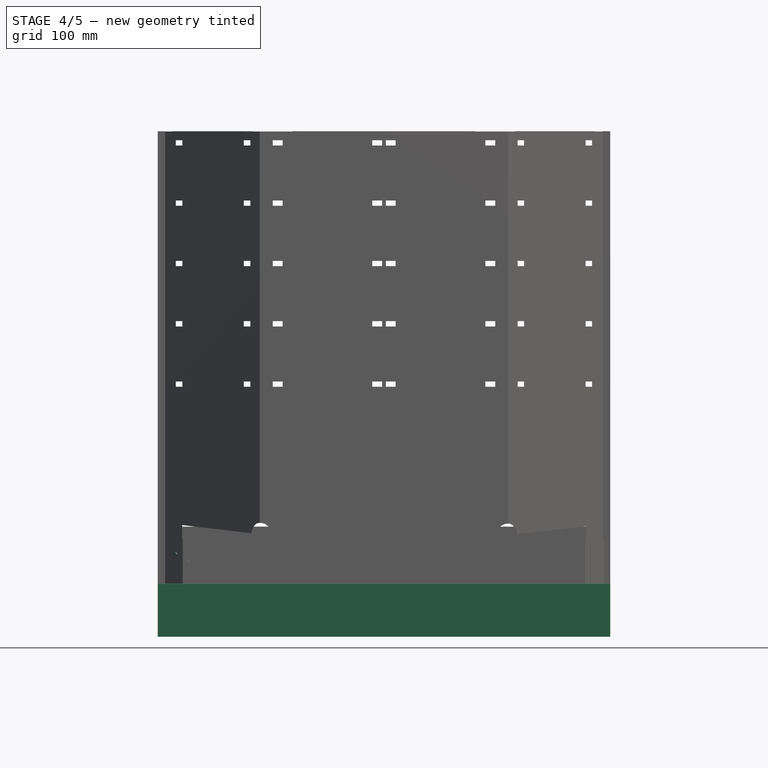
[diagram: stage 4 of 5 — front view after this stage's code; geometry added in this stage tinted green]
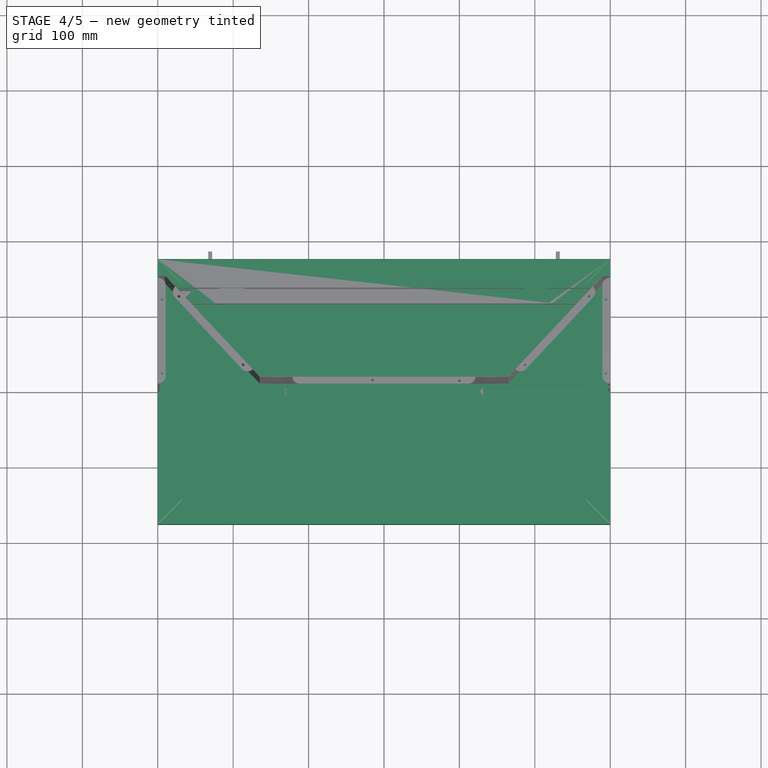
[diagram: stage 4 of 5 — top view after this stage's code; geometry added in this stage tinted green]
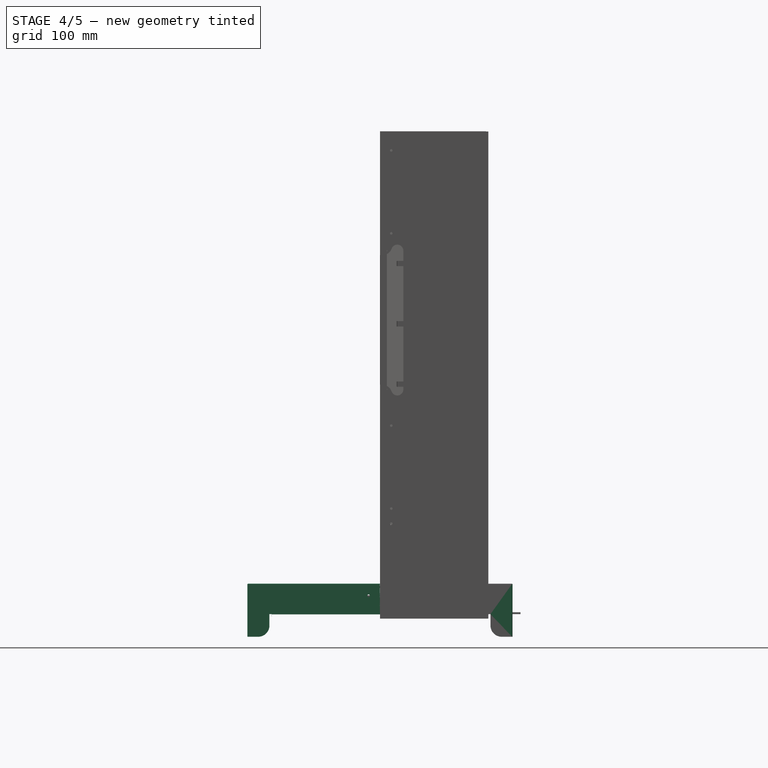
[diagram: stage 4 of 5 — right view after this stage's code; geometry added in this stage tinted green]
FEATURE [PartDesign::SubShapeBinder] Binder014
  BindCopyOnChange = 0
  BindMode = 0
  ClaimChildren = true
  Context = -> Body006 [Binder014.]
  Fuse = false
  MakeFace = true
  OffsetFill = false
  OffsetIntersection = false
  OffsetJoinType = 0
  OffsetOpenResult = false
  PartialLoad = false
  Relative = false
  Support = -> [Populate019]
  _Version = 2
FEATURE [PartDesign::Pad] Pad004
  Direction = (0,0,1)
  Length = 3
  Length2 = 10
  Profile = -> Binder014
  Type = 0
FEATURE [PartDesign::SubShapeBinder] Binder015
  BindCopyOnChange = 0
  BindMode = 0
  ClaimChildren = true
  Context = -> Body011 [Binder015.]
  Fuse = false
  MakeFace = true
  OffsetFill = false
  OffsetIntersection = false
  OffsetJoinType = 0
  OffsetOpenResult = false
  PartialLoad = false
  Relative = false
  Support = -> [Populate019]
  _Version = 2
FEATURE [PartDesign::Pad] Pad005
  Direction = (0,0,1)
  Length = 0.3
  Length2 = 10
  Profile = -> Binder015
  Reversed = true
  Type = 0
FEATURE [PartDesign::FeaturePython] Bend002  # WARN: FeaturePython — macro-defined, semantics opaque (R4)
  AutoMiter = true
  BaseFeature = -> Pad005
  BendType = 1
  LengthList = [3]
  LengthSpec = 1
  ReliefFactor = 0.7
  UseReliefFactor = false
  angle = 90
  baseObject = -> Pad005 [Edge33,Edge59]
  bendAList = [90]
  extend1 = 0
  extend2 = 0
  gap1 = 0
  gap2 = 0
  invert = false
  kfactor = 0.5
  length = 3
  maxExtendDist = 5
  minGap = 0.1
  minReliefGap = 1
  miterangle1 = 0
  miterangle2 = 0
  offset = 0
  radius = 0.1
  reliefType = 0
  reliefd = 1
  reliefw = 0.8
  sketchflip = false
  sketchinvert = false
  unfold = false
FEATURE [Part::FeaturePython] Mirror004  label="Mirror004 of Join003"  # WARN: FeaturePython — macro-defined, semantics opaque (R4)
  ExposePlacement = false
  FlipX = false
  FlipY = true
  FlipZ = false
  MarkerShape = 1
  MarkerSize = 0
  NumElements = 8
  Object = -> Join003
  ObjectTraversal = 0
  Type = lattice2Mirror.LatticeMirror
  isLattice = 1
FEATURE [Part::FeaturePython] Join004  # WARN: FeaturePython — macro-defined, semantics opaque (R4)
  ExposePlacement = false
  Interleave = false
  Links = -> [Mirror004,Join003]
  MarkerShape = 1
  MarkerSize = 0
  NumElements = 16
  Type = lattice2JoinArrays.JoinArrays
  isLattice = 1
FEATURE [Part::FeaturePython] Populate005  label="Populate Join004 with hole_3.4_mm_extrude"  # WARN: FeaturePython — macro-defined, semantics opaque (R4)
  Copying = 0
  ExposePlacement = false
  MarkerShape = 1
  MarkerSize = 0
  NumElements = 0
  Object = -> Extrude001
  OutputCompounding = 1
  PlacementsTo = -> Join004
  Referencing = 0
  Type = lattice2PopulateCopies.LatticePopulateCopies
  isLattice = 0
FEATURE [Sketcher::SketchObject] Sketch029  label="top_vert_holes"
  AttachmentOffset = pos=(-1,0,0) rot=(0,1,0;1.5708rad)
  ExternalGeometry = -> [Sketch027]
  FullyConstrained = true
  MapMode = 7
  Placement = pos=(175.538,0.683333,1e-16) rot=(0.852419,0.369717,0.369717;1.7298rad)
  Support = -> [Sketch027]
  sketch-geometry (5):
    g0: LineSegment StartX=-2.84e-14 StartY=1e-16 StartZ=0 EndX=25 EndY=11 EndZ=0
    g1: LineSegment StartX=25 StartY=11 StartZ=0 EndX=141.56 EndY=11 EndZ=0
    g2: LineSegment StartX=141.56 StartY=11 StartZ=0 EndX=166.56 EndY=-3.91e-14 EndZ=0
    g3: Circle CenterX=25 CenterY=11 CenterZ=0 NormalX=0 NormalY=0 NormalZ=1 AngleXU=0 Radius=1.7
    g4: Circle CenterX=141.56 CenterY=11 CenterZ=0 NormalX=0 NormalY=0 NormalZ=1 AngleXU=0 Radius=1.7
  constraints (12):
    c: Coincident(g0,g-3)
    c: Coincident(g0,g1)
    c: Horizontal(g1)
    c: Coincident(g1,g2)
    c: Coincident(g2,g-3)
    c: Equal(g2,g0)
    c: DistanceY(g0) = 11
    c: DistanceX(g0) = 25
    c: Coincident(g3,g0)
    c: Coincident(g4,g1)
    c: Equal(g4,g3)
    c: Diameter(g4) = 3.4
FEATURE [Part::FeaturePython] ArrayFromShape003  label="Array from top_vert_holes"  # WARN: FeaturePython — macro-defined, semantics opaque (R4)
  CompoundTraversal = 1
  ExposePlacement = false
  MarkerShape = 1
  MarkerSize = 0
  NumElements = 2
  OrientElementIndex = 0
  OrientMode = 1
  ShapeLink = -> Sketch029
  TranslateElementIndex = 0
  TranslateMode = 3
  Type = lattice2ArrayFromShape.LatticeArrayFromShape
  isLattice = 1
FEATURE [Part::FeaturePython] Mirror011  label="Mirror011 of Array from top_vert_holes"  # WARN: FeaturePython — macro-defined, semantics opaque (R4)
  ExposePlacement = false
  FlipX = true
  FlipY = false
  FlipZ = false
  MarkerShape = 1
  MarkerSize = 0
  NumElements = 2
  Object = -> ArrayFromShape003
  ObjectTraversal = 0
  Type = lattice2Mirror.LatticeMirror
  isLattice = 1
FEATURE [Part::FeaturePython] Join010  # WARN: FeaturePython — macro-defined, semantics opaque (R4)
  ExposePlacement = false
  Interleave = false
  Links = -> [Mirror011,ArrayFromShape003]
  MarkerShape = 1
  MarkerSize = 0
  NumElements = 4
  Type = lattice2JoinArrays.JoinArrays
  isLattice = 1
FEATURE [Part::FeaturePython] PolarArray002  label="2_elem_polar_array001"  # WARN: FeaturePython — macro-defined, semantics opaque (R4)
  Alignment = 0
  AttacherType = Attacher::AttachEngine3D
  CellStart = A1
  Count = 2
  DistributionLaw = 0
  EndInclusive = false
  ExposePlacement = false
  FlipX = false
  FlipZ = false
  GeneratorMode = 0
  MarkerShape = 1
  MarkerSize = 0
  NumElements = 2
  OrientMode = 2
  Radius = 50
  Reverse = false
  SpanEnd = 360
  SpanStart = 0
  Step = 180
  Type = lattice2PolarArray2.PolarArray
  UseArcRadius = false
  UseArcRange = 0
  VSGVersion = 1
  Values = 0.0 | 180.0
  ValuesSource = 2
  isLattice = 1
FEATURE [Part::FeaturePython] Populate021  label="Populate 2_elem_polar_array001 with Join010"  # WARN: FeaturePython — macro-defined, semantics opaque (R4)
  Copying = 0
  ExposePlacement = false
  MarkerShape = 1
  MarkerSize = 0
  NumElements = 8
  Object = -> Join010
  OutputCompounding = 0
  PlacementsTo = -> PolarArray002
  Referencing = 1
  Type = lattice2PopulateCopies.LatticePopulateCopies
  isLattice = 1
FEATURE [Part::FeaturePython] Populate022  label="Populate Populate 2_elem_polar_array001 with Join010 with hole_3.4_mm_extrude"  # WARN: FeaturePython — macro-defined, semantics opaque (R4)
  Copying = 0
  ExposePlacement = false
  MarkerShape = 1
  MarkerSize = 0
  NumElements = 0
  Object = -> Extrude001
  OutputCompounding = 1
  PlacementsTo = -> Populate021
  Referencing = 0
  Type = lattice2PopulateCopies.LatticePopulateCopies
  isLattice = 0
FEATURE [Part::Compound] Compound017  label="top_supplement_cut1"
  Links = -> [Populate005,Populate022]
FEATURE [PartDesign::Body] Body010  label="top_supplement_material_0.30ansi"
  Group = -> [Sketch026,Binder017,Pad006,Mirrored008,Bend003,Boolean008,Binder018]
  Origin = -> Origin011
  Tip = -> Boolean008
FEATURE [Sketcher::SketchObject] Sketch030
  ExternalGeometry = -> [Sketch012]
  FullyConstrained = true
  sketch-geometry (6):
    g0: LineSegment StartX=116.536 StartY=0 StartZ=0 EndX=121.536 EndY=0 EndZ=0
    g1: LineSegment StartX=121.536 StartY=0 StartZ=0 EndX=121.536 EndY=10 EndZ=0
    g2: LineSegment StartX=144.773 StartY=6.8907 StartZ=0 EndX=145.641 EndY=11.8147 EndZ=0
    g3: LineSegment StartX=145.641 StartY=11.8147 StartZ=0 EndX=135.793 EndY=13.5512 EndZ=0
    g4: LineSegment StartX=153.634 StartY=22.5935 StartZ=0 EndX=158.558 EndY=21.7253 EndZ=0
    g5: LineSegment StartX=158.558 StartY=21.7253 StartZ=0 EndX=160.295 EndY=31.5733 EndZ=0
  constraints (21):
    c: PointOnObject(g0,g-1)
    c: Horizontal(g0)
    c: Coincident(g0,g1)
    c: Vertical(g1)
    c: PointOnObject(g2,g-3)
    c: PointOnObject(g2,g-3)
    c: Coincident(g2,g3)
    c: Coincident(g4,g5)
    c: Perpendicular(g3,g2)
    c: Perpendicular(g5,g4)
    c: Equal(g0,g2)
    c: Equal(g2,g4)
    c: Equal(g1,g3)
    c: Equal(g3,g5)
    c: PointOnObject(g-3,g4)
    c: Perpendicular(g-3,g4)
    c: DistanceX(g0,g0) = 5
    c: DistanceY(g1,g1) = 10
    c: Distance(g-3,g4) = 11
    c: DistanceX(g0,g-3) = 22.0221
    c: Distance(g-3,g2) = 11.997
FEATURE [Part::FeaturePython] Placment006  # WARN: FeaturePython — macro-defined, semantics opaque (R4)
  AttacherType = Attacher::AttachEngine3D
  ExposePlacement = true
  MapMode = 50
  MarkerShape = 1
  MarkerSize = 5
  NumElements = 1
  Placement = pos=(121.536,0,0) rot=(-1,0,0;1.5708rad)
  Support = -> [Sketch030]
  Type = lattice2AttachablePlacement.AttachablePlacement
  isLattice = 1
FEATURE [Part::FeaturePython] PlacementSubsequence  # WARN: FeaturePython — macro-defined, semantics opaque (R4)
  Base = -> Placment006
  CycleMode = 0
  ExposePlacement = false
  MarkerShape = 1
  MarkerSize = 0
  NumElements = 3
  Placement = pos=(0,0,0) rot=(1,0,0;1.5708rad)
  Type = lattice2AttachablePlacement.AttachedPlacementSubsequence
  isLattice = 1
FEATURE [Part::FeaturePython] LinearArray004  # WARN: FeaturePython — macro-defined, semantics opaque (R4)
  Alignment = 0
  CellStart = A1
  Count = 2
  Dir = (0,1,0)
  DirIsDriven = true
  DistributionLaw = 0
  DrivenProperty = 1
  EndInclusive = true
  ExposePlacement = false
  GeneratorMode = 0
  MarkerShape = 1
  MarkerSize = 0
  NumElements = 2
  OrientMode = 0
  Placement = pos=(165,0,0) rot=(0,0,1;1.5708rad)
  Point = (0,0,0)
  PointIsDriven = true
  Reverse = false
  SpanEnd = 330
  SpanStart = 0
  Step = 330
  Type = lattice2LinearArray.LinearArray
  VSGVersion = 1
  Values = 0.0 | 330.0
  ValuesSource = 2
  isLattice = 1
  expr: .Placement.Base.x = SpanEnd / 2
FEATURE [Part::FeaturePython] Populate023  label="Populate 2_elem_polar_array001 with LinearArray004"  # WARN: FeaturePython — macro-defined, semantics opaque (R4)
  Copying = 0
  ExposePlacement = false
  MarkerShape = 1
  MarkerSize = 0
  NumElements = 4
  Object = -> LinearArray004
  OutputCompounding = 0
  PlacementsTo = -> PolarArray002
  Referencing = 1
  Type = lattice2PopulateCopies.LatticePopulateCopies
  isLattice = 1
FEATURE [Part::FeaturePython] Populate024  label="Populate Populate 2_elem_polar_array001 with LinearArray004 with PlacementSubsequence"  # WARN: FeaturePython — macro-defined, semantics opaque (R4)
  Copying = 0
  ExposePlacement = false
  MarkerShape = 1
  MarkerSize = 0
  NumElements = 12
  Object = -> PlacementSubsequence
  OutputCompounding = 0
  PlacementsTo = -> Populate023
  Referencing = 0
  Type = lattice2PopulateCopies.LatticePopulateCopies
  isLattice = 1
FEATURE [Part::FeaturePython] Populate025  label="Populate Populate Populate 2_elem_polar_array001 with LinearArray004 with PlacementSubsequence with hole_3.4_mm_extrude"  # WARN: FeaturePython — macro-defined, semantics opaque (R4)
  Copying = 0
  ExposePlacement = false
  MarkerShape = 1
  MarkerSize = 0
  NumElements = 0
  Object = -> Extrude001
  OutputCompounding = 1
  PlacementsTo = -> Populate024
  Referencing = 0
  Type = lattice2PopulateCopies.LatticePopulateCopies
  isLattice = 0
FEATURE [Sketcher::SketchObject] Sketch031  label="lamp_fix_base_sketch"
  ExternalGeometry = -> [Sketch012,Sketch030]
  FullyConstrained = true
  sketch-geometry (11):
    g0: LineSegment StartX=111.536 StartY=3 StartZ=0 EndX=141.041 EndY=3 EndZ=0
    g1: LineSegment StartX=141.041 StartY=3 StartZ=0 EndX=144.771 EndY=24.1563 EndZ=0
    g2: LineSegment StartX=144.771 StartY=24.1563 StartZ=0 EndX=172.196 EndY=19.3205 EndZ=0
    g3: LineSegment StartX=172.196 StartY=19.3205 StartZ=0 EndX=172.725 EndY=22.3205 EndZ=0
    g4: LineSegment StartX=172.725 StartY=22.3205 StartZ=0 EndX=142.346 EndY=27.6773 EndZ=0
    g5: LineSegment StartX=142.346 StartY=27.6773 StartZ=0 EndX=138.523 EndY=6 EndZ=0
    g6: LineSegment StartX=138.523 StartY=6 StartZ=0 EndX=111.536 EndY=6 EndZ=0
    g7: LineSegment StartX=111.536 StartY=6 StartZ=0 EndX=111.536 EndY=3 EndZ=0
    g8: LineSegment StartX=143.995 StartY=2.47906 StartZ=0 EndX=141.041 EndY=3 EndZ=0
    g9: LineSegment StartX=141.041 StartY=3 StartZ=0 EndX=141.041 EndY=0 EndZ=0
    g10: LineSegment StartX=144.771 StartY=24.1563 StartZ=0 EndX=141.817 EndY=24.6773 EndZ=0
  constraints (33):
    c: Horizontal(g0)
    c: Coincident(g0,g1)
    c: Coincident(g1,g2)
    c: Coincident(g2,g3)
    c: Coincident(g3,g4)
    c: Coincident(g4,g5)
    c: Coincident(g5,g6)
    c: Horizontal(g6)
    c: Coincident(g6,g7)
    c: Coincident(g7,g0)
    c: Vertical(g7)
    c: PointOnObject(g8,g-3)
    c: Coincident(g8,g0)
    c: Coincident(g8,g9)
    c: PointOnObject(g9,g-1)
    c: Vertical(g9)
    c: Equal(g9,g8)
    c: Perpendicular(g-3,g8)
    c: DistanceY(g9,g9) = 3
    c: Perpendicular(g1,g2)
    c: Perpendicular(g2,g3)
    c: Perpendicular(g4,g3)
    c: Perpendicular(g5,g4)
    c: DistanceY(g7,g7) = 3
    c: Parallel(g1,g-3)
    c: PointOnObject(g-3,g2)
    c: DistanceX(g-3,g3) = 25  'ledge_x_length'
    c: DistanceY(g3,g3) = 3
    c: Coincident(g10,g1)
    c: PointOnObject(g10,g5)
    c: Perpendicular(g5,g10)
    c: Equal(g10,g7)
    c: DistanceX(g0,g-4) = 10
FEATURE [PartDesign::SubShapeBinder] Binder022
  BindCopyOnChange = 0
  BindMode = 0
  ClaimChildren = true
  Context = -> Body012 [Binder022.]
  Fuse = false
  MakeFace = true
  OffsetFill = false
  OffsetIntersection = false
  OffsetJoinType = 0
  OffsetOpenResult = false
  PartialLoad = false
  Placement = pos=(0,0,0) rot=(1,0,0;1.5708rad)
  Relative = false
  Support = -> [Sketch031]
  _Version = 2
FEATURE [PartDesign::Pad] Pad007
  Direction = (0,-1,2e-16)
  Length = 10
  Length2 = 10
  Midplane = true
  Placement = pos=(0,0,0) rot=(1,0,0;1.5708rad)
  Profile = -> Binder022
  Type = 0
FEATURE [Part::FeaturePython] Populate026  label="Populate PlacementSubsequence with hole_3.4_mm_extrude"  # WARN: FeaturePython — macro-defined, semantics opaque (R4)
  Copying = 0
  ExposePlacement = false
  MarkerShape = 1
  MarkerSize = 0
  NumElements = 0
  Object = -> Extrude001
  OutputCompounding = 1
  PlacementsTo = -> PlacementSubsequence
  Referencing = 0
  Type = lattice2PopulateCopies.LatticePopulateCopies
  isLattice = 0
FEATURE [Part::Compound] Compound018  label="lamp_fix_cut1"
  Links = -> [Populate026]
FEATURE [PartDesign::Boolean] Boolean009
  BaseFeature = -> Pad007
  Group = -> [Compound018]
  Type = 1
FEATURE [PartDesign::Body] Body012  label="lamp_fix"
  Group = -> [Binder022,Pad007,Boolean009]
  Origin = -> Origin014
  Tip = -> Boolean009
FEATURE [Sketcher::SketchObject] Sketch032
  ExternalGeometry = -> [Placment003]
  FullyConstrained = true
  sketch-geometry (4):
    g0: ArcOfCircle CenterX=15 CenterY=1.2e-15 CenterZ=0 NormalX=0 NormalY=0 NormalZ=1 AngleXU=0 Radius=12.5 StartAngle=4.71239 EndAngle=7.85398
    g1: ArcOfCircle CenterX=-15 CenterY=1.2e-15 CenterZ=0 NormalX=0 NormalY=0 NormalZ=1 AngleXU=0 Radius=12.5 StartAngle=1.5708 EndAngle=4.71239
    g2: LineSegment StartX=15 StartY=12.5 StartZ=0 EndX=-15 EndY=12.5 EndZ=0
    g3: LineSegment StartX=-15 StartY=-12.5 StartZ=0 EndX=15 EndY=-12.5 EndZ=0
  constraints (8):
    c: Tangent(g0,g2) = -1.5708
    c: Tangent(g2,g1) = -1.5708
    c: Tangent(g1,g3) = -1.5708
    c: Tangent(g3,g0) = -1.5708
    c: Equal(g0,g1)
    c: Diameter(g0) = 25
    c: Coincident(g0,g-3)
    c: Symmetric(g1,g0,g-2)
FEATURE [PartDesign::SubShapeBinder] Binder023
  BindCopyOnChange = 0
  BindMode = 0
  ClaimChildren = true
  Context = -> Body013 [Binder023.]
  Fuse = false
  MakeFace = true
  OffsetFill = false
  OffsetIntersection = false
  OffsetJoinType = 0
  OffsetOpenResult = false
  PartialLoad = false
  Relative = false
  Support = -> [Sketch032]
  _Version = 2
FEATURE [PartDesign::Pad] Pad008
  Direction = (0,0,1)
  Length = 3
  Length2 = 10
  Profile = -> Binder023
  Type = 0
FEATURE [Part::FeaturePython] Populate027  label="Populate Join006 with hole_3.4_mm_extrude"  # WARN: FeaturePython — macro-defined, semantics opaque (R4)
  Copying = 0
  ExposePlacement = false
  MarkerShape = 1
  MarkerSize = 0
  NumElements = 0
  Object = -> Extrude001
  OutputCompounding = 1
  PlacementsTo = -> Join006
  Referencing = 0
  Type = lattice2PopulateCopies.LatticePopulateCopies
  isLattice = 0
FEATURE [PartDesign::Boolean] Boolean010
  BaseFeature = -> Pad008
  Group = -> [Populate027]
  Type = 1
FEATURE [Part::Compound] Compound019  label="bottom_PP_cut1"
  Links = -> [Fusion002]
FEATURE [Part::Compound] Compound020  label="bottom_composit_cut1"
  Links = -> [Fusion002]
FEATURE [PartDesign::Boolean] Boolean011
  BaseFeature = -> Pad004
  Group = -> [Compound019]
  Refine = true
  Type = 1
FEATURE [PartDesign::Body] Body006  label="bottomPP"
  Group = -> [Binder014,Pad004,Boolean011]
  Origin = -> Origin007
  Placement = pos=(0,0,-3) rot=(0,0,1;0rad)
  Tip = -> Boolean011
FEATURE [PartDesign::Boolean] Boolean012
  BaseFeature = -> Bend002
  Group = -> [Compound020]
  Type = 1
FEATURE [PartDesign::Body] Body011  label="bottom_composit_material_0.30ansi"
  Group = -> [Binder015,Pad005,Bend002,Boolean012]
  Origin = -> Origin012
  Placement = pos=(0,0,-3) rot=(0,0,1;0rad)
  Tip = -> Boolean012
FEATURE [App::Part] Part001  label="bottom"
  Group = -> [Body006,Body011]
  Origin = -> Origin013
FEATURE [Part::Part2DObjectPython] Placment007  # Draft 2D object (typed FeaturePython)
  AttacherType = Attacher::AttachEngine3D
  AttachmentOffset = pos=(0,105,0) rot=(0,1,0;4.71239rad)
  ExposePlacement = true
  MapMode = 7
  MarkerShape = 1
  MarkerSize = 20
  NumElements = 1
  Placement = pos=(164.614,9.5,105) rot=(-0.293211,0.676028,0.676028;3.71203rad)
  Support = -> [Binder]
  Type = lattice2AttachablePlacement.AttachablePlacement
  isLattice = 1
FEATURE [Sketcher::SketchObject] Sketch033
  ExternalGeometry = -> [Binder011,Sketch007]
  FullyConstrained = true
  MapMode = 2
  Placement = pos=(164.614,9.5,105) rot=(-0.293211,0.676028,0.676028;3.71203rad)
  Support = -> [Placment007]
  sketch-geometry (7):
    g0: LineSegment StartX=-150.565 StartY=0 StartZ=0 EndX=-150.565 EndY=11.5539 EndZ=0
    g1: LineSegment StartX=-150.565 StartY=11.5539 StartZ=0 EndX=-17.8174 EndY=1.36726 EndZ=0
    g2: LineSegment StartX=0.05 StartY=0 StartZ=0 EndX=-150.565 EndY=0 EndZ=0
    g3: ArcOfCircle CenterX=-1 CenterY=0 CenterZ=0 NormalX=0 NormalY=0 NormalZ=1 AngleXU=0 Radius=15 StartAngle=1.5708 EndAngle=2.94255
    g4: ArcOfCircle CenterX=-17.6644 CenterY=3.3614 CenterZ=0 NormalX=0 NormalY=0 NormalZ=1 AngleXU=0 Radius=2 StartAngle=4.6358 EndAngle=6.08414
    g5: LineSegment StartX=-1 StartY=15 StartZ=0 EndX=0.05 EndY=15 EndZ=0
    g6: LineSegment StartX=0.05 StartY=0 StartZ=0 EndX=0.05 EndY=15 EndZ=0
  constraints (20):
    c: PointOnObject(g0,g-1)
    c: PointOnObject(g0,g-3)
    c: Vertical(g0)
    c: Coincident(g0,g1)
    c: Coincident(g2,g0)
    c: Vertical(g-4,g0)
    c: PointOnObject(g3,g-1)
    c: Tangent(g4,g3) = 1.5708
    c: Tangent(g1,g4) = -1.5708
    c: Tangent(g5,g3) = 1.5708
    c: Horizontal(g5)
    c: Radius(g3) = 15
    c: PointOnObject(g1,g-3)
    c: DistanceX(g3) = -1
    c: Radius(g4) = 2
    c: Coincident(g2,g6)
    c: PointOnObject(g-3,g2)
    c: Vertical(g6)
    c: Coincident(g5,g6)
    c: DistanceX(g5) = 0.05
FEATURE [Part::FeaturePython] Mirror014  label="Mirror014 of Placment007"  # WARN: FeaturePython — macro-defined, semantics opaque (R4)
  ExposePlacement = false
  FlipX = true
  FlipY = false
  FlipZ = false
  MarkerShape = 1
  MarkerSize = 20
  NumElements = 1
  Object = -> Placment007
  ObjectTraversal = 0
  Type = lattice2Mirror.LatticeMirror
  isLattice = 1
FEATURE [Sketcher::SketchObject] Sketch034
  ExternalGeometry = -> [Binder011,Sketch007]
  FullyConstrained = true
  MapMode = 6
  Placement = pos=(-164.614,9.5,105) rot=(0.293211,0.676028,0.676028;2.57116rad)
  Support = -> [Mirror014]
  sketch-geometry (7):
    g0: LineSegment StartX=17.8108 StartY=2.44068 StartZ=0 EndX=150.565 EndY=13.1789 EndZ=0
    g1: LineSegment StartX=150.565 StartY=13.1789 StartZ=0 EndX=150.565 EndY=0 EndZ=0
    g2: LineSegment StartX=150.565 StartY=0 StartZ=0 EndX=-0.05 EndY=0 EndZ=0
    g3: LineSegment StartX=-0.05 StartY=0 StartZ=0 EndX=-0.05 EndY=16 EndZ=0
    g4: LineSegment StartX=-0.05 StartY=16 StartZ=0 EndX=1 EndY=16 EndZ=0
    g5: ArcOfCircle CenterX=1 CenterY=1 CenterZ=0 NormalX=0 NormalY=0 NormalZ=1 AngleXU=0 Radius=15 StartAngle=0.20341 EndAngle=1.5708
    g6: ArcOfCircle CenterX=17.6495 CenterY=4.43417 CenterZ=0 NormalX=0 NormalY=0 NormalZ=1 AngleXU=0 Radius=2 StartAngle=3.345 EndAngle=4.7931
  constraints (20):
    c: PointOnObject(g0,g-3)
    c: PointOnObject(g0,g-3)
    c: Coincident(g0,g1)
    c: PointOnObject(g1,g-1)
    c: Vertical(g1)
    c: Coincident(g1,g2)
    c: Coincident(g3,g4)
    c: Horizontal(g4)
    c: Tangent(g6,g0) = -1.5708
    c: Tangent(g6,g5) = 1.5708
    c: Horizontal(g5,g-3)
    c: Radius(g5) = 15
    c: Tangent(g5,g4) = 1.5708
    c: Radius(g6) = 2
    c: Vertical(g-4,g1)
    c: DistanceX(g4) = 1
    c: Coincident(g2,g3)
    c: PointOnObject(g2,g-1)
    c: Vertical(g3)
    c: DistanceX(g2) = -0.05
FEATURE [Sketcher::SketchObject] Sketch035
  ExternalGeometry = -> [Binder011]
  FullyConstrained = true
  MapMode = 5
  Placement = pos=(0,0,0) rot=(1,0,0;1.5708rad)
  Support = -> [XZ_Plane]
  sketch-geometry (10):
    g0: LineSegment StartX=-164.414 StartY=121 StartZ=0 EndX=-165.414 EndY=121 EndZ=0
    g1: LineSegment StartX=-165.414 StartY=121 StartZ=0 EndX=-165.414 EndY=105 EndZ=0
    g2: LineSegment StartX=-165.414 StartY=105 StartZ=0 EndX=165.414 EndY=105 EndZ=0
    g3: LineSegment StartX=165.414 StartY=105 StartZ=0 EndX=165.414 EndY=120 EndZ=0
    g4: LineSegment StartX=165.414 StartY=120 StartZ=0 EndX=164.414 EndY=120 EndZ=0
    g5: ArcOfCircle CenterX=-147.526 CenterY=107.948 CenterZ=0 NormalX=0 NormalY=0 NormalZ=1 AngleXU=0 Radius=2 StartAngle=3.25644 EndAngle=4.70935
    g6: ArcOfCircle CenterX=147.538 CenterY=107.052 CenterZ=0 NormalX=0 NormalY=0 NormalZ=1 AngleXU=0 Radius=2 StartAngle=4.70935 EndAngle=6.16219
    g7: LineSegment StartX=147.532 StartY=105.052 StartZ=0 EndX=-147.532 EndY=105.948 EndZ=0
    g8: ArcOfCircle CenterX=-164.414 CenterY=106 CenterZ=0 NormalX=0 NormalY=0 NormalZ=1 AngleXU=0 Radius=15 StartAngle=0.114847 EndAngle=1.5708
    g9: ArcOfCircle CenterX=164.414 CenterY=105 CenterZ=0 NormalX=0 NormalY=0 NormalZ=1 AngleXU=0 Radius=15 StartAngle=1.5708 EndAngle=3.0206
  constraints (28):
    c: Horizontal(g0)
    c: Coincident(g0,g1)
    c: Coincident(g1,g2)
    c: Horizontal(g2)
    c: Coincident(g2,g3)
    c: Vertical(g3)
    c: Coincident(g3,g4)
    c: Horizontal(g4)
    c: PointOnObject(g-3,g2)
    c: Coincident(g7,g6)
    c: Tangent(g6,g-3) = 1.5708
    c: Tangent(g7,g5) = 1.5708
    c: PointOnObject(g5,g-3)
    c: Equal(g5,g6)
    c: Radius(g5) = 2
    c: DistanceX(g-3,g0) = 0.2
    c: DistanceX(g4,g-3) = 0.2
    c: DistanceX(g0,g0) = 1
    c: Vertical(g1)
    c: Horizontal(g8,g-3)
    c: Tangent(g8,g0) = -1.5708
    c: Tangent(g8,g5) = 1.5708
    c: Equal(g4,g0)
    c: Tangent(g9,g4) = -1.5708
    c: Horizontal(g9,g-3)
    c: Tangent(g9,g6) = 1.5708
    c: Equal(g9,g8)
    c: Radius(g8) = 15
FEATURE [Sketcher::SketchObject] Sketch036
  FullyConstrained = false
  MapMode = 5
  Placement = pos=(0,0,0) rot=(1,0,0;1.5708rad)
  Support = -> [XZ_Plane016]
  sketch-geometry (2):
    g0: LineSegment StartX=-1e-16 StartY=17.8197 StartZ=0 EndX=-1.7062e-12 EndY=1.7053e-12 EndZ=0
    g1: LineSegment StartX=-1.7062e-12 StartY=1.7053e-12 StartZ=0 EndX=17.8197 EndY=-1e-16 EndZ=0
  constraints (5):
    c: PointOnObject(g0,g-2)
    c: Coincident(g0,g-1)
    c: Coincident(g1,g0)
    c: PointOnObject(g1,g-1)
    c: Equal(g1,g0)
FEATURE [Sketcher::SketchObject] Sketch037
  FullyConstrained = true
  MapMode = 5
  Support = -> [XY_Plane016]
  sketch-geometry (2):
    g0: Circle CenterX=8.2 CenterY=0 CenterZ=0 NormalX=0 NormalY=0 NormalZ=1 AngleXU=0 Radius=1.7
    g1: Circle CenterX=19.2 CenterY=0 CenterZ=0 NormalX=0 NormalY=0 NormalZ=1 AngleXU=0 Radius=1.7
  constraints (6):
    c: PointOnObject(g0,g-1)
    c: PointOnObject(g1,g-1)
    c: Equal(g1,g0)
    c: Diameter(g0) = 3.4
    c: DistanceX(g0) = 8.2
    c: DistanceX(g1) = 19.2
FEATURE [Sketcher::SketchObject] Sketch038
  FullyConstrained = true
  MapMode = 5
  Placement = pos=(0,0,0) rot=(0.57735,0.57735,0.57735;2.0944rad)
  Support = -> [YZ_Plane016]
  sketch-geometry (2):
    g0: Circle CenterX=0 CenterY=8.2 CenterZ=0 NormalX=0 NormalY=0 NormalZ=1 AngleXU=0 Radius=1.7
    g1: Circle CenterX=0 CenterY=19.2 CenterZ=0 NormalX=0 NormalY=0 NormalZ=1 AngleXU=0 Radius=1.7
  constraints (6):
    c: PointOnObject(g0,g-2)
    c: PointOnObject(g1,g-2)
    c: DistanceY(g0) = 8.2
    c: DistanceY(g1) = 19.2
    c: Equal(g0,g1)
    c: Diameter(g0) = 3.4
FEATURE [PartDesign::Body] Body014  label="Body"
  Group = -> [Sketch036,Sketch037,Sketch038]
  Origin = -> Origin016
FEATURE [Sketcher::SketchObject] Sketch039  label="electric_shield_jamb_sketch"
  ExternalGeometry = -> [Placment004,Sketch020]
  FullyConstrained = true
  sketch-geometry (3):
    g0: LineSegment StartX=0 StartY=80 StartZ=0 EndX=72 EndY=80 EndZ=0
    g1: LineSegment StartX=72 StartY=80 StartZ=0 EndX=72 EndY=98 EndZ=0
    g2: LineSegment StartX=72 StartY=98 StartZ=0 EndX=0 EndY=98 EndZ=0
  constraints (10):
    c: PointOnObject(g0,g-2)
    c: Horizontal(g0)
    c: Coincident(g1,g0)
    c: Vertical(g1)
    c: Coincident(g2,g1)
    c: PointOnObject(g2,g-2)
    c: Horizontal(g2)
    c: DistanceY(g0,g-4) = 5
    c: DistanceY(g-3,g1) = 6
    c: DistanceX(g-5,g0) = 2
FEATURE [Part::Mirroring] Part__Mirroring005  label="electric_shield_jamb_sketch (Mirror #6)"
  Base = (0,0,0)
  Normal = (1,0,0)
  Source = -> Sketch039
FEATURE [Part::Compound] Compound021  label="electric_shield_jamb_2d"
  Links = -> [Sketch039,Part__Mirroring005]
FEATURE [PartDesign::SubShapeBinder] Binder025
  BindCopyOnChange = 0
  BindMode = 0
  ClaimChildren = true
  Context = -> Body015 [Binder025.]
  Fuse = false
  MakeFace = true
  OffsetFill = false
  OffsetIntersection = false
  OffsetJoinType = 0
  OffsetOpenResult = false
  PartialLoad = false
  Relative = false
  Support = -> [Compound021]
  _Version = 2
FEATURE [PartDesign::Pad] Pad009
  Direction = (0,0,1)
  Length = 3
  Length2 = 10
  Profile = -> Binder025
  Type = 0
FEATURE [PartDesign::FeaturePython] Extend001  # WARN: FeaturePython — macro-defined, semantics opaque (R4)
  BaseFeature = -> BaseBend004
  Offset = 0.02
  Refine = true
  UseSubtraction = false
  baseObject = -> BaseBend004 [Face1]
  gap1 = 0
  gap2 = 0
  length = 0
FEATURE [PartDesign::FeaturePython] Bend004  # WARN: FeaturePython — macro-defined, semantics opaque (R4)
  AutoMiter = false
  BaseFeature = -> Extend001
  BendType = 0
  LengthList = [175.725]
  LengthSpec = 1
  ReliefFactor = 0.7
  UseReliefFactor = false
  angle = 90
  baseObject = -> Extend001 [Edge30,Edge43,Edge4]
  bendAList = [90]
  extend1 = 0
  extend2 = 0
  gap1 = 0
  gap2 = 0
  invert = false
  kfactor = 0.5
  length = 175.725
  maxExtendDist = 5
  minGap = 0.1
  minReliefGap = 1
  miterangle1 = 0
  miterangle2 = 0
  offset = 0
  radius = 0.1
  reliefType = 0
  reliefd = 1
  reliefw = 0.8
  sketchflip = false
  sketchinvert = false
  unfold = false
  expr: length = <<cap_outer1_sketch>>.Constraints.length
  expr: radius = BaseBend004.radius
FEATURE [PartDesign::Pocket] Pocket010
  BaseFeature = -> Bend004
  Direction = (0,0,-1)
  Length = 5
  Length2 = 5
  Profile = -> Binder027
  Reversed = true
  Type = 0
FEATURE [PartDesign::Pocket] Pocket011
  BaseFeature = -> Pocket010
  Direction = (0,0,-1)
  Length = 5
  Length2 = 5
  Profile = -> Sketch043
  ReferenceAxis = -> Sketch043 [N_Axis]
  Reversed = true
  Type = 0
FEATURE [PartDesign::Mirrored] Mirrored009
  BaseFeature = -> Pocket011
  MirrorPlane = -> YZ_Plane024
  Originals = -> [Pocket010,Pocket011]
  Refine = true
FEATURE [Part::FeaturePython] Placment011  # WARN: FeaturePython — macro-defined, semantics opaque (R4)
  AttacherType = Attacher::AttachEngine3D
  AttachmentOffset = pos=(-3,0,11) rot=(0.57735,0.57735,0.57735;2.0944rad)
  ExposePlacement = true
  MapMode = 14
  MarkerShape = 1
  MarkerSize = 50
  NumElements = 1
  Placement = pos=(277.207,125.409,0) rot=(0.344821,0.873039,0.344821;4.57703rad)
  Support = -> [Sketch049,Sketch001]
  Type = lattice2AttachablePlacement.AttachablePlacement
  isLattice = 1
FEATURE [Part::FeaturePython] LinearArray007  # WARN: FeaturePython — macro-defined, semantics opaque (R4)
  Alignment = 0
  CellStart = A1
  Count = 2
  Dir = (1,0,0)
  DirIsDriven = true
  DistributionLaw = 0
  DrivenProperty = 1
  EndInclusive = true
  ExposePlacement = false
  GeneratorMode = 0
  MarkerShape = 1
  MarkerSize = 0
  NumElements = 2
  OrientMode = 1
  Point = (0,0,0)
  PointIsDriven = true
  Reverse = false
  SpanEnd = 80
  SpanStart = 10
  Step = 70
  Type = lattice2LinearArray.LinearArray
  VSGVersion = 1
  Values = 10.0 | 80.0
  ValuesSource = 2
  isLattice = 1
FEATURE [Part::FeaturePython] Populate036  label="Populate Placment011 with LinearArray007"  # WARN: FeaturePython — macro-defined, semantics opaque (R4)
  Copying = 0
  ExposePlacement = false
  MarkerShape = 1
  MarkerSize = 0
  NumElements = 2
  Object = -> LinearArray007
  OutputCompounding = 0
  PlacementsTo = -> Placment011
  Referencing = 0
  Type = lattice2PopulateCopies.LatticePopulateCopies
  isLattice = 1
FEATURE [PartDesign::CoordinateSystem] Local_CS001
  AttacherType = Attacher::AttachEngine3D
  MapMode = 1
  Placement = pos=(266.917,133.558,0) rot=(0,0.707107,0.707107;3.14159rad)
FEATURE [Part::FeaturePython] Mirror017  label="Mirror017 of Populate Placment011 with LinearArray007"  # WARN: FeaturePython — macro-defined, semantics opaque (R4)
  ExposePlacement = false
  FlipX = true
  FlipY = false
  FlipZ = false
  MarkerShape = 1
  MarkerSize = 0
  NumElements = 2
  Object = -> Populate036
  ObjectTraversal = 0
  Type = lattice2Mirror.LatticeMirror
  isLattice = 1
FEATURE [Part::FeaturePython] Join017  # WARN: FeaturePython — macro-defined, semantics opaque (R4)
  ExposePlacement = false
  Interleave = false
  Links = -> [Populate036,Mirror017]
  MarkerShape = 1
  MarkerSize = 0
  NumElements = 4
  Type = lattice2JoinArrays.JoinArrays
  isLattice = 1
FEATURE [Part::FeaturePython] Populate040  label="Populate Join017 with hole_3.4_mm_extrude"  # WARN: FeaturePython — macro-defined, semantics opaque (R4)
  Copying = 0
  ExposePlacement = false
  MarkerShape = 1
  MarkerSize = 0
  NumElements = 0
  Object = -> Extrude001
  OutputCompounding = 1
  PlacementsTo = -> Join017
  Referencing = 0
  Type = lattice2PopulateCopies.LatticePopulateCopies
  isLattice = 0
FEATURE [PartDesign::Boolean] Boolean015
  BaseFeature = -> Mirrored009
  Group = -> [Compound029]
  Refine = true
  Type = 0
FEATURE [PartDesign::Body] Body016  label="screw_pocket"
  Group = -> [Sketch040,Pad010,PolarPattern001]
  Origin = -> Origin018
  Tip = -> PolarPattern001
FEATURE [Part::FeaturePython] Populate031  label="Populate electric_shield_holes_top with screw_pocket"  # WARN: FeaturePython — macro-defined, semantics opaque (R4)
  Copying = 0
  ExposePlacement = false
  MarkerShape = 1
  MarkerSize = 0
  NumElements = 0
  Object = -> Body016
  OutputCompounding = 1
  Placement = pos=(0,0,3) rot=(0,0,1;0rad)
  PlacementsTo = -> Join008
  Referencing = 0
  Type = lattice2PopulateCopies.LatticePopulateCopies
  isLattice = 0
FEATURE [Part::FeaturePython] Populate032  label="Populate electric_shield_holes_top with hole_3.4_mm_extrude"  # WARN: FeaturePython — macro-defined, semantics opaque (R4)
  Copying = 0
  ExposePlacement = false
  MarkerShape = 1
  MarkerSize = 0
  NumElements = 0
  Object = -> Cylinder001
  OutputCompounding = 1
  PlacementsTo = -> Join008
  Referencing = 0
  Type = lattice2PopulateCopies.LatticePopulateCopies
  isLattice = 0
FEATURE [Part::MultiFuse] Fusion003  label="electric_shield_jamb_cut1"
  Shapes = -> [Populate032,Populate031,Populate013]
FEATURE [PartDesign::Boolean] Boolean013
  BaseFeature = -> Pad009
  Group = -> [Fusion003]
  Type = 1
FEATURE [PartDesign::Boolean] Boolean001
  BaseFeature = -> BaseFeature
  Group = -> [Compound009]
  Type = 1
FEATURE [PartDesign::Boolean] Boolean017
  BaseFeature = -> Boolean001
  Group = -> [Compound025]
  Type = 0
FEATURE [PartDesign::Boolean] Boolean014
  BaseFeature = -> Boolean015
  Group = -> [Compound034]
  Type = 1
FEATURE [PartDesign::FeatureAdditivePython] PDW_Common_Add  # link proxy (typed FeaturePython)
  BaseFeature = -> Boolean014
  Body = Body017
  ClaimChildren = false
  EditPlacementAdjustments = false
  Enabled = 1
  LinkedObject = -> Boolean014
  MeshTolerance = 0.1
  PatternBase = -> Boolean015
  PatternBaseOffset = 0
  PatternBaseScale = 1
  PatternBaseScaleXYZ = (1,1,1)
  PatternOffsetCut = false
  PatternOffsetIntersection = false
  PatternOffsetJoin = 0
  PatternOffsetMode = 0
  PatternOffsetSelfIntersection = false
  PatternOperation = 3
  PatternOperationDefault = Common
  PatternScaleCut = false
  PatternShapeOffset = 0
  PatternShapeScale = 1
  PatternShapeScaleXYZ = (1,1,1)
  PatternTool = -> Boolean014
  PatternToolOffset = 0
  PatternToolScale = 1
  PatternToolScaleXYZ = (1,1,1)
  RefineMesh = true
  ShapeManagement = 0
  ShowMeshProps = false
  ShowOffsetProps = false
  ShowScaleProps = false
  ShowWarnings = true
  TipBase = -> Boolean015
  TipBaseOffset = 0
  TipBaseScale = 1
  TipBaseScaleXYZ = (1,1,1)
  TipOffsetCut = false
  TipOffsetIntersection = false
  TipOffsetJoin = 0
  TipOffsetMode = 0
  TipOffsetSelfIntersection = false
  TipOperation = 2
  TipOperationDefault = Common
  TipScaleCut = false
  TipShapeOffset = 0
  TipShapeScale = 1
  TipShapeScaleXYZ = (1,1,1)
  TipTool = -> Boolean014
  TipToolOffset = 0
  TipToolScale = 1
  TipToolScaleXYZ = (1,1,1)
  Type = Additive
  UsePatternBaseAddSubShape = false
  UsePatternToolAddSubShape = true
  UseTipBaseAddSubShape = false
  UseTipToolAddSubShape = true
  Version = 0.2023.08.13
FEATURE [PartDesign::PolarPattern] PolarPattern
  Angle = 360
  Axis = -> Z_Axis024
  BaseFeature = -> PDW_Common_Add
  Mode = 0
  Occurrences = 2
  Offset = 120
  Originals = -> [PDW_Common_Add]
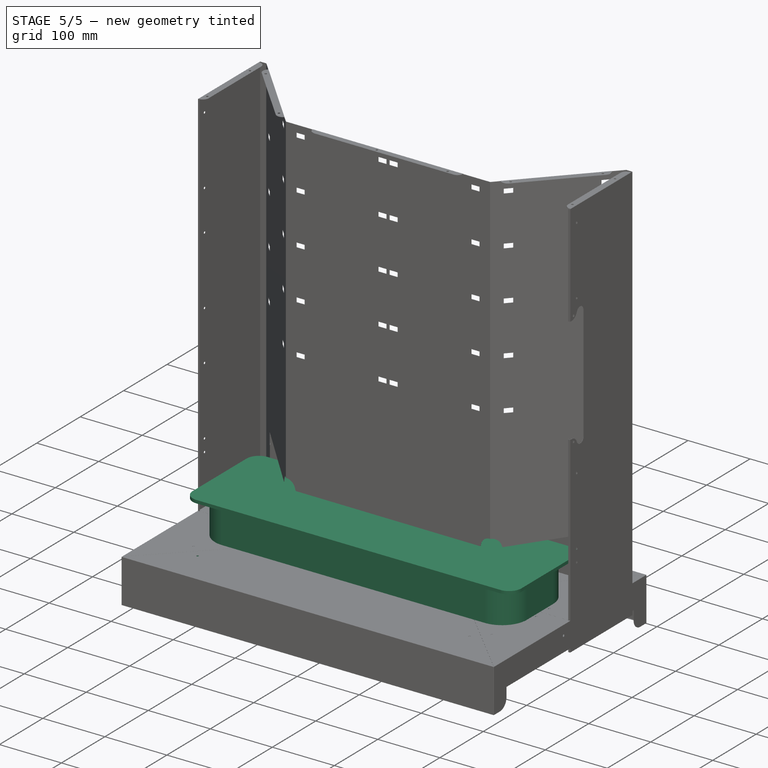
[diagram: stage 5 of 5 — iso view after this stage's code; geometry added in this stage tinted green]
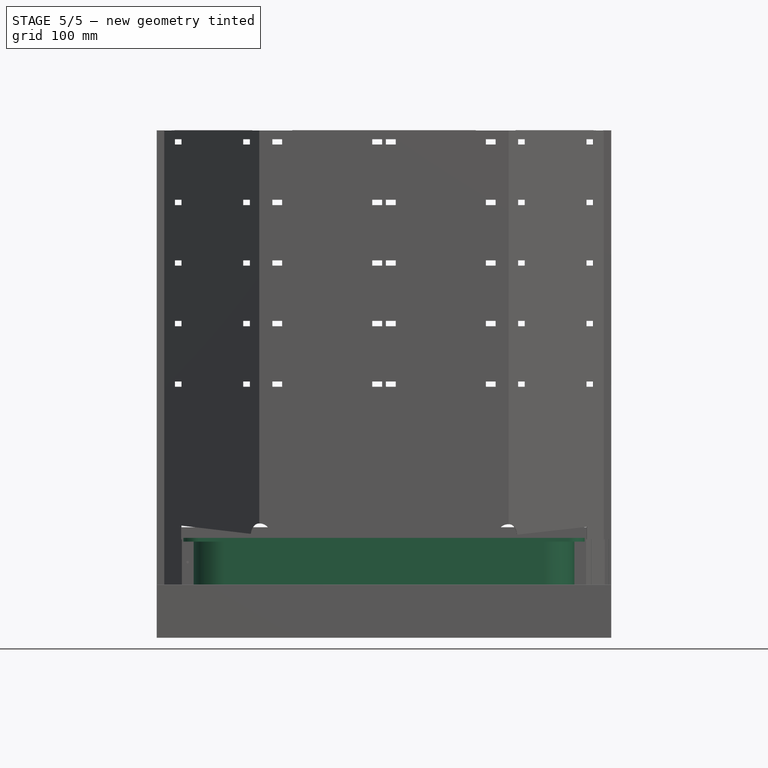
[diagram: stage 5 of 5 — front view after this stage's code; geometry added in this stage tinted green]
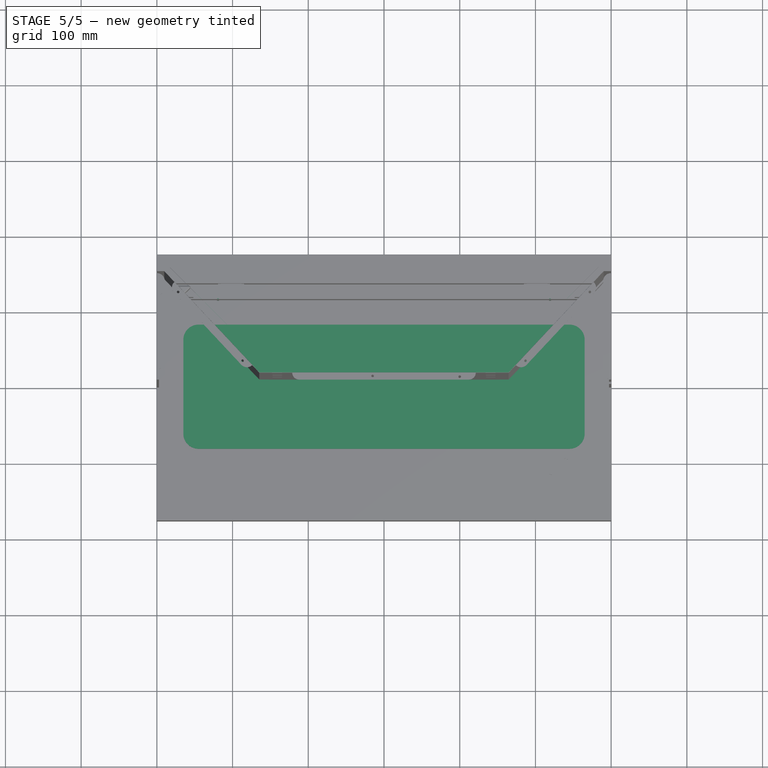
[diagram: stage 5 of 5 — top view after this stage's code; geometry added in this stage tinted green]
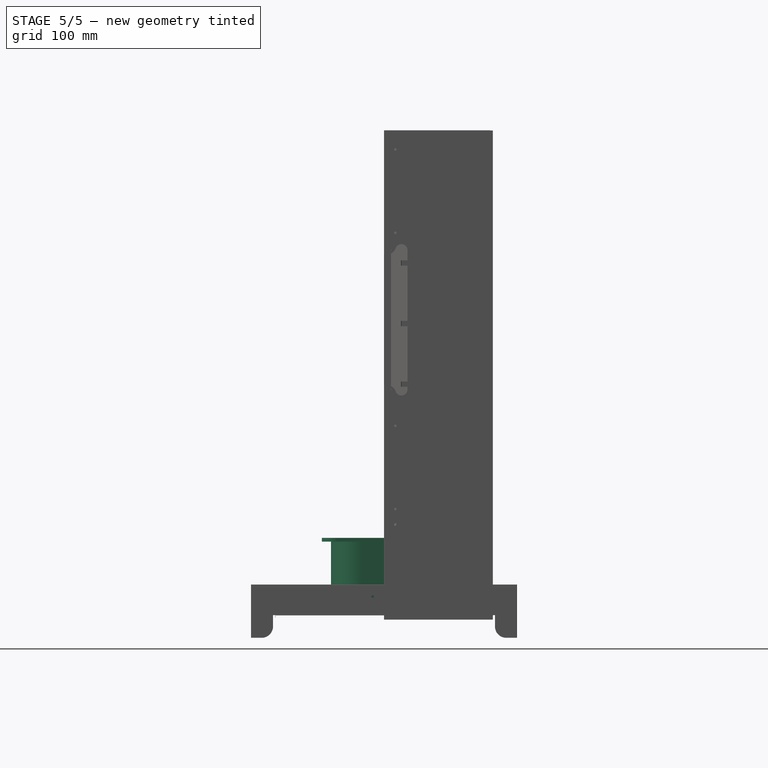
[diagram: stage 5 of 5 — right view after this stage's code; geometry added in this stage tinted green]
FEATURE [Sketcher::SketchObject] Sketch012  label="top_base_sketch"
  ExternalGeometry = -> [Sketch001]
  FullyConstrained = true
  sketch-geometry (3):
    g0: LineSegment StartX=143.558 StartY=0 StartZ=0 EndX=147.725 EndY=23.6354 EndZ=0
    g1: LineSegment StartX=143.558 StartY=0 StartZ=0 EndX=0 EndY=0 EndZ=0
    g2: LineSegment StartX=0 StartY=0 StartZ=0 EndX=0 EndY=143.558 EndZ=0
  constraints (10):
    c: Coincident(g1,g-1)
    c: Coincident(g2,g1)
    c: PointOnObject(g2,g-2)
    c: Equal(g1,g2)
    c: Horizontal(g2,g-3)
    c: PointOnObject(g1,g-1)
    c: Coincident(g0,g1)
    c: Angle(g0,g1) = 1.74533  'angle'
    c: Distance(g0) = 24
    c: DistanceX(g0) = 147.725  'length_x'
FEATURE [Part::Mirroring] Part__Mirroring001  label="Sketch012 (Mirror #2)"
  Base = (0,0,0)
  Normal = (1,0,0)
  Source = -> Sketch012
FEATURE [Part::Compound] Compound006
  Links = -> [Part__Mirroring001,Sketch012]
FEATURE [PartDesign::SubShapeBinder] Binder007
  BindCopyOnChange = 0
  BindMode = 0
  ClaimChildren = true
  Context = -> Part [Body002.Binder007.]
  Fuse = false
  MakeFace = true
  OffsetFill = false
  OffsetIntersection = false
  OffsetJoinType = 0
  OffsetOpenResult = false
  PartialLoad = false
  Relative = false
  Support = -> [Compound006]
  _Version = 2
FEATURE [PartDesign::FeaturePython] BaseBend001  # WARN: FeaturePython — macro-defined, semantics opaque (R4)
  BendSide = 0
  BendSketch = -> Binder007
  MidPlane = true
  Placement = pos=(0,0,0) rot=(0.57735,0.57735,0.57735;2.0944rad)
  Reverse = false
  length = 600.168
  radius = 0.1
  thickness = 0.3
  expr: length = <<face_main_sketch>>.Constraints.width
FEATURE [PartDesign::SubShapeBinder] Binder008
  BindCopyOnChange = 0
  BindMode = 0
  ClaimChildren = true
  Context = -> Part [Body002.Binder008.]
  Fuse = false
  MakeFace = true
  OffsetFill = false
  OffsetIntersection = false
  OffsetJoinType = 0
  OffsetOpenResult = false
  PartialLoad = false
  Relative = true
  Support = -> [Body[BaseBend.Binder.Compound.Part__Mirroring.Compound004.Sketch001.]]
  _Version = 2
FEATURE [PartDesign::Mirrored] Mirrored003
  MirrorPlane = -> YZ_Plane002
  Placement = pos=(0,0,0) rot=(0.57735,0.57735,0.57735;2.0944rad)
FEATURE [PartDesign::Mirrored] Mirrored004
  MirrorPlane = -> XZ_Plane002
  Placement = pos=(0,0,0) rot=(0.57735,0.57735,0.57735;2.0944rad)
FEATURE [PartDesign::Body] Body003  label="dummy_body"
  Origin = -> Origin004
FEATURE [Part::Extrusion] Extrude002  label="dropper_base_extrude"
  Base = -> Binder005
  Dir = (0,0,1)
  DirMode = 2
  FaceMakerClass = Part::FaceMakerBullseye
  LengthFwd = 10
  LengthRev = 0
  Solid = false
  Symmetric = false
FEATURE [Part::FeaturePython] Populate006  label="Populate Join005 with dropper_base_extrude"  # WARN: FeaturePython — macro-defined, semantics opaque (R4)
  Copying = 0
  ExposePlacement = false
  MarkerShape = 1
  MarkerSize = 0
  NumElements = 0
  Object = -> Extrude002
  OutputCompounding = 1
  PlacementsTo = -> Join001
  Referencing = 0
  Type = lattice2PopulateCopies.LatticePopulateCopies
  isLattice = 0
FEATURE [PartDesign::SubShapeBinder] Binder009
  BindCopyOnChange = 0
  BindMode = 0
  ClaimChildren = true
  Context = -> Part [Body004.Binder009.]
  Fuse = false
  MakeFace = true
  OffsetFill = false
  OffsetIntersection = false
  OffsetJoinType = 0
  OffsetOpenResult = false
  PartialLoad = false
  Relative = false
  Support = -> [Sketch001]
  _Version = 2
  expr: Support = <<face_main_sketch>>._self
FEATURE [Part::Extrusion] Extrude003  label="dropper_place_extrude"
  Base = -> FuseCompound
  Dir = (0,0,1)
  DirMode = 2
  FaceMakerClass = Part::FaceMakerBullseye
  LengthFwd = 2.5
  LengthRev = 0
  Solid = false
  Symmetric = false
FEATURE [Part::FeaturePython] Populate003  label="Populate Join001 with dropper_place"  # WARN: FeaturePython — macro-defined, semantics opaque (R4)
  Copying = 0
  ExposePlacement = false
  MarkerShape = 1
  MarkerSize = 0
  NumElements = 0
  Object = -> Extrude003
  OutputCompounding = 1
  PlacementsTo = -> Join002
  Referencing = 0
  Type = lattice2PopulateCopies.LatticePopulateCopies
  isLattice = 0
FEATURE [Part::Extrusion] Extrude004  label="dropper_feed_extrude"
  Base = -> Binder004
  Dir = (0,0,1)
  DirMode = 2
  FaceMakerClass = Part::FaceMakerBullseye
  LengthFwd = 10
  LengthRev = 0
  Solid = false
  Symmetric = false
FEATURE [Part::FeaturePython] Populate007  label="Populate Join002 with dropper_feed_extrude"  # WARN: FeaturePython — macro-defined, semantics opaque (R4)
  Copying = 0
  ExposePlacement = false
  MarkerShape = 1
  MarkerSize = 0
  NumElements = 0
  Object = -> Extrude004
  OutputCompounding = 1
  PlacementsTo = -> Join002
  Referencing = 0
  Type = lattice2PopulateCopies.LatticePopulateCopies
  isLattice = 0
FEATURE [Sketcher::SketchObject] Sketch015
  AttachmentOffset = pos=(0,0,97) rot=(0,0,1;0rad)
  FullyConstrained = true
  MapMode = 5
  Placement = pos=(0,0,97) rot=(0,0,1;0rad)
  Support = -> [XY_Plane006]
  expr: .AttachmentOffset.Base.z = Pad001.Length
  sketch-geometry (10):
    g0: ArcOfCircle CenterX=-245 CenterY=-62 CenterZ=0 NormalX=0 NormalY=0 NormalZ=1 AngleXU=0 Radius=20 StartAngle=3.14159 EndAngle=4.71239
    g1: LineSegment StartX=-265 StartY=-62 StartZ=0 EndX=-265 EndY=62 EndZ=0
    g2: ArcOfCircle CenterX=-245 CenterY=62 CenterZ=0 NormalX=0 NormalY=0 NormalZ=1 AngleXU=0 Radius=20 StartAngle=1.5708 EndAngle=3.14159
    g3: LineSegment StartX=-245 StartY=82 StartZ=0 EndX=245 EndY=82 EndZ=0
    g4: ArcOfCircle CenterX=245 CenterY=62 CenterZ=0 NormalX=0 NormalY=0 NormalZ=1 AngleXU=0 Radius=20 StartAngle=8.58e-14 EndAngle=1.5708
    g5: LineSegment StartX=265 StartY=62 StartZ=0 EndX=265 EndY=-62 EndZ=0
    g6: ArcOfCircle CenterX=245 CenterY=-62 CenterZ=0 NormalX=0 NormalY=0 NormalZ=1 AngleXU=0 Radius=20 StartAngle=4.71239 EndAngle=6.28319
    g7: LineSegment StartX=245 StartY=-82 StartZ=0 EndX=-245 EndY=-82 EndZ=0
    g8: GeomPoint X=-265 Y=-82 Z=0
    g9: GeomPoint X=265 Y=82 Z=0
  constraints (23):
    c: Tangent(g0,g1) = 1.5708
    c: Tangent(g1,g2) = 1.5708
    c: Tangent(g2,g3) = 1.5708
    c: Tangent(g3,g4) = 1.5708
    c: Tangent(g4,g5) = 1.5708
    c: Tangent(g5,g6) = 1.5708
    c: Tangent(g6,g7) = 1.5708
    c: Tangent(g7,g0) = 1.5708
    c: Horizontal(g3)
    c: Horizontal(g7)
    c: Vertical(g1)
    c: Vertical(g5)
    c: Equal(g0,g2)
    c: Equal(g2,g4)
    c: Equal(g4,g6)
    c: PointOnObject(g8,g1)
    c: PointOnObject(g8,g7)
    c: PointOnObject(g9,g3)
    c: PointOnObject(g9,g5)
    c: Symmetric(g8,g9,g-1)
    c: DistanceX(g8,g9) = 530
    c: DistanceY(g8,g9) = 164
    c: Radius(g4) = 20
FEATURE [Sketcher::SketchObject] Sketch016
  FullyConstrained = true
  MapMode = 5
  Support = -> [XY_Plane006]
  sketch-geometry (10):
    g0: ArcOfCircle CenterX=-211.5 CenterY=-30 CenterZ=0 NormalX=0 NormalY=0 NormalZ=1 AngleXU=0 Radius=40 StartAngle=3.14159 EndAngle=4.71239
    g1: LineSegment StartX=-251.5 StartY=-30 StartZ=0 EndX=-251.5 EndY=30 EndZ=0
    g2: ArcOfCircle CenterX=-211.5 CenterY=30 CenterZ=0 NormalX=0 NormalY=0 NormalZ=1 AngleXU=0 Radius=40 StartAngle=1.5708 EndAngle=3.14159
    g3: LineSegment StartX=-211.5 StartY=70 StartZ=0 EndX=211.5 EndY=70 EndZ=0
    g4: ArcOfCircle CenterX=211.5 CenterY=30 CenterZ=0 NormalX=0 NormalY=0 NormalZ=1 AngleXU=0 Radius=40 StartAngle=6.3434e-12 EndAngle=1.5708
    g5: LineSegment StartX=251.5 StartY=30 StartZ=0 EndX=251.5 EndY=-30 EndZ=0
    g6: ArcOfCircle CenterX=211.5 CenterY=-30 CenterZ=0 NormalX=0 NormalY=0 NormalZ=1 AngleXU=0 Radius=40 StartAngle=4.71239 EndAngle=6.28319
    g7: LineSegment StartX=211.5 StartY=-70 StartZ=0 EndX=-211.5 EndY=-70 EndZ=0
    g8: GeomPoint X=-251.5 Y=-70 Z=0
    g9: GeomPoint X=251.5 Y=70 Z=0
  constraints (23):
    c: Tangent(g0,g1) = 1.5708
    c: Tangent(g1,g2) = 1.5708
    c: Tangent(g2,g3) = 1.5708
    c: Tangent(g3,g4) = 1.5708
    c: Tangent(g4,g5) = 1.5708
    c: Tangent(g5,g6) = 1.5708
    c: Tangent(g6,g7) = 1.5708
    c: Tangent(g7,g0) = 1.5708
    c: Horizontal(g3)
    c: Horizontal(g7)
    c: Vertical(g1)
    c: Vertical(g5)
    c: Equal(g0,g2)
    c: Equal(g2,g4)
    c: Equal(g4,g6)
    c: PointOnObject(g8,g1)
    c: PointOnObject(g8,g7)
    c: PointOnObject(g9,g3)
    c: PointOnObject(g9,g5)
    c: Symmetric(g8,g9,g-1)
    c: Radius(g4) = 40
    c: DistanceX(g8,g9) = 503
    c: DistanceY(g8,g9) = 140
FEATURE [PartDesign::Pad] Pad001
  Direction = (0,0,1)
  Length = 97
  Length2 = 10
  Profile = -> Sketch016
  ReferenceAxis = -> Sketch016 [N_Axis]
  Type = 0
FEATURE [PartDesign::Pad] Pad002
  BaseFeature = -> Pad001
  Direction = (0,0,1)
  Length = 5
  Length2 = 10
  Profile = -> Sketch015
  ReferenceAxis = -> Sketch015 [N_Axis]
  Type = 0
FEATURE [PartDesign::Mirrored] Mirrored006
  MirrorPlane = -> YZ_Plane002
FEATURE [PartDesign::Mirrored] Mirrored007
  MirrorPlane = -> XZ_Plane002
FEATURE [Sketcher::SketchObject] Sketch023
  AttachmentOffset = pos=(175.72,0,0) rot=(0,1,0;0.818478rad)
  FullyConstrained = true
  MapMode = 5
  Placement = pos=(175.72,0,0) rot=(0.852419,0.369717,0.369717;1.7298rad)
  Support = -> [XZ_Plane002]
  expr: .AttachmentOffset.Base.x = Sketch013.Constraints.offset
  expr: .AttachmentOffset.Rotation.Angle = Sketch013.Constraints.angle
  expr: Constraints[9] = Sketch013.Constraints.angle
  sketch-geometry (7):
    g0: LineSegment StartX=-4.36e-14 StartY=0.4 StartZ=0 EndX=2.5 EndY=0.4 EndZ=0
    g1: LineSegment StartX=2.5 StartY=0.4 StartZ=0 EndX=49.2968 EndY=50.4 EndZ=0
    g2: LineSegment StartX=49.2968 StartY=50.4 StartZ=0 EndX=0 EndY=50.4 EndZ=0
    g3: LineSegment StartX=0 StartY=50.4 StartZ=0 EndX=-4.36e-14 EndY=0.4 EndZ=0
    g4: LineSegment StartX=2.5 StartY=0.4 StartZ=0 EndX=2.5 EndY=0 EndZ=0
    g5: LineSegment StartX=2.5 StartY=0 StartZ=0 EndX=0 EndY=0 EndZ=0
    g6: LineSegment StartX=0 StartY=0 StartZ=0 EndX=-4.36e-14 EndY=0.4 EndZ=0
  constraints (19):
    c: PointOnObject(g0,g-2)
    c: Horizontal(g0)
    c: Coincident(g0,g1)
    c: Coincident(g1,g2)
    c: PointOnObject(g2,g-2)
    c: Horizontal(g2)
    c: Coincident(g2,g3)
    c: Coincident(g3,g0)
    c: DistanceY(g0) = 0.4
    c: Angle(g1) = 0.818478
    c: DistanceY(g3,g3) = 50
    c: DistanceX(g0,g0) = 2.5
    c: Coincident(g1,g4)
    c: PointOnObject(g4,g-1)
    c: Vertical(g4)
    c: Coincident(g4,g5)
    c: Coincident(g5,g-1)
    c: Coincident(g5,g6)
    c: Coincident(g6,g3)
FEATURE [Part::Compound] Compound013  label="top_fix2_cut1"
  Links = -> [Populate016]
FEATURE [PartDesign::SubShapeBinder] Binder017
  BindCopyOnChange = 0
  BindMode = 0
  ClaimChildren = false
  Context = -> Part [Body010.Binder017.]
  Fuse = false
  MakeFace = true
  OffsetFill = false
  OffsetIntersection = false
  OffsetJoinType = 0
  OffsetOpenResult = false
  PartialLoad = false
  Relative = false
  Support = -> [Sketch001]
  _Version = 2
FEATURE [Sketcher::SketchObject] Sketch027  label="top_cut_edge"
  ExternalGeometry = -> [Sketch001]
  FullyConstrained = true
  sketch-geometry (1):
    g0: LineSegment StartX=176.268 StartY=0 StartZ=0 EndX=290.084 EndY=121.607 EndZ=0
  constraints (4):
    c: PointOnObject(g0,g-1)
    c: Parallel(g0,g-3)
    c: Distance(g-3,g0) = 15
    c: Vertical(g0,g-3)
FEATURE [PartDesign::SubShapeBinder] Binder018
  BindCopyOnChange = 0
  BindMode = 0
  ClaimChildren = true
  Context = -> Part [Body010.Binder018.]
  Fuse = false
  MakeFace = true
  OffsetFill = false
  OffsetIntersection = false
  OffsetJoinType = 0
  OffsetOpenResult = false
  PartialLoad = false
  Relative = false
  Support = -> [Sketch027[Edge1]]
  _Version = 2
FEATURE [Sketcher::SketchObject] Sketch026
  ExternalGeometry = -> [Binder017,Binder018]
  FullyConstrained = true
  MapMode = 5
  Support = -> [XY_Plane011]
  sketch-geometry (4):
    g0: LineSegment StartX=176.816 StartY=0 StartZ=0 EndX=290.632 EndY=121.607 EndZ=0
    g1: LineSegment StartX=290.632 StartY=121.607 StartZ=0 EndX=297.084 EndY=121.607 EndZ=0
    g2: LineSegment StartX=297.084 StartY=121.607 StartZ=0 EndX=297.084 EndY=0 EndZ=0
    g3: LineSegment StartX=297.084 StartY=0 StartZ=0 EndX=176.816 EndY=0 EndZ=0
  constraints (12):
    c: PointOnObject(g0,g-1)
    c: Coincident(g1,g0)
    c: Horizontal(g1)
    c: Coincident(g2,g1)
    c: PointOnObject(g2,g-1)
    c: Vertical(g2)
    c: Coincident(g3,g2)
    c: Coincident(g3,g0)
    c: DistanceX(g2,g-3) = 3
    c: Parallel(g0,g-4)
    c: Horizontal(g0,g-4)
    c: Distance(g0,g-4) = 0.4
FEATURE [PartDesign::Pad] Pad006
  Direction = (0,0,1)
  Length = 0.3
  Length2 = 10
  Profile = -> Sketch026
  ReferenceAxis = -> Sketch026 [N_Axis]
  Type = 0
FEATURE [PartDesign::Mirrored] Mirrored008
  BaseFeature = -> Pad006
  MirrorPlane = -> XZ_Plane011
  Originals = -> [Pad006]
  Refine = true
FEATURE [PartDesign::FeaturePython] Bend003  # WARN: FeaturePython — macro-defined, semantics opaque (R4)
  AutoMiter = false
  BaseFeature = -> Mirrored008
  BendType = 0
  LengthList = [20]
  LengthSpec = 0
  ReliefFactor = 0.7
  UseReliefFactor = false
  angle = 90
  baseObject = -> Mirrored008 [Edge6,Edge3]
  bendAList = [90]
  extend1 = 0
  extend2 = 0
  gap1 = 3
  gap2 = 0
  invert = false
  kfactor = 0.5
  length = 20
  maxExtendDist = 5
  minGap = 0.1
  minReliefGap = 1
  miterangle1 = 0
  miterangle2 = 0
  offset = 0
  radius = 0.1
  reliefType = 0
  reliefd = 1
  reliefw = 0.8
  sketchflip = false
  sketchinvert = false
  unfold = false
FEATURE [PartDesign::SubShapeBinder] Binder019
  BindCopyOnChange = 0
  BindMode = 0
  ClaimChildren = true
  Context = -> Part [Body002.Binder019.]
  Fuse = false
  MakeFace = true
  OffsetFill = false
  OffsetIntersection = false
  OffsetJoinType = 0
  OffsetOpenResult = false
  PartialLoad = false
  Relative = false
  Support = -> [Sketch027]
  _Version = 2
FEATURE [Sketcher::SketchObject] Sketch013
  ExternalGeometry = -> [Binder008,Binder019]
  FullyConstrained = true
  MapMode = 5
  Support = -> [XY_Plane002]
  expr: Constraints[34] = <<top_base_sketch>>.Constraints.angle
  expr: Constraints[9] = <<face_main_sketch>>.Constraints.width / 2
  sketch-geometry (17):
    g0: LineSegment StartX=164.614 StartY=9.5 StartZ=0 EndX=175.274 EndY=-0.476667 EndZ=0
    g1: LineSegment StartX=290.084 StartY=143.558 StartZ=0 EndX=300.743 EndY=133.581 EndZ=0
    g2: LineSegment StartX=175.72 StartY=0 StartZ=0 EndX=300.084 EndY=0 EndZ=0
    g3: LineSegment StartX=300.084 StartY=0 StartZ=0 EndX=300.084 EndY=132.877 EndZ=0
    g4: LineSegment StartX=300.743 StartY=133.581 StartZ=0 EndX=300.084 EndY=132.877 EndZ=0
    g5: LineSegment StartX=300.084 StartY=132.877 StartZ=0 EndX=290.084 EndY=122.192 EndZ=0
    g6: LineSegment StartX=290.084 StartY=163.558 StartZ=0 EndX=300.084 EndY=163.558 EndZ=0
    g7: LineSegment StartX=300.084 StartY=163.558 StartZ=0 EndX=300.084 EndY=132.877 EndZ=0
    g8: LineSegment StartX=290.084 StartY=122.192 StartZ=0 EndX=175.72 EndY=0 EndZ=0
    g9: LineSegment StartX=175.72 StartY=0 StartZ=0 EndX=175.274 EndY=-0.476667 EndZ=0
    g10: ArcOfCircle CenterX=289.748 CenterY=143.158 CenterZ=0 NormalX=0 NormalY=0 NormalZ=1 AngleXU=0 Radius=0.4 StartAngle=0.174533 EndAngle=1.57079
    g11: LineSegment StartX=289.748 StartY=143.558 StartZ=0 EndX=290.084 EndY=143.558 EndZ=0
    g12: LineSegment StartX=290.142 StartY=143.227 StartZ=0 EndX=290.084 EndY=143.558 EndZ=0
    g13: LineSegment StartX=290.084 StartY=163.558 StartZ=0 EndX=290.084 EndY=143.222 EndZ=0
    g14: LineSegment StartX=290.084 StartY=143.222 StartZ=0 EndX=290.084 EndY=122.192 EndZ=0
    g15: ArcOfCircle CenterX=290.084 CenterY=143.558 CenterZ=0 NormalX=0 NormalY=0 NormalZ=1 AngleXU=0 Radius=0.33564 StartAngle=4.71239 EndAngle=4.88692
    g16: GeomPoint X=177.405 Y=1.8 Z=0
  constraints (48):
    c: Coincident(g0,g-3)
    c: Coincident(g0,g9)
    c: Perpendicular(g-3,g0)
    c: Coincident(g1,g4)
    c: Perpendicular(g-3,g1)
    c: PointOnObject(g2,g-1)
    c: PointOnObject(g2,g-1)
    c: Coincident(g2,g3)
    c: Vertical(g3)
    c: DistanceX(g2) = 300.084
    c: Coincident(g4,g5)
    c: Parallel(g4,g-3)
    c: Coincident(g4,g3)
    c: Coincident(g5,g8)
    c: Parallel(g5,g-3)
    c: Coincident(g5,g14)
    c: Coincident(g6,g13)
    c: Horizontal(g6)
    c: Coincident(g7,g6)
    c: Coincident(g7,g3)
    c: Vertical(g7)
    c: DistanceY(g1,g13) = 20
    c: Coincident(g8,g9)
    c: Parallel(g8,g-3)
    c: Parallel(g9,g-3)
    c: Coincident(g8,g2)
    c: Radius(g10) = 0.4
    c: Coincident(g11,g10)
    c: Tangent(g11,g10)
    c: Coincident(g12,g11)
    c: Tangent(g12,g10) = -1.5708
    c: Coincident(g1,g-3)
    c: Coincident(g11,g1)
    c: Horizontal(g11)
    c: Angle(g11,g12) = 1.74533
    c: Coincident(g13,g14)
    c: Vertical(g13)
    c: Vertical(g14)
    c: PointOnObject(g1,g13)
    c: Coincident(g15,g1)
    c: Coincident(g15,g10)
    c: Coincident(g15,g13)
    c: Angle(g2,g8) = 0.818478  'angle'
    c: DistanceX(g2) = 175.72  'offset'
    c: PointOnObject(g16,g8)
    c: Distance(g16,g2) = 1.8
    c: Distance(g16,g2) = 2.46539
    c: Distance(g-4,g8) = 0.4
FEATURE [PartDesign::Pocket] Pocket003
  BaseFeature = -> BaseBend001
  Direction = (0,0,-1)
  Length = 5
  Length2 = 5
  Midplane = true
  Placement = pos=(0,0,0) rot=(0.57735,0.57735,0.57735;2.0944rad)
  Profile = -> Sketch013
  ReferenceAxis = -> Sketch013 [N_Axis]
  Type = 1
FEATURE [PartDesign::MultiTransform] MultiTransform
  BaseFeature = -> Pocket003
  Originals = -> [Pocket003]
  Placement = pos=(0,0,0) rot=(0.57735,0.57735,0.57735;2.0944rad)
  Transformations = -> [Mirrored003,Mirrored004]
FEATURE [PartDesign::FeaturePython] Bend001  # WARN: FeaturePython — macro-defined, semantics opaque (R4)
  AutoMiter = true
  BaseFeature = -> MultiTransform
  BendType = 0
  LengthList = [20]
  LengthSpec = 0
  ReliefFactor = 0.7
  UseReliefFactor = false
  angle = 90
  baseObject = -> MultiTransform [Edge19,Edge25,Edge33,Edge34,Edge24,Edge27,Edge36,Edge35]
  bendAList = [90]
  extend1 = 0
  extend2 = 0
  gap1 = 0
  gap2 = 0
  invert = false
  kfactor = 0.5
  length = 20
  maxExtendDist = 5
  minGap = 0.1
  minReliefGap = 1
  miterangle1 = 0
  miterangle2 = 0
  offset = 0
  radius = 0.1
  reliefType = 0
  reliefd = 1
  reliefw = 0.8
  sketchflip = false
  sketchinvert = false
  unfold = false
  expr: radius = BaseBend001.radius
FEATURE [Sketcher::SketchObject] Sketch022
  ExternalGeometry = -> [Sketch013,Binder008]
  FullyConstrained = true
  MapMode = 5
  Support = -> [XY_Plane002]
  sketch-geometry (12):
    g0: LineSegment StartX=289.382 StartY=121.442 StartZ=0 EndX=289.674 EndY=121.169 EndZ=0
    g1: LineSegment StartX=289.674 StartY=121.169 StartZ=0 EndX=290.484 EndY=122.034 EndZ=0
    g2: LineSegment StartX=290.484 StartY=122.034 StartZ=0 EndX=290.484 EndY=123.219 EndZ=0
    g3: LineSegment StartX=290.484 StartY=123.219 StartZ=0 EndX=290.084 EndY=123.219 EndZ=0
    g4: LineSegment StartX=289.382 StartY=121.442 StartZ=0 EndX=287.484 EndY=123.219 EndZ=0
    g5: LineSegment StartX=287.484 StartY=123.219 StartZ=0 EndX=290.084 EndY=123.219 EndZ=0
    g6: LineSegment StartX=290.084 StartY=123.219 StartZ=0 EndX=290.084 EndY=122.192 EndZ=0
    g7: LineSegment StartX=290.084 StartY=122.192 StartZ=0 EndX=289.382 EndY=121.442 EndZ=0
    g8: LineSegment StartX=290.084 StartY=140.558 StartZ=0 EndX=290.484 EndY=140.558 EndZ=0
    g9: LineSegment StartX=290.484 StartY=140.558 StartZ=0 EndX=290.484 EndY=143.558 EndZ=0
    g10: LineSegment StartX=290.484 StartY=143.558 StartZ=0 EndX=290.084 EndY=143.558 EndZ=0
    g11: LineSegment StartX=290.084 StartY=143.558 StartZ=0 EndX=290.084 EndY=140.558 EndZ=0
  constraints (34):
    c: Coincident(g0,g1)
    c: Coincident(g1,g2)
    c: Vertical(g2)
    c: Coincident(g2,g3)
    c: Perpendicular(g-3,g0)
    c: Horizontal(g3)
    c: Equal(g3,g0)
    c: Equal(g1,g2)
    c: DistanceX(g3,g3) = 0.4
    c: PointOnObject(g4,g-3)
    c: Coincident(g4,g5)
    c: Horizontal(g5)
    c: Perpendicular(g-3,g4)
    c: Equal(g4,g5)
    c: DistanceX(g5,g5) = 2.6
    c: Coincident(g3,g5)
    c: Vertical(g3,g-3)
    c: Coincident(g0,g4)
    c: Coincident(g6,g3)
    c: Coincident(g7,g6)
    c: Coincident(g7,g0)
    c: Coincident(g6,g-3)
    c: Coincident(g8,g9)
    c: Coincident(g9,g10)
    c: Coincident(g10,g11)
    c: Coincident(g11,g8)
    c: Horizontal(g8)
    c: Horizontal(g10)
    c: Vertical(g9)
    c: Vertical(g11)
    c: Horizontal(g10,g-4)
    c: Equal(g8,g3)
    c: Vertical(g8,g3)
    c: DistanceY(g11,g11) = 3
FEATURE [PartDesign::Pocket] Pocket005
  BaseFeature = -> Bend001
  Direction = (0,0,-1)
  Length = 5
  Length2 = 5
  Midplane = true
  Profile = -> Sketch022
  ReferenceAxis = -> Sketch022 [N_Axis]
  Type = 1
FEATURE [PartDesign::Pocket] Pocket006
  BaseFeature = -> Pocket005
  Direction = (-0.730107,0.683333,-1e-16)
  Length = 0.4
  Length2 = 5
  Profile = -> Sketch023
  ReferenceAxis = -> Sketch023 [N_Axis]
  Reversed = true
  Type = 0
FEATURE [PartDesign::MultiTransform] MultiTransform001
  BaseFeature = -> Pocket006
  Originals = -> [Pocket005,Pocket006]
  Transformations = -> [Mirrored006,Mirrored007]
FEATURE [PartDesign::Boolean] Boolean008
  BaseFeature = -> Bend003
  Group = -> [Compound017]
  Type = 1
FEATURE [PartDesign::Body] Body013  label="faces_connect"
  Group = -> [Binder023,Pad008,Boolean010]
  Origin = -> Origin015
  Tip = -> Boolean010
FEATURE [PartDesign::SubShapeBinder] Binder024
  BindCopyOnChange = 0
  BindMode = 0
  ClaimChildren = true
  Context = -> Part [Body004.Binder024.]
  Fuse = false
  MakeFace = true
  OffsetFill = false
  OffsetIntersection = false
  OffsetJoinType = 0
  OffsetOpenResult = false
  PartialLoad = false
  Relative = false
  Support = -> [Sketch027]
  _Version = 2
FEATURE [Sketcher::SketchObject] Sketch014
  ExternalGeometry = -> [Binder009,Binder024]
  FullyConstrained = false
  MapMode = 5
  Support = -> [XY_Plane005]
  sketch-geometry (15):
    g0: LineSegment StartX=0 StartY=0 StartZ=0 EndX=167.821 EndY=0 EndZ=0
    g1: LineSegment StartX=175.123 StartY=3.16667 StartZ=0 EndX=276.972 EndY=111.987 EndZ=0
    g2: LineSegment StartX=269.671 StartY=128.821 StartZ=0 EndX=224.007 EndY=128.821 EndZ=0
    g3: LineSegment StartX=216.706 StartY=125.654 StartZ=0 EndX=146.055 EndY=50.1667 EndZ=0
    g4: LineSegment StartX=138.754 StartY=47 StartZ=0 EndX=0 EndY=47 EndZ=0
    g5: LineSegment StartX=0 StartY=47 StartZ=0 EndX=0 EndY=0 EndZ=0
    g6: ArcOfCircle CenterX=138.754 CenterY=57 CenterZ=0 NormalX=0 NormalY=0 NormalZ=1 AngleXU=0 Radius=10 StartAngle=4.71239 EndAngle=5.53087
    g7: GeomPoint X=143.091 Y=47 Z=0
    g8: ArcOfCircle CenterX=224.007 CenterY=118.821 CenterZ=0 NormalX=0 NormalY=0 NormalZ=1 AngleXU=0 Radius=10 StartAngle=1.5708 EndAngle=2.38927
    g9: GeomPoint X=219.67 Y=128.821 Z=0
    g10: ArcOfCircle CenterX=167.821 CenterY=10 CenterZ=0 NormalX=0 NormalY=0 NormalZ=1 AngleXU=0 Radius=10 StartAngle=4.71239 EndAngle=5.53087
    g11: GeomPoint X=172.159 Y=0 Z=0
    g12: ArcOfCircle CenterX=269.671 CenterY=118.821 CenterZ=0 NormalX=0 NormalY=0 NormalZ=1 AngleXU=0 Radius=10 StartAngle=5.53087 EndAngle=7.85398
    g13: GeomPoint X=292.727 Y=128.821 Z=0
    g14: Circle CenterX=0 CenterY=0 CenterZ=0 NormalX=0 NormalY=0 NormalZ=1 AngleXU=0 Radius=10
  constraints (34):
    c: PointOnObject(g0,g-2)
    c: Horizontal(g0)
    c: Horizontal(g2)
    c: PointOnObject(g4,g-2)
    c: Horizontal(g4)
    c: Coincident(g4,g5)
    c: Coincident(g5,g0)
    c: PointOnObject(g7,g3)
    c: PointOnObject(g7,g4)
    c: Tangent(g3,g6) = 1.5708
    c: Tangent(g4,g6) = 1.5708
    c: PointOnObject(g9,g2)
    c: PointOnObject(g9,g3)
    c: Tangent(g2,g8) = -1.5708
    c: Tangent(g3,g8) = -1.5708
    c: PointOnObject(g11,g0)
    c: PointOnObject(g11,g1)
    c: Tangent(g0,g10) = -1.5708
    c: Tangent(g1,g10) = -1.5708
    c: PointOnObject(g13,g1)
    c: PointOnObject(g13,g2)
    c: Tangent(g1,g12) = -1.5708
    c: Tangent(g2,g12) = -1.5708
    c: Equal(g14,g6)
    c: Equal(g14,g8)
    c: Equal(g14,g12)
    c: Equal(g14,g10)
    c: Radius(g14) = 10
    c: Parallel(g1,g-3)
    c: Parallel(g-3,g3)
    c: Coincident(g14,g-1)
    c: DistanceY(g5,g5) = 47
    c: PointOnObject(g0,g-1)
    c: Distance(g11,g-4) = 3
FEATURE [PartDesign::Pad] Pad
  Direction = (0,0,1)
  Length = 5
  Length2 = 10
  Profile = -> Sketch014
  ReferenceAxis = -> Sketch014 [N_Axis]
  Type = 0
FEATURE [PartDesign::Mirrored] Mirrored005
  BaseFeature = -> Pad
  MirrorPlane = -> Sketch014 [V_Axis]
  Originals = -> [Pad]
  Refine = true
FEATURE [Part::FeaturePython] Populate011  label="Populate Populate 2_elem_polar_array with Join008 with hole_3.4_mm_extrude"  # WARN: FeaturePython — macro-defined, semantics opaque (R4)
  Copying = 0
  ExposePlacement = false
  MarkerShape = 1
  MarkerSize = 0
  NumElements = 0
  Object = -> Cylinder001
  OutputCompounding = 1
  PlacementsTo = -> Populate010
  Referencing = 0
  Type = lattice2PopulateCopies.LatticePopulateCopies
  isLattice = 0
FEATURE [Part::Compound] Compound010  label="electric_shield_cut1"
  Links = -> [Populate011]
FEATURE [Part::FeaturePython] Populate017  label="Populate electric_shield_placement with electric_shield_Offset"  # WARN: FeaturePython — macro-defined, semantics opaque (R4)
  Copying = 0
  ExposePlacement = false
  MarkerShape = 1
  MarkerSize = 0
  NumElements = 0
  Object = -> Compound015
  OutputCompounding = 2
  PlacementsTo = -> Placment005
  Referencing = 0
  Type = lattice2PopulateCopies.LatticePopulateCopies
  isLattice = 0
FEATURE [Part::Compound] Compound012  label="face_cut2"
  Links = -> [Compound005,Populate017,Populate040]
FEATURE [PartDesign::Boolean] Boolean003
  BaseFeature = -> Boolean
  Group = -> [Compound012]
  Type = 1
FEATURE [PartDesign::Boolean] Boolean002
  BaseFeature = -> Pad015
  Group = -> [Compound010]
  Type = 1
FEATURE [Part::MultiFuse] Fusion  label="top_fix_cut1"
  Refine = true
  Shapes = -> [Populate004,Populate003,Populate007,Populate049,Cylinder005]
FEATURE [PartDesign::FeatureSubtractivePython] PDW_Sub  # link proxy (typed FeaturePython)
  BaseFeature = -> Mirrored005
  Body = Body004
  ClaimChildren = true
  EditPlacementAdjustments = false
  Enabled = 0
  LinkedObject = -> Fusion
  MeshTolerance = 0.1
  PatternBase = -> Fusion
  PatternBaseOffset = 0
  PatternBaseScale = 1
  PatternBaseScaleXYZ = (1,1,1)
  PatternOffsetCut = false
  PatternOffsetIntersection = false
  PatternOffsetJoin = 0
  PatternOffsetMode = 0
  PatternOffsetSelfIntersection = false
  PatternOperation = 0
  PatternOperationDefault = None
  PatternScaleCut = false
  PatternShapeOffset = 0
  PatternShapeScale = 1
  PatternShapeScaleXYZ = (1,1,1)
  PatternToolOffset = 0
  PatternToolScale = 1
  PatternToolScaleXYZ = (1,1,1)
  Refine = true
  RefineMesh = true
  ShapeManagement = 1
  ShowMeshProps = false
  ShowOffsetProps = false
  ShowScaleProps = false
  ShowWarnings = true
  TipBase = -> Mirrored005
  TipBaseOffset = 0
  TipBaseScale = 1
  TipBaseScaleXYZ = (1,1,1)
  TipOffsetCut = false
  TipOffsetIntersection = false
  TipOffsetJoin = 0
  TipOffsetMode = 0
  TipOffsetSelfIntersection = false
  TipOperation = 1
  TipOperationDefault = Cut
  TipScaleCut = false
  TipShapeOffset = 0
  TipShapeScale = 1
  TipShapeScaleXYZ = (1,1,1)
  TipTool = -> Fusion
  TipToolOffset = 0
  TipToolScale = 1
  TipToolScaleXYZ = (1,1,1)
  Type = Subtractive
  UsePatternBaseAddSubShape = false
  UsePatternToolAddSubShape = false
  UseTipBaseAddSubShape = false
  UseTipToolAddSubShape = false
  Version = 0.2023.08.13
FEATURE [Part::MultiFuse] Fusion001
  Shapes = -> [Populate006,Populate005,Connect,Populate015,Populate022,Populate025,Cylinder005]
FEATURE [Part::Compound] Compound007  label="top_cut1"
  Links = -> [Fusion001]
FEATURE [PartDesign::Boolean] Boolean004
  BaseFeature = -> MultiTransform001
  Group = -> [Compound007]
  Refine = true
  Type = 1
FEATURE [PartDesign::Body] Body002  label="top_material_0.30ansi"
  Group = -> [Binder007,BaseBend001,Binder008,Sketch013,Binder019,Pocket003,MultiTransform,Mirrored003,Mirrored004,Bend001,Sketch022,Pocket005,Sketch023,Pocket006,MultiTransform001,Mirrored006,Mirrored007,Boolean004]
  Origin = -> Origin002
  Tip = -> Boolean004
FEATURE [PartDesign::FeatureBase] BaseFeature002
  BaseFeature = -> PDW_Sub
FEATURE [PartDesign::Boolean] Boolean005
  BaseFeature = -> PDW_Sub
  Group = -> [Populate015]
  Type = 1
FEATURE [PartDesign::Body] Body004  label="top_fix"
  Group = -> [Sketch014,Binder009,Pad,Binder024,Mirrored005,PDW_Sub,Fusion,Boolean005]
  Origin = -> Origin005
  Placement = pos=(0,0,3) rot=(0,0,1;0rad)
  Tip = -> Boolean005
FEATURE [PartDesign::Boolean] Boolean006
  BaseFeature = -> BaseFeature002
  Group = -> [Compound013]
  Type = 1
FEATURE [PartDesign::Groove] Groove
  Angle = 360
  Angle2 = 60
  Axis = (0,0,1)
  Base = (0,0,0)
  BaseFeature = -> Revolution001
  Profile = -> Sketch004
  ReferenceAxis = -> Sketch004 [V_Axis]
  Suppressed = false
  Type = 0
FEATURE [Sketcher::SketchObject] Sketch008  label="feed"
  ArcFitTolerance = 0
  AttachmentSupport = -> [XY_Plane]
  FullyConstrained = true
  MakeInternals = false
  MapMode = 5
  sketch-geometry (1):
    g0: Circle CenterX=0 CenterY=0 CenterZ=0 NormalX=0 NormalY=0 NormalZ=1 AngleXU=0 Radius=4
  constraints (2):
    c: Coincident(g0,g-1)
    c: Diameter(g0) = 8
FEATURE [PartDesign::Body] Body
  AllowCompound = false
  Group = -> [Sketch,Pad,Sketch001,Revolution,Sketch002,Pocket,Sketch003,Sketch004,Revolution001,Groove,Sketch008,Binder]
  Origin = -> Origin
  Tip = -> Groove
FEATURE [App::Part] Part  label="dropper"
  Group = -> [LCS_0,Body001,Body]
  Origin = -> Origin002
FEATURE [Part::FeaturePython] Connect  label="fix"  # WARN: FeaturePython — macro-defined, semantics opaque (R4)
  Objects = -> [Sketch,Mirror002,Mirror001,Mirror]
  Tolerance = 0
---- part embedded_hand_34x80.FCStd = doc fcstd_95ccbdaa37e1 ----
FCSTD DOCUMENT  (FreeCAD 0.22R34387 (Git))
Label: embedded_hand_34x80
License: All rights reserved
LicenseURL: http://en.wikipedia.org/wiki/All_rights_reserved
objects: Part::FeaturePython×5, Sketcher::SketchObject×4, Path::FeaturePython×3, App::DocumentObjectGroup×3, PartDesign::Pad×2, App::FeaturePython×1, PartDesign::SubShapeBinder×1, PartDesign::Pocket×1, PartDesign::Body×1, Part::Part2DObjectPython×1, Part::Face×1, Part::Mirroring×1, Part::Compound×1, Part::Cut×1, Part::Offset2D×1
note: 24 computed .brp shape members not serialized (recipe doc carries the construction recipe); baked Part::Feature solids carry a one-line shape summary decoded from their .brp

FEATURE [Sketcher::SketchObject] Sketch  label="main_sketch"
  FullyConstrained = true
  sketch-geometry (5):
    g0: ArcOfCircle CenterX=22.8 CenterY=0 CenterZ=0 NormalX=0 NormalY=0 NormalZ=1 AngleXU=0 Radius=17.2 StartAngle=4.71239 EndAngle=7.85398
    g1: ArcOfCircle CenterX=-22.8 CenterY=0 CenterZ=0 NormalX=0 NormalY=0 NormalZ=1 AngleXU=0 Radius=17.2 StartAngle=1.5708 EndAngle=4.71239
    g2: LineSegment StartX=22.8 StartY=17.2 StartZ=0 EndX=-22.8 EndY=17.2 EndZ=0
    g3: LineSegment StartX=-22.8 StartY=-17.2 StartZ=0 EndX=22.8 EndY=-17.2 EndZ=0
    g4: GeomPoint X=40 Y=0 Z=0
  constraints (11):
    c: Tangent(g0,g2) = -1.5708
    c: Tangent(g2,g1) = -1.5708
    c: Tangent(g1,g3) = -1.5708
    c: Tangent(g3,g0) = -1.5708
    c: Equal(g0,g1)
    c: PointOnObject(g0,g-1)
    c: Symmetric(g1,g0,g-2)
    c: Radius(g0) = 17.2
    c: PointOnObject(g4,g-1)
    c: PointOnObject(g4,g0)
    c: DistanceX(g4) = 40
FEATURE [App::FeaturePython] SetupSheet  # Path/CAM operation (typed FeaturePython)
  ClearanceHeightExpression = OpStockZMax+SetupSheet.ClearanceHeightOffset
  ClearanceHeightOffset = 5
  CoolantMode = 0
  CoolantModes = None | Flood | Mist
  FinalDepthExpression = -0.1 mm
  HorizRapid = 0
  ProfileDirection = 1
  ProfileSide = 0
  ProfileUseComp = true
  ProfileprocessCircles = true
  ProfileprocessHoles = true
  ProfileprocessPerimeter = true
  SafeHeightExpression = OpStockZMax+SetupSheet.SafeHeightOffset
  SafeHeightOffset = 3
  StartDepthExpression = 3 mm
  StepDownExpression = 4 mm
  VertRapid = 0
FEATURE [Part::FeaturePython] ToolBit  label="3.175mm Endmill"  # Path/CAM toolbit (typed FeaturePython)
  BitPropertyNames = Chipload | CuttingEdgeHeight | Diameter | Flutes | Length | Material | ShankDiameter | SpindleDirection
  BitShape = <path>
  Chipload = 0
  CuttingEdgeHeight = 30
  Diameter = 3.17
  Flutes = 0
  Length = 10
  Material = 0
  ShankDiameter = 3
  ShapeName = endmill
  SpindleDirection = 0
FEATURE [Path::FeaturePython] __175mm_Endmill  label="3.175mm Endmill001"  # Path/CAM operation (typed FeaturePython)
  HorizFeed = 33.3333
  HorizRapid = 0
  SpindleDir = 0
  SpindleSpeed = 18000
  Tool = -> ToolBit
  ToolNumber = 1
  VertFeed = 8.33333
  VertRapid = 0
  expr: HorizRapid = SetupSheet.HorizRapid
  expr: VertRapid = SetupSheet.VertRapid
FEATURE [App::DocumentObjectGroup] Tools
  Group = -> [__175mm_Endmill]
FEATURE [Path::FeaturePython] Profile  # Path/CAM operation (typed FeaturePython)
  Active = true
  AreaParams:
    Tolerance = 1e-07
    FitArcs = True
    Simplify = False
    CleanDistance = 0.0
    Accuracy = 0.01
    Unit = 1.0
    MinArcPoints = 4
    MaxArcPoints = 100
    ClipperScale = 10000000.0
    Fill = 0
    Coplanar = 0
    Reorient = True
    Outline = False
    Explode = False
    OpenMode = 0
    Deflection = 0.01
    SubjectFill = 0
    ClipFill = 0
    Offset = -1.585
    ExtraPass = 0
    Stepover = 0.0
    LastStepover = 0.0
    JoinType = 1
    EndType = 0
    MiterLimit = 2.0
    RoundPrecision = 0.0
    PocketMode = 0
    ToolRadius = 1.0
    PocketExtraOffset = 0.0
    PocketStepover = 0.0
    PocketLastStepover = 0.0
    FromCenter = False
    Angle = 45.0
    AngleShift = 0.0
    Shift = 0.0
    Thicken = False
    SectionCount = -1
    Stepdown = 1.0
    SectionOffset = 0.0
    SectionTolerance = 1e-07
    SectionMode = 2
    Project = False
  ClearanceHeight = 6
  CoolantMode = 0
  CycleTime = 00:00:07
  Direction = 1
  FinalDepth = -0.1
  HandleMultipleFeatures = 0
  JoinType = 1
  MiterLimit = 0.1
  OffsetExtra = 0
  OpFinalDepth = 0
  OpStartDepth = 1
  OpStockZMax = 1
  OpStockZMin = 0
  OpToolDiameter = 3.17
  PathParams = {'orientation': 0, 'feedrate': 33.333333333333336, 'feedrate_v': 8.333333333333334, 'verbose': True, 'resume_height': 4.0, 'retraction': 6.0, 'return_end': True, 'preamble': False}
  Placement = pos=(0,0,0) rot=(0,0,1;0.017453rad)
  SafeHeight = 4
  Side = 1
  SplitArcs = false
  StartDepth = 3
  StartPoint = (0,0,0)
  StepDown = 4
  ToolController = -> __175mm_Endmill
  UseComp = true
  UseStartPoint = false
  processCircles = true
  processHoles = true
  processPerimeter = true
  expr: ClearanceHeight = OpStockZMax + SetupSheet.ClearanceHeightOffset
  expr: FinalDepth = -0.1 mm
  expr: SafeHeight = OpStockZMax + SetupSheet.SafeHeightOffset
  expr: StartDepth = 3 mm
  expr: StepDown = 4 mm
FEATURE [App::DocumentObjectGroup] Operations
  Group = -> [Profile]
FEATURE [PartDesign::SubShapeBinder] Binder
  BindCopyOnChange = 0
  BindMode = 0
  ClaimChildren = false
  Context = -> Body [Binder.]
  Fuse = false
  MakeFace = true
  OffsetFill = false
  OffsetIntersection = false
  OffsetJoinType = 0
  OffsetOpenResult = false
  PartialLoad = false
  Relative = true
  Support = -> [Sketch]
  _Version = 2
FEATURE [PartDesign::Pad] Pad
  Direction = (0,0,1)
  Length = 12.5
  Length2 = 10
  Profile = -> Binder
  Reversed = true
  Type = 0
FEATURE [Sketcher::SketchObject] Sketch001
  FullyConstrained = true
  MapMode = 5
  Support = -> [XY_Plane]
  sketch-geometry (5):
    g0: ArcOfCircle CenterX=-22.65 CenterY=0 CenterZ=0 NormalX=0 NormalY=0 NormalZ=1 AngleXU=0 Radius=12.5 StartAngle=1.5708 EndAngle=4.71239
    g1: ArcOfCircle CenterX=22.65 CenterY=0 CenterZ=0 NormalX=0 NormalY=0 NormalZ=1 AngleXU=0 Radius=12.5 StartAngle=4.71239 EndAngle=7.85398
    g2: LineSegment StartX=-22.65 StartY=-12.5 StartZ=0 EndX=22.65 EndY=-12.5 EndZ=0
    g3: LineSegment StartX=22.65 StartY=12.5 StartZ=0 EndX=-22.65 EndY=12.5 EndZ=0
    g4: GeomPoint X=35.15 Y=0 Z=0
  constraints (11):
    c: Tangent(g0,g2) = -1.5708
    c: Tangent(g2,g1) = -1.5708
    c: Tangent(g1,g3) = -1.5708
    c: Tangent(g3,g0) = -1.5708
    c: Equal(g0,g1)
    c: PointOnObject(g1,g-1)
    c: PointOnObject(g4,g-1)
    c: PointOnObject(g4,g1)
    c: DistanceX(g4) = 35.15
    c: Symmetric(g0,g1,g-2)
    c: Diameter(g1) = 25
FEATURE [Sketcher::SketchObject] Sketch002
  ExternalGeometry = -> [Sketch001]
  FullyConstrained = true
  MapMode = 5
  Support = -> [XY_Plane]
  sketch-geometry (5):
    g0: ArcOfCircle CenterX=-22.5 CenterY=2.5 CenterZ=0 NormalX=0 NormalY=0 NormalZ=1 AngleXU=0 Radius=20 StartAngle=1.5708 EndAngle=4.71239
    g1: ArcOfCircle CenterX=22.5 CenterY=2.5 CenterZ=0 NormalX=0 NormalY=0 NormalZ=1 AngleXU=0 Radius=20 StartAngle=4.71239 EndAngle=7.85398
    g2: LineSegment StartX=-22.5 StartY=-17.5 StartZ=0 EndX=22.5 EndY=-17.5 EndZ=0
    g3: LineSegment StartX=22.5 StartY=22.5 StartZ=0 EndX=-22.5 EndY=22.5 EndZ=0
    g4: LineSegment StartX=0 StartY=2.5 StartZ=0 EndX=42.5 EndY=2.5 EndZ=0
  constraints (13):
    c: Tangent(g0,g2) = -1.5708
    c: Tangent(g2,g1) = -1.5708
    c: Tangent(g1,g3) = -1.5708
    c: Tangent(g3,g0) = -1.5708
    c: Equal(g0,g1)
    c: Symmetric(g0,g1,g-2)
    c: DistanceY(g-3,g1) = 10
    c: DistanceY(g1,g-3) = 5
    c: PointOnObject(g4,g-2)
    c: PointOnObject(g4,g1)
    c: Perpendicular(g1,g4)
    c: Horizontal(g4)
    c: DistanceX(g4,g4) = 42.5
FEATURE [PartDesign::Pad] Pad001
  BaseFeature = -> Pad
  Direction = (0,0,1)
  Length = 3
  Length2 = 10
  Profile = -> Sketch002
  ReferenceAxis = -> Sketch002 [N_Axis]
  Type = 0
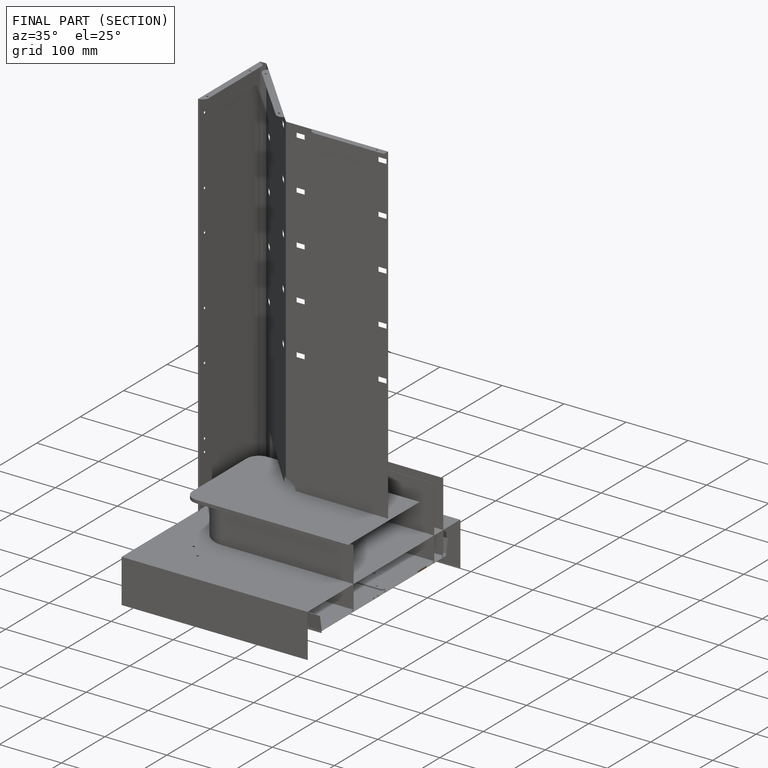
[diagram: finished part — half-section view (interior)]
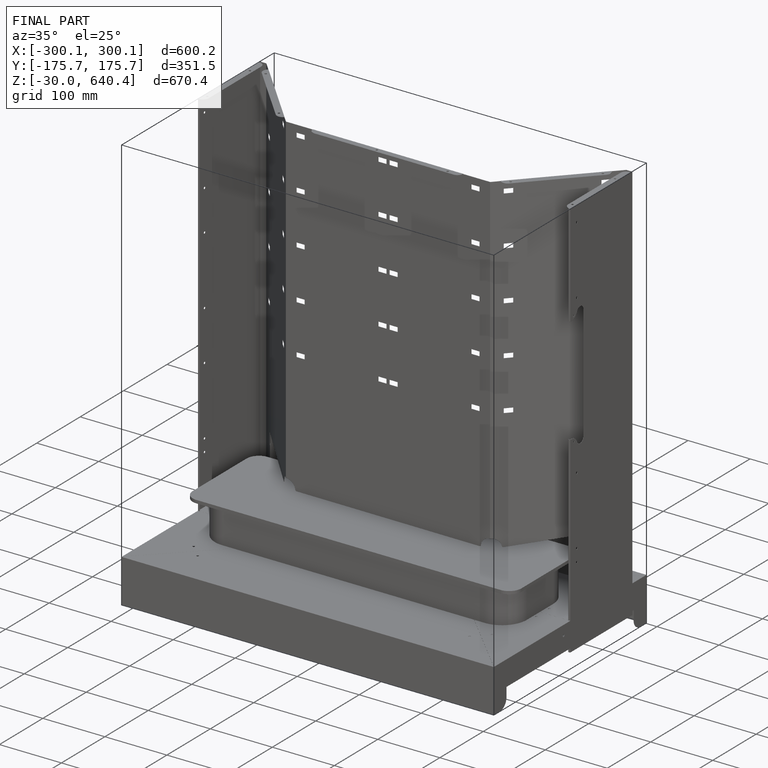
[diagram: finished part — iso view with bounding-box wireframe]
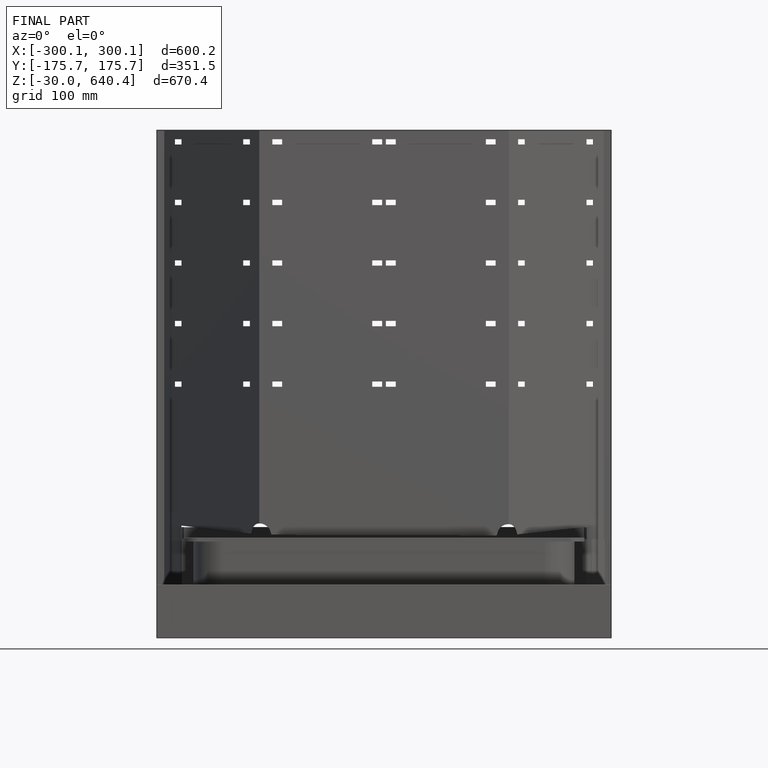
[diagram: finished part — front view with bounding-box wireframe]
